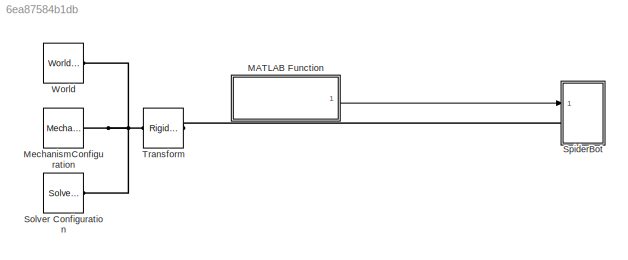
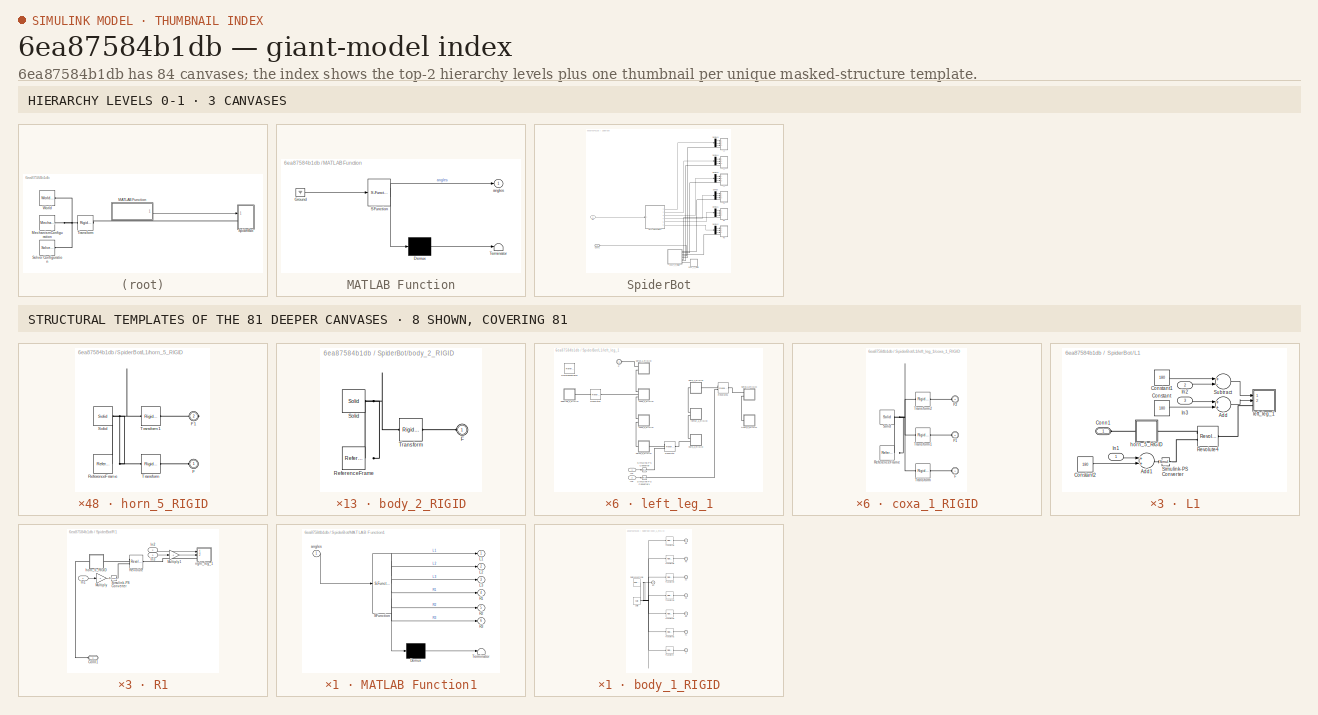
[diagram: thumbnail index - top-2 hierarchy levels (3 canvases) + 8 structural-template representatives of the remaining 81 canvases]
MODEL slx_6ea87584b1db
KIND model
CONFIG AbsTol = auto
CONFIG EnableMultiTasking = off
CONFIG FixedStep = 0.01
CONFIG MaxStep = auto
CONFIG MinStep = auto
CONFIG RelTol = 1e-3
CONFIG SampleTimeConstraint = Unconstrained
CONFIG Solver = FixedStepAuto
CONFIG SolverName = FixedStepAuto
CONFIG StartTime = 0.0
CONFIG StopTime = 1
WORKSPACE source: external: MATLAB File  (data not in archive)
BLOCK [SubSystem] MATLAB Function
  ErrorFcn = Stateflow.Translate.translate
  PermitHierarchicalResolution = ExplicitOnly
  Ports = [0, 1]
  RequestExecContextInheritance = off
  SFBlockType = MATLAB Function
  TreatAsAtomicUnit = on
BLOCK [Demux] MATLAB Function/ Demux 
  Outputs = 1
  Ports = [1, 1]
BLOCK [Ground] MATLAB Function/ Ground 
BLOCK [S-Function] MATLAB Function/ SFunction 
  EnableBusSupport = on
  FunctionName = sf_sfun
  PortCounts = [1 2]
  Ports = [1, 2]
  SFcnIsStateOwnerBlock = off
  SFunctionDeploymentMode = off
  Tag = Stateflow S-Function spider 2
BLOCK [Terminator] MATLAB Function/ Terminator 
BLOCK [Outport] MATLAB Function/angles
  IconDisplay = Port number
BLOCK [Reference] MechanismConfiguration  REF=sm_lib/Utilities/Mechanism
Configuration
  Ports = [0, 0, 0, 0, 0, 0, 1]
  SourceBlock = sm_lib/Utilities/Mechanism\nConfiguration
  SourceProductBaseCode = MS
  SourceProductName = Simscape Multibody
  SourceType = Mechanism\nConfiguration
BLOCK [Reference] Solver Configuration  REF=nesl_utility/Solver
Configuration
  Ports = [0, 0, 0, 0, 0, 0, 1]
  SourceBlock = nesl_utility/Solver\nConfiguration
  SourceProductBaseCode = SS
  SourceProductName = Simscape
  SourceType = Solver\nConfiguration
BLOCK [SubSystem] SpiderBot
  Ports = [1, 0, 0, 0, 0, 1]
  RequestExecContextInheritance = off
BLOCK [PMIOPort] SpiderBot/Conn1
  Side = Left
BLOCK [Demux] SpiderBot/Demux
  DisplayOption = bar
  Outputs = 3
  Ports = [1, 3]
BLOCK [Demux] SpiderBot/Demux1
  DisplayOption = bar
  Outputs = 3
  Ports = [1, 3]
BLOCK [Demux] SpiderBot/Demux2
  DisplayOption = bar
  Outputs = 3
  Ports = [1, 3]
BLOCK [Demux] SpiderBot/Demux3
  DisplayOption = bar
  Outputs = 3
  Ports = [1, 3]
BLOCK [Demux] SpiderBot/Demux4
  DisplayOption = bar
  Outputs = 3
  Ports = [1, 3]
BLOCK [Demux] SpiderBot/Demux5
  DisplayOption = bar
  Outputs = 3
  Ports = [1, 3]
BLOCK [Inport] SpiderBot/In1
  IconDisplay = Port number
BLOCK [SubSystem] SpiderBot/L1
  Ports = [3, 0, 0, 0, 0, 1]
  RequestExecContextInheritance = off
BLOCK [Sum] SpiderBot/L1/Add
  InputSameDT = off
  OutDataTypeStr = Inherit: Inherit via internal rule
  Ports = [2, 1]
  SaturateOnIntegerOverflow = off
BLOCK [Sum] SpiderBot/L1/Add1
  InputSameDT = off
  OutDataTypeStr = Inherit: Inherit via internal rule
  Ports = [2, 1]
  SaturateOnIntegerOverflow = off
BLOCK [PMIOPort] SpiderBot/L1/Conn1
  Side = Left
BLOCK [Constant] SpiderBot/L1/Constant
  Value = 180
BLOCK [Constant] SpiderBot/L1/Constant1
  Value = 180
BLOCK [Constant] SpiderBot/L1/Constant2
  Value = 180
BLOCK [Inport] SpiderBot/L1/In1
  IconDisplay = Port number
BLOCK [Inport] SpiderBot/L1/In2
  IconDisplay = Port number
  Port = 2
BLOCK [Inport] SpiderBot/L1/In3
  IconDisplay = Port number
  Port = 3
BLOCK [Reference] SpiderBot/L1/Revolute4  REF=sm_lib/Joints/Revolute Joint
  Ports = [0, 0, 0, 0, 0, 2, 1]
  SourceBlock = sm_lib/Joints/Revolute Joint
  SourceProductBaseCode = MS
  SourceProductName = Simscape Multibody
  SourceType = Revolute Joint
BLOCK [Reference] SpiderBot/L1/Simulink-PS Converter  REF=nesl_utility/Simulink-PS
Converter
  Ports = [1, 0, 0, 0, 0, 0, 1]
  SourceBlock = nesl_utility/Simulink-PS\nConverter
  SourceProductBaseCode = SS
  SourceProductName = Simscape
  SourceType = Simulink-PS\nConverter
BLOCK [Sum] SpiderBot/L1/Subtract
  InputSameDT = off
  Inputs = +-
  OutDataTypeStr = Inherit: Inherit via internal rule
  Ports = [2, 1]
  SaturateOnIntegerOverflow = off
BLOCK [SubSystem] SpiderBot/L1/horn_5_RIGID
  Ports = [0, 0, 0, 0, 0, 1, 1]
  RequestExecContextInheritance = off
BLOCK [PMIOPort] SpiderBot/L1/horn_5_RIGID/F
  Side = Left
BLOCK [PMIOPort] SpiderBot/L1/horn_5_RIGID/F1
  Port = 2
  Side = Right
BLOCK [Reference] SpiderBot/L1/horn_5_RIGID/ReferenceFrame  REF=sm_lib/Frames and
Transforms/Reference
Frame
  Ports = [0, 0, 0, 0, 0, 0, 1]
  SourceBlock = sm_lib/Frames and\nTransforms/Reference\nFrame
  SourceProductBaseCode = MS
  SourceProductName = Simscape Multibody
  SourceType = Reference\nFrame
BLOCK [Reference] SpiderBot/L1/horn_5_RIGID/Solid  REF=sm_lib/Body Elements/Solid
  Ports = [0, 0, 0, 0, 0, 0, 1]
  SourceBlock = sm_lib/Body Elements/Solid
  SourceProductBaseCode = MS
  SourceProductName = Simscape Multibody
  SourceType = Solid
BLOCK [Reference] SpiderBot/L1/horn_5_RIGID/Transform  REF=sm_lib/Frames and
Transforms/Rigid
Transform
  Ports = [0, 0, 0, 0, 0, 1, 1]
  SourceBlock = sm_lib/Frames and\nTransforms/Rigid\nTransform
  SourceProductBaseCode = MS
  SourceProductName = Simscape Multibody
  SourceType = Rigid\nTransform
BLOCK [Reference] SpiderBot/L1/horn_5_RIGID/Transform1  REF=sm_lib/Frames and
Transforms/Rigid
Transform
  Ports = [0, 0, 0, 0, 0, 1, 1]
  SourceBlock = sm_lib/Frames and\nTransforms/Rigid\nTransform
  SourceProductBaseCode = MS
  SourceProductName = Simscape Multibody
  SourceType = Rigid\nTransform
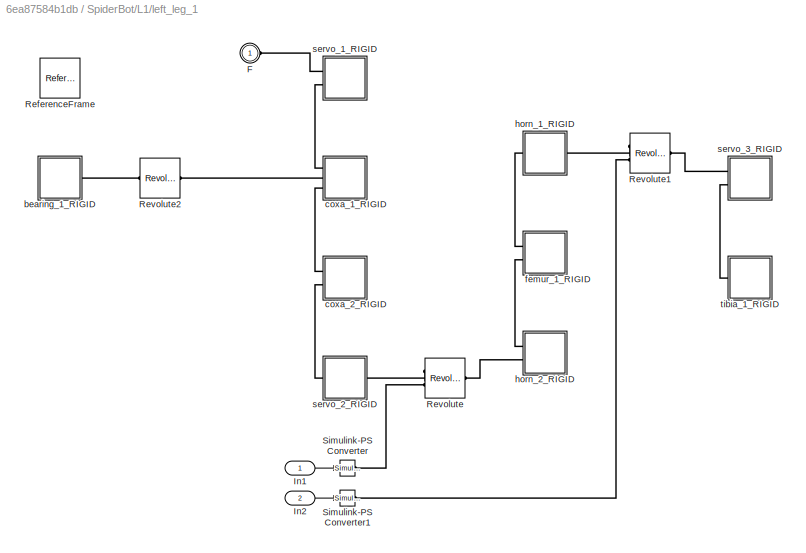
BLOCK [SubSystem] SpiderBot/L1/left_leg_1
  Ports = [2, 0, 0, 0, 0, 1]
  RequestExecContextInheritance = off
BLOCK [PMIOPort] SpiderBot/L1/left_leg_1/F
  Side = Left
BLOCK [Inport] SpiderBot/L1/left_leg_1/In1
  IconDisplay = Port number
BLOCK [Inport] SpiderBot/L1/left_leg_1/In2
  IconDisplay = Port number
  Port = 2
BLOCK [Reference] SpiderBot/L1/left_leg_1/ReferenceFrame  REF=sm_lib/Frames and
Transforms/Reference
Frame
  Ports = [0, 0, 0, 0, 0, 0, 1]
  SourceBlock = sm_lib/Frames and\nTransforms/Reference\nFrame
  SourceProductBaseCode = MS
  SourceProductName = Simscape Multibody
  SourceType = Reference\nFrame
BLOCK [Reference] SpiderBot/L1/left_leg_1/Revolute  REF=sm_lib/Joints/Revolute Joint
  Ports = [0, 0, 0, 0, 0, 2, 1]
  SourceBlock = sm_lib/Joints/Revolute Joint
  SourceProductBaseCode = MS
  SourceProductName = Simscape Multibody
  SourceType = Revolute Joint
BLOCK [Reference] SpiderBot/L1/left_leg_1/Revolute1  REF=sm_lib/Joints/Revolute Joint
  Ports = [0, 0, 0, 0, 0, 2, 1]
  SourceBlock = sm_lib/Joints/Revolute Joint
  SourceProductBaseCode = MS
  SourceProductName = Simscape Multibody
  SourceType = Revolute Joint
BLOCK [Reference] SpiderBot/L1/left_leg_1/Revolute2  REF=sm_lib/Joints/Revolute Joint
  Ports = [0, 0, 0, 0, 0, 1, 1]
  SourceBlock = sm_lib/Joints/Revolute Joint
  SourceProductBaseCode = MS
  SourceProductName = Simscape Multibody
  SourceType = Revolute Joint
BLOCK [Reference] SpiderBot/L1/left_leg_1/Simulink-PS Converter  REF=nesl_utility/Simulink-PS
Converter
  Ports = [1, 0, 0, 0, 0, 0, 1]
  SourceBlock = nesl_utility/Simulink-PS\nConverter
  SourceProductBaseCode = SS
  SourceProductName = Simscape
  SourceType = Simulink-PS\nConverter
BLOCK [Reference] SpiderBot/L1/left_leg_1/Simulink-PS Converter1  REF=nesl_utility/Simulink-PS
Converter
  Ports = [1, 0, 0, 0, 0, 0, 1]
  SourceBlock = nesl_utility/Simulink-PS\nConverter
  SourceProductBaseCode = SS
  SourceProductName = Simscape
  SourceType = Simulink-PS\nConverter
BLOCK [SubSystem] SpiderBot/L1/left_leg_1/bearing_1_RIGID
  Ports = [0, 0, 0, 0, 0, 0, 1]
  RequestExecContextInheritance = off
BLOCK [PMIOPort] SpiderBot/L1/left_leg_1/bearing_1_RIGID/F
  Side = Right
BLOCK [Reference] SpiderBot/L1/left_leg_1/bearing_1_RIGID/ReferenceFrame  REF=sm_lib/Frames and
Transforms/Reference
Frame
  Ports = [0, 0, 0, 0, 0, 0, 1]
  SourceBlock = sm_lib/Frames and\nTransforms/Reference\nFrame
  SourceProductBaseCode = MS
  SourceProductName = Simscape Multibody
  SourceType = Reference\nFrame
BLOCK [Reference] SpiderBot/L1/left_leg_1/bearing_1_RIGID/Solid  REF=sm_lib/Body Elements/Solid
  Ports = [0, 0, 0, 0, 0, 0, 1]
  SourceBlock = sm_lib/Body Elements/Solid
  SourceProductBaseCode = MS
  SourceProductName = Simscape Multibody
  SourceType = Solid
BLOCK [Reference] SpiderBot/L1/left_leg_1/bearing_1_RIGID/Transform  REF=sm_lib/Frames and
Transforms/Rigid
Transform
  Ports = [0, 0, 0, 0, 0, 1, 1]
  SourceBlock = sm_lib/Frames and\nTransforms/Rigid\nTransform
  SourceProductBaseCode = MS
  SourceProductName = Simscape Multibody
  SourceType = Rigid\nTransform
BLOCK [SubSystem] SpiderBot/L1/left_leg_1/coxa_1_RIGID
  Ports = [0, 0, 0, 0, 0, 3]
  RequestExecContextInheritance = off
BLOCK [PMIOPort] SpiderBot/L1/left_leg_1/coxa_1_RIGID/F
  Side = Left
BLOCK [PMIOPort] SpiderBot/L1/left_leg_1/coxa_1_RIGID/F1
  Port = 2
  Side = Left
BLOCK [PMIOPort] SpiderBot/L1/left_leg_1/coxa_1_RIGID/F2
  Port = 3
  Side = Left
BLOCK [Reference] SpiderBot/L1/left_leg_1/coxa_1_RIGID/ReferenceFrame  REF=sm_lib/Frames and
Transforms/Reference
Frame
  Ports = [0, 0, 0, 0, 0, 0, 1]
  SourceBlock = sm_lib/Frames and\nTransforms/Reference\nFrame
  SourceProductBaseCode = MS
  SourceProductName = Simscape Multibody
  SourceType = Reference\nFrame
BLOCK [Reference] SpiderBot/L1/left_leg_1/coxa_1_RIGID/Solid  REF=sm_lib/Body Elements/Solid
  Ports = [0, 0, 0, 0, 0, 0, 1]
  SourceBlock = sm_lib/Body Elements/Solid
  SourceProductBaseCode = MS
  SourceProductName = Simscape Multibody
  SourceType = Solid
BLOCK [Reference] SpiderBot/L1/left_leg_1/coxa_1_RIGID/Transform  REF=sm_lib/Frames and
Transforms/Rigid
Transform
  Ports = [0, 0, 0, 0, 0, 1, 1]
  SourceBlock = sm_lib/Frames and\nTransforms/Rigid\nTransform
  SourceProductBaseCode = MS
  SourceProductName = Simscape Multibody
  SourceType = Rigid\nTransform
BLOCK [Reference] SpiderBot/L1/left_leg_1/coxa_1_RIGID/Transform1  REF=sm_lib/Frames and
Transforms/Rigid
Transform
  Ports = [0, 0, 0, 0, 0, 1, 1]
  SourceBlock = sm_lib/Frames and\nTransforms/Rigid\nTransform
  SourceProductBaseCode = MS
  SourceProductName = Simscape Multibody
  SourceType = Rigid\nTransform
BLOCK [Reference] SpiderBot/L1/left_leg_1/coxa_1_RIGID/Transform2  REF=sm_lib/Frames and
Transforms/Rigid
Transform
  Ports = [0, 0, 0, 0, 0, 1, 1]
  SourceBlock = sm_lib/Frames and\nTransforms/Rigid\nTransform
  SourceProductBaseCode = MS
  SourceProductName = Simscape Multibody
  SourceType = Rigid\nTransform
BLOCK [SubSystem] SpiderBot/L1/left_leg_1/coxa_2_RIGID
  Ports = [0, 0, 0, 0, 0, 2]
  RequestExecContextInheritance = off
BLOCK [PMIOPort] SpiderBot/L1/left_leg_1/coxa_2_RIGID/F
  Port = 2
  Side = Left
BLOCK [PMIOPort] SpiderBot/L1/left_leg_1/coxa_2_RIGID/F1
  Side = Left
BLOCK [Reference] SpiderBot/L1/left_leg_1/coxa_2_RIGID/ReferenceFrame  REF=sm_lib/Frames and
Transforms/Reference
Frame
  Ports = [0, 0, 0, 0, 0, 0, 1]
  SourceBlock = sm_lib/Frames and\nTransforms/Reference\nFrame
  SourceProductBaseCode = MS
  SourceProductName = Simscape Multibody
  SourceType = Reference\nFrame
BLOCK [Reference] SpiderBot/L1/left_leg_1/coxa_2_RIGID/Solid  REF=sm_lib/Body Elements/Solid
  Ports = [0, 0, 0, 0, 0, 0, 1]
  SourceBlock = sm_lib/Body Elements/Solid
  SourceProductBaseCode = MS
  SourceProductName = Simscape Multibody
  SourceType = Solid
BLOCK [Reference] SpiderBot/L1/left_leg_1/coxa_2_RIGID/Transform  REF=sm_lib/Frames and
Transforms/Rigid
Transform
  Ports = [0, 0, 0, 0, 0, 1, 1]
  SourceBlock = sm_lib/Frames and\nTransforms/Rigid\nTransform
  SourceProductBaseCode = MS
  SourceProductName = Simscape Multibody
  SourceType = Rigid\nTransform
BLOCK [Reference] SpiderBot/L1/left_leg_1/coxa_2_RIGID/Transform1  REF=sm_lib/Frames and
Transforms/Rigid
Transform
  Ports = [0, 0, 0, 0, 0, 1, 1]
  SourceBlock = sm_lib/Frames and\nTransforms/Rigid\nTransform
  SourceProductBaseCode = MS
  SourceProductName = Simscape Multibody
  SourceType = Rigid\nTransform
BLOCK [SubSystem] SpiderBot/L1/left_leg_1/femur_1_RIGID
  Ports = [0, 0, 0, 0, 0, 2]
  RequestExecContextInheritance = off
BLOCK [PMIOPort] SpiderBot/L1/left_leg_1/femur_1_RIGID/F
  Side = Left
BLOCK [PMIOPort] SpiderBot/L1/left_leg_1/femur_1_RIGID/F1
  Port = 2
  Side = Left
BLOCK [Reference] SpiderBot/L1/left_leg_1/femur_1_RIGID/ReferenceFrame  REF=sm_lib/Frames and
Transforms/Reference
Frame
  Ports = [0, 0, 0, 0, 0, 0, 1]
  SourceBlock = sm_lib/Frames and\nTransforms/Reference\nFrame
  SourceProductBaseCode = MS
  SourceProductName = Simscape Multibody
  SourceType = Reference\nFrame
BLOCK [Reference] SpiderBot/L1/left_leg_1/femur_1_RIGID/Solid  REF=sm_lib/Body Elements/Solid
  Ports = [0, 0, 0, 0, 0, 0, 1]
  SourceBlock = sm_lib/Body Elements/Solid
  SourceProductBaseCode = MS
  SourceProductName = Simscape Multibody
  SourceType = Solid
BLOCK [Reference] SpiderBot/L1/left_leg_1/femur_1_RIGID/Transform  REF=sm_lib/Frames and
Transforms/Rigid
Transform
  Ports = [0, 0, 0, 0, 0, 1, 1]
  SourceBlock = sm_lib/Frames and\nTransforms/Rigid\nTransform
  SourceProductBaseCode = MS
  SourceProductName = Simscape Multibody
  SourceType = Rigid\nTransform
BLOCK [Reference] SpiderBot/L1/left_leg_1/femur_1_RIGID/Transform1  REF=sm_lib/Frames and
Transforms/Rigid
Transform
  Ports = [0, 0, 0, 0, 0, 1, 1]
  SourceBlock = sm_lib/Frames and\nTransforms/Rigid\nTransform
  SourceProductBaseCode = MS
  SourceProductName = Simscape Multibody
  SourceType = Rigid\nTransform
BLOCK [SubSystem] SpiderBot/L1/left_leg_1/horn_1_RIGID
  Ports = [0, 0, 0, 0, 0, 1, 1]
  RequestExecContextInheritance = off
BLOCK [PMIOPort] SpiderBot/L1/left_leg_1/horn_1_RIGID/F
  Port = 2
  Side = Right
BLOCK [PMIOPort] SpiderBot/L1/left_leg_1/horn_1_RIGID/F1
  Side = Left
BLOCK [Reference] SpiderBot/L1/left_leg_1/horn_1_RIGID/ReferenceFrame  REF=sm_lib/Frames and
Transforms/Reference
Frame
  Ports = [0, 0, 0, 0, 0, 0, 1]
  SourceBlock = sm_lib/Frames and\nTransforms/Reference\nFrame
  SourceProductBaseCode = MS
  SourceProductName = Simscape Multibody
  SourceType = Reference\nFrame
BLOCK [Reference] SpiderBot/L1/left_leg_1/horn_1_RIGID/Solid  REF=sm_lib/Body Elements/Solid
  Ports = [0, 0, 0, 0, 0, 0, 1]
  SourceBlock = sm_lib/Body Elements/Solid
  SourceProductBaseCode = MS
  SourceProductName = Simscape Multibody
  SourceType = Solid
BLOCK [Reference] SpiderBot/L1/left_leg_1/horn_1_RIGID/Transform  REF=sm_lib/Frames and
Transforms/Rigid
Transform
  Ports = [0, 0, 0, 0, 0, 1, 1]
  SourceBlock = sm_lib/Frames and\nTransforms/Rigid\nTransform
  SourceProductBaseCode = MS
  SourceProductName = Simscape Multibody
  SourceType = Rigid\nTransform
BLOCK [Reference] SpiderBot/L1/left_leg_1/horn_1_RIGID/Transform1  REF=sm_lib/Frames and
Transforms/Rigid
Transform
  Ports = [0, 0, 0, 0, 0, 1, 1]
  SourceBlock = sm_lib/Frames and\nTransforms/Rigid\nTransform
  SourceProductBaseCode = MS
  SourceProductName = Simscape Multibody
  SourceType = Rigid\nTransform
BLOCK [SubSystem] SpiderBot/L1/left_leg_1/horn_2_RIGID
  Ports = [0, 0, 0, 0, 0, 2]
  RequestExecContextInheritance = off
BLOCK [PMIOPort] SpiderBot/L1/left_leg_1/horn_2_RIGID/F
  Port = 2
  Side = Left
BLOCK [PMIOPort] SpiderBot/L1/left_leg_1/horn_2_RIGID/F1
  Side = Left
BLOCK [Reference] SpiderBot/L1/left_leg_1/horn_2_RIGID/ReferenceFrame  REF=sm_lib/Frames and
Transforms/Reference
Frame
  Ports = [0, 0, 0, 0, 0, 0, 1]
  SourceBlock = sm_lib/Frames and\nTransforms/Reference\nFrame
  SourceProductBaseCode = MS
  SourceProductName = Simscape Multibody
  SourceType = Reference\nFrame
BLOCK [Reference] SpiderBot/L1/left_leg_1/horn_2_RIGID/Solid  REF=sm_lib/Body Elements/Solid
  Ports = [0, 0, 0, 0, 0, 0, 1]
  SourceBlock = sm_lib/Body Elements/Solid
  SourceProductBaseCode = MS
  SourceProductName = Simscape Multibody
  SourceType = Solid
BLOCK [Reference] SpiderBot/L1/left_leg_1/horn_2_RIGID/Transform  REF=sm_lib/Frames and
Transforms/Rigid
Transform
  Ports = [0, 0, 0, 0, 0, 1, 1]
  SourceBlock = sm_lib/Frames and\nTransforms/Rigid\nTransform
  SourceProductBaseCode = MS
  SourceProductName = Simscape Multibody
  SourceType = Rigid\nTransform
BLOCK [Reference] SpiderBot/L1/left_leg_1/horn_2_RIGID/Transform1  REF=sm_lib/Frames and
Transforms/Rigid
Transform
  Ports = [0, 0, 0, 0, 0, 1, 1]
  SourceBlock = sm_lib/Frames and\nTransforms/Rigid\nTransform
  SourceProductBaseCode = MS
  SourceProductName = Simscape Multibody
  SourceType = Rigid\nTransform
BLOCK [SubSystem] SpiderBot/L1/left_leg_1/servo_1_RIGID
  Ports = [0, 0, 0, 0, 0, 2]
  RequestExecContextInheritance = off
BLOCK [PMIOPort] SpiderBot/L1/left_leg_1/servo_1_RIGID/F
  Port = 2
  Side = Left
BLOCK [PMIOPort] SpiderBot/L1/left_leg_1/servo_1_RIGID/F1
  Side = Left
BLOCK [Reference] SpiderBot/L1/left_leg_1/servo_1_RIGID/ReferenceFrame  REF=sm_lib/Frames and
Transforms/Reference
Frame
  Ports = [0, 0, 0, 0, 0, 0, 1]
  SourceBlock = sm_lib/Frames and\nTransforms/Reference\nFrame
  SourceProductBaseCode = MS
  SourceProductName = Simscape Multibody
  SourceType = Reference\nFrame
BLOCK [Reference] SpiderBot/L1/left_leg_1/servo_1_RIGID/Solid  REF=sm_lib/Body Elements/Solid
  Ports = [0, 0, 0, 0, 0, 0, 1]
  SourceBlock = sm_lib/Body Elements/Solid
  SourceProductBaseCode = MS
  SourceProductName = Simscape Multibody
  SourceType = Solid
BLOCK [Reference] SpiderBot/L1/left_leg_1/servo_1_RIGID/Transform  REF=sm_lib/Frames and
Transforms/Rigid
Transform
  Ports = [0, 0, 0, 0, 0, 1, 1]
  SourceBlock = sm_lib/Frames and\nTransforms/Rigid\nTransform
  SourceProductBaseCode = MS
  SourceProductName = Simscape Multibody
  SourceType = Rigid\nTransform
BLOCK [Reference] SpiderBot/L1/left_leg_1/servo_1_RIGID/Transform1  REF=sm_lib/Frames and
Transforms/Rigid
Transform
  Ports = [0, 0, 0, 0, 0, 1, 1]
  SourceBlock = sm_lib/Frames and\nTransforms/Rigid\nTransform
  SourceProductBaseCode = MS
  SourceProductName = Simscape Multibody
  SourceType = Rigid\nTransform
BLOCK [SubSystem] SpiderBot/L1/left_leg_1/servo_2_RIGID
  Ports = [0, 0, 0, 0, 0, 1, 1]
  RequestExecContextInheritance = off
BLOCK [PMIOPort] SpiderBot/L1/left_leg_1/servo_2_RIGID/F
  Side = Left
BLOCK [PMIOPort] SpiderBot/L1/left_leg_1/servo_2_RIGID/F1
  Port = 2
  Side = Right
BLOCK [Reference] SpiderBot/L1/left_leg_1/servo_2_RIGID/ReferenceFrame  REF=sm_lib/Frames and
Transforms/Reference
Frame
  Ports = [0, 0, 0, 0, 0, 0, 1]
  SourceBlock = sm_lib/Frames and\nTransforms/Reference\nFrame
  SourceProductBaseCode = MS
  SourceProductName = Simscape Multibody
  SourceType = Reference\nFrame
BLOCK [Reference] SpiderBot/L1/left_leg_1/servo_2_RIGID/Solid  REF=sm_lib/Body Elements/Solid
  Ports = [0, 0, 0, 0, 0, 0, 1]
  SourceBlock = sm_lib/Body Elements/Solid
  SourceProductBaseCode = MS
  SourceProductName = Simscape Multibody
  SourceType = Solid
BLOCK [Reference] SpiderBot/L1/left_leg_1/servo_2_RIGID/Transform  REF=sm_lib/Frames and
Transforms/Rigid
Transform
  Ports = [0, 0, 0, 0, 0, 1, 1]
  SourceBlock = sm_lib/Frames and\nTransforms/Rigid\nTransform
  SourceProductBaseCode = MS
  SourceProductName = Simscape Multibody
  SourceType = Rigid\nTransform
BLOCK [Reference] SpiderBot/L1/left_leg_1/servo_2_RIGID/Transform1  REF=sm_lib/Frames and
Transforms/Rigid
Transform
  Ports = [0, 0, 0, 0, 0, 1, 1]
  SourceBlock = sm_lib/Frames and\nTransforms/Rigid\nTransform
  SourceProductBaseCode = MS
  SourceProductName = Simscape Multibody
  SourceType = Rigid\nTransform
BLOCK [SubSystem] SpiderBot/L1/left_leg_1/servo_3_RIGID
  Ports = [0, 0, 0, 0, 0, 2]
  RequestExecContextInheritance = off
BLOCK [PMIOPort] SpiderBot/L1/left_leg_1/servo_3_RIGID/F
  Port = 2
  Side = Left
BLOCK [PMIOPort] SpiderBot/L1/left_leg_1/servo_3_RIGID/F1
  Side = Left
BLOCK [Reference] SpiderBot/L1/left_leg_1/servo_3_RIGID/ReferenceFrame  REF=sm_lib/Frames and
Transforms/Reference
Frame
  Ports = [0, 0, 0, 0, 0, 0, 1]
  SourceBlock = sm_lib/Frames and\nTransforms/Reference\nFrame
  SourceProductBaseCode = MS
  SourceProductName = Simscape Multibody
  SourceType = Reference\nFrame
BLOCK [Reference] SpiderBot/L1/left_leg_1/servo_3_RIGID/Solid  REF=sm_lib/Body Elements/Solid
  Ports = [0, 0, 0, 0, 0, 0, 1]
  SourceBlock = sm_lib/Body Elements/Solid
  SourceProductBaseCode = MS
  SourceProductName = Simscape Multibody
  SourceType = Solid
BLOCK [Reference] SpiderBot/L1/left_leg_1/servo_3_RIGID/Transform  REF=sm_lib/Frames and
Transforms/Rigid
Transform
  Ports = [0, 0, 0, 0, 0, 1, 1]
  SourceBlock = sm_lib/Frames and\nTransforms/Rigid\nTransform
  SourceProductBaseCode = MS
  SourceProductName = Simscape Multibody
  SourceType = Rigid\nTransform
BLOCK [Reference] SpiderBot/L1/left_leg_1/servo_3_RIGID/Transform1  REF=sm_lib/Frames and
Transforms/Rigid
Transform
  Ports = [0, 0, 0, 0, 0, 1, 1]
  SourceBlock = sm_lib/Frames and\nTransforms/Rigid\nTransform
  SourceProductBaseCode = MS
  SourceProductName = Simscape Multibody
  SourceType = Rigid\nTransform
BLOCK [SubSystem] SpiderBot/L1/left_leg_1/tibia_1_RIGID
  Ports = [0, 0, 0, 0, 0, 1]
  RequestExecContextInheritance = off
BLOCK [PMIOPort] SpiderBot/L1/left_leg_1/tibia_1_RIGID/F
  Side = Left
BLOCK [Reference] SpiderBot/L1/left_leg_1/tibia_1_RIGID/ReferenceFrame  REF=sm_lib/Frames and
Transforms/Reference
Frame
  Ports = [0, 0, 0, 0, 0, 0, 1]
  SourceBlock = sm_lib/Frames and\nTransforms/Reference\nFrame
  SourceProductBaseCode = MS
  SourceProductName = Simscape Multibody
  SourceType = Reference\nFrame
BLOCK [Reference] SpiderBot/L1/left_leg_1/tibia_1_RIGID/Solid  REF=sm_lib/Body Elements/Solid
  Ports = [0, 0, 0, 0, 0, 0, 1]
  SourceBlock = sm_lib/Body Elements/Solid
  SourceProductBaseCode = MS
  SourceProductName = Simscape Multibody
  SourceType = Solid
BLOCK [Reference] SpiderBot/L1/left_leg_1/tibia_1_RIGID/Transform  REF=sm_lib/Frames and
Transforms/Rigid
Transform
  Ports = [0, 0, 0, 0, 0, 1, 1]
  SourceBlock = sm_lib/Frames and\nTransforms/Rigid\nTransform
  SourceProductBaseCode = MS
  SourceProductName = Simscape Multibody
  SourceType = Rigid\nTransform
BLOCK [SubSystem] SpiderBot/L2
  Ports = [3, 0, 0, 0, 0, 1]
  RequestExecContextInheritance = off
BLOCK [Sum] SpiderBot/L2/Add
  InputSameDT = off
  OutDataTypeStr = Inherit: Inherit via internal rule
  Ports = [2, 1]
  SaturateOnIntegerOverflow = off
BLOCK [Sum] SpiderBot/L2/Add1
  InputSameDT = off
  OutDataTypeStr = Inherit: Inherit via internal rule
  Ports = [2, 1]
  SaturateOnIntegerOverflow = off
BLOCK [PMIOPort] SpiderBot/L2/Conn1
  Side = Left
BLOCK [Constant] SpiderBot/L2/Constant
  Value = 180
BLOCK [Constant] SpiderBot/L2/Constant1
  Value = 180
BLOCK [Constant] SpiderBot/L2/Constant2
  Value = 180
BLOCK [Inport] SpiderBot/L2/In1
  IconDisplay = Port number
BLOCK [Inport] SpiderBot/L2/In2
  IconDisplay = Port number
  Port = 2
BLOCK [Inport] SpiderBot/L2/In3
  IconDisplay = Port number
  Port = 3
BLOCK [Reference] SpiderBot/L2/Revolute5  REF=sm_lib/Joints/Revolute Joint
  Ports = [0, 0, 0, 0, 0, 2, 1]
  SourceBlock = sm_lib/Joints/Revolute Joint
  SourceProductBaseCode = MS
  SourceProductName = Simscape Multibody
  SourceType = Revolute Joint
BLOCK [Reference] SpiderBot/L2/Simulink-PS Converter  REF=nesl_utility/Simulink-PS
Converter
  Ports = [1, 0, 0, 0, 0, 0, 1]
  SourceBlock = nesl_utility/Simulink-PS\nConverter
  SourceProductBaseCode = SS
  SourceProductName = Simscape
  SourceType = Simulink-PS\nConverter
BLOCK [Sum] SpiderBot/L2/Subtract
  InputSameDT = off
  Inputs = +-
  OutDataTypeStr = Inherit: Inherit via internal rule
  Ports = [2, 1]
  SaturateOnIntegerOverflow = off
BLOCK [SubSystem] SpiderBot/L2/horn_3_RIGID
  Ports = [0, 0, 0, 0, 0, 1, 1]
  RequestExecContextInheritance = off
BLOCK [PMIOPort] SpiderBot/L2/horn_3_RIGID/F
  Side = Left
BLOCK [PMIOPort] SpiderBot/L2/horn_3_RIGID/F1
  Port = 2
  Side = Right
BLOCK [Reference] SpiderBot/L2/horn_3_RIGID/ReferenceFrame  REF=sm_lib/Frames and
Transforms/Reference
Frame
  Ports = [0, 0, 0, 0, 0, 0, 1]
  SourceBlock = sm_lib/Frames and\nTransforms/Reference\nFrame
  SourceProductBaseCode = MS
  SourceProductName = Simscape Multibody
  SourceType = Reference\nFrame
BLOCK [Reference] SpiderBot/L2/horn_3_RIGID/Solid  REF=sm_lib/Body Elements/Solid
  Ports = [0, 0, 0, 0, 0, 0, 1]
  SourceBlock = sm_lib/Body Elements/Solid
  SourceProductBaseCode = MS
  SourceProductName = Simscape Multibody
  SourceType = Solid
BLOCK [Reference] SpiderBot/L2/horn_3_RIGID/Transform  REF=sm_lib/Frames and
Transforms/Rigid
Transform
  Ports = [0, 0, 0, 0, 0, 1, 1]
  SourceBlock = sm_lib/Frames and\nTransforms/Rigid\nTransform
  SourceProductBaseCode = MS
  SourceProductName = Simscape Multibody
  SourceType = Rigid\nTransform
BLOCK [Reference] SpiderBot/L2/horn_3_RIGID/Transform1  REF=sm_lib/Frames and
Transforms/Rigid
Transform
  Ports = [0, 0, 0, 0, 0, 1, 1]
  SourceBlock = sm_lib/Frames and\nTransforms/Rigid\nTransform
  SourceProductBaseCode = MS
  SourceProductName = Simscape Multibody
  SourceType = Rigid\nTransform
BLOCK [SubSystem] SpiderBot/L2/left_leg_2
  Ports = [2, 0, 0, 0, 0, 1]
  RequestExecContextInheritance = off
BLOCK [PMIOPort] SpiderBot/L2/left_leg_2/F
  Side = Left
BLOCK [Inport] SpiderBot/L2/left_leg_2/In1
  IconDisplay = Port number
BLOCK [Inport] SpiderBot/L2/left_leg_2/In2
  IconDisplay = Port number
  Port = 2
BLOCK [Reference] SpiderBot/L2/left_leg_2/ReferenceFrame  REF=sm_lib/Frames and
Transforms/Reference
Frame
  Ports = [0, 0, 0, 0, 0, 0, 1]
  SourceBlock = sm_lib/Frames and\nTransforms/Reference\nFrame
  SourceProductBaseCode = MS
  SourceProductName = Simscape Multibody
  SourceType = Reference\nFrame
BLOCK [Reference] SpiderBot/L2/left_leg_2/Revolute  REF=sm_lib/Joints/Revolute Joint
  Ports = [0, 0, 0, 0, 0, 2, 1]
  SourceBlock = sm_lib/Joints/Revolute Joint
  SourceProductBaseCode = MS
  SourceProductName = Simscape Multibody
  SourceType = Revolute Joint
BLOCK [Reference] SpiderBot/L2/left_leg_2/Revolute1  REF=sm_lib/Joints/Revolute Joint
  Ports = [0, 0, 0, 0, 0, 2, 1]
  SourceBlock = sm_lib/Joints/Revolute Joint
  SourceProductBaseCode = MS
  SourceProductName = Simscape Multibody
  SourceType = Revolute Joint
BLOCK [Reference] SpiderBot/L2/left_leg_2/Revolute2  REF=sm_lib/Joints/Revolute Joint
  Ports = [0, 0, 0, 0, 0, 1, 1]
  SourceBlock = sm_lib/Joints/Revolute Joint
  SourceProductBaseCode = MS
  SourceProductName = Simscape Multibody
  SourceType = Revolute Joint
BLOCK [Reference] SpiderBot/L2/left_leg_2/Simulink-PS Converter  REF=nesl_utility/Simulink-PS
Converter
  Ports = [1, 0, 0, 0, 0, 0, 1]
  SourceBlock = nesl_utility/Simulink-PS\nConverter
  SourceProductBaseCode = SS
  SourceProductName = Simscape
  SourceType = Simulink-PS\nConverter
BLOCK [Reference] SpiderBot/L2/left_leg_2/Simulink-PS Converter1  REF=nesl_utility/Simulink-PS
Converter
  Ports = [1, 0, 0, 0, 0, 0, 1]
  SourceBlock = nesl_utility/Simulink-PS\nConverter
  SourceProductBaseCode = SS
  SourceProductName = Simscape
  SourceType = Simulink-PS\nConverter
BLOCK [SubSystem] SpiderBot/L2/left_leg_2/bearing_1_RIGID
  Ports = [0, 0, 0, 0, 0, 0, 1]
  RequestExecContextInheritance = off
BLOCK [PMIOPort] SpiderBot/L2/left_leg_2/bearing_1_RIGID/F
  Side = Right
BLOCK [Reference] SpiderBot/L2/left_leg_2/bearing_1_RIGID/ReferenceFrame  REF=sm_lib/Frames and
Transforms/Reference
Frame
  Ports = [0, 0, 0, 0, 0, 0, 1]
  SourceBlock = sm_lib/Frames and\nTransforms/Reference\nFrame
  SourceProductBaseCode = MS
  SourceProductName = Simscape Multibody
  SourceType = Reference\nFrame
BLOCK [Reference] SpiderBot/L2/left_leg_2/bearing_1_RIGID/Solid  REF=sm_lib/Body Elements/Solid
  Ports = [0, 0, 0, 0, 0, 0, 1]
  SourceBlock = sm_lib/Body Elements/Solid
  SourceProductBaseCode = MS
  SourceProductName = Simscape Multibody
  SourceType = Solid
BLOCK [Reference] SpiderBot/L2/left_leg_2/bearing_1_RIGID/Transform  REF=sm_lib/Frames and
Transforms/Rigid
Transform
  Ports = [0, 0, 0, 0, 0, 1, 1]
  SourceBlock = sm_lib/Frames and\nTransforms/Rigid\nTransform
  SourceProductBaseCode = MS
  SourceProductName = Simscape Multibody
  SourceType = Rigid\nTransform
BLOCK [SubSystem] SpiderBot/L2/left_leg_2/coxa_1_RIGID
  Ports = [0, 0, 0, 0, 0, 3]
  RequestExecContextInheritance = off
BLOCK [PMIOPort] SpiderBot/L2/left_leg_2/coxa_1_RIGID/F
  Side = Left
BLOCK [PMIOPort] SpiderBot/L2/left_leg_2/coxa_1_RIGID/F1
  Port = 2
  Side = Left
BLOCK [PMIOPort] SpiderBot/L2/left_leg_2/coxa_1_RIGID/F2
  Port = 3
  Side = Left
BLOCK [Reference] SpiderBot/L2/left_leg_2/coxa_1_RIGID/ReferenceFrame  REF=sm_lib/Frames and
Transforms/Reference
Frame
  Ports = [0, 0, 0, 0, 0, 0, 1]
  SourceBlock = sm_lib/Frames and\nTransforms/Reference\nFrame
  SourceProductBaseCode = MS
  SourceProductName = Simscape Multibody
  SourceType = Reference\nFrame
BLOCK [Reference] SpiderBot/L2/left_leg_2/coxa_1_RIGID/Solid  REF=sm_lib/Body Elements/Solid
  Ports = [0, 0, 0, 0, 0, 0, 1]
  SourceBlock = sm_lib/Body Elements/Solid
  SourceProductBaseCode = MS
  SourceProductName = Simscape Multibody
  SourceType = Solid
BLOCK [Reference] SpiderBot/L2/left_leg_2/coxa_1_RIGID/Transform  REF=sm_lib/Frames and
Transforms/Rigid
Transform
  Ports = [0, 0, 0, 0, 0, 1, 1]
  SourceBlock = sm_lib/Frames and\nTransforms/Rigid\nTransform
  SourceProductBaseCode = MS
  SourceProductName = Simscape Multibody
  SourceType = Rigid\nTransform
BLOCK [Reference] SpiderBot/L2/left_leg_2/coxa_1_RIGID/Transform1  REF=sm_lib/Frames and
Transforms/Rigid
Transform
  Ports = [0, 0, 0, 0, 0, 1, 1]
  SourceBlock = sm_lib/Frames and\nTransforms/Rigid\nTransform
  SourceProductBaseCode = MS
  SourceProductName = Simscape Multibody
  SourceType = Rigid\nTransform
BLOCK [Reference] SpiderBot/L2/left_leg_2/coxa_1_RIGID/Transform2  REF=sm_lib/Frames and
Transforms/Rigid
Transform
  Ports = [0, 0, 0, 0, 0, 1, 1]
  SourceBlock = sm_lib/Frames and\nTransforms/Rigid\nTransform
  SourceProductBaseCode = MS
  SourceProductName = Simscape Multibody
  SourceType = Rigid\nTransform
BLOCK [SubSystem] SpiderBot/L2/left_leg_2/coxa_2_RIGID
  Ports = [0, 0, 0, 0, 0, 2]
  RequestExecContextInheritance = off
BLOCK [PMIOPort] SpiderBot/L2/left_leg_2/coxa_2_RIGID/F
  Port = 2
  Side = Left
BLOCK [PMIOPort] SpiderBot/L2/left_leg_2/coxa_2_RIGID/F1
  Side = Left
BLOCK [Reference] SpiderBot/L2/left_leg_2/coxa_2_RIGID/ReferenceFrame  REF=sm_lib/Frames and
Transforms/Reference
Frame
  Ports = [0, 0, 0, 0, 0, 0, 1]
  SourceBlock = sm_lib/Frames and\nTransforms/Reference\nFrame
  SourceProductBaseCode = MS
  SourceProductName = Simscape Multibody
  SourceType = Reference\nFrame
BLOCK [Reference] SpiderBot/L2/left_leg_2/coxa_2_RIGID/Solid  REF=sm_lib/Body Elements/Solid
  Ports = [0, 0, 0, 0, 0, 0, 1]
  SourceBlock = sm_lib/Body Elements/Solid
  SourceProductBaseCode = MS
  SourceProductName = Simscape Multibody
  SourceType = Solid
BLOCK [Reference] SpiderBot/L2/left_leg_2/coxa_2_RIGID/Transform  REF=sm_lib/Frames and
Transforms/Rigid
Transform
  Ports = [0, 0, 0, 0, 0, 1, 1]
  SourceBlock = sm_lib/Frames and\nTransforms/Rigid\nTransform
  SourceProductBaseCode = MS
  SourceProductName = Simscape Multibody
  SourceType = Rigid\nTransform
BLOCK [Reference] SpiderBot/L2/left_leg_2/coxa_2_RIGID/Transform1  REF=sm_lib/Frames and
Transforms/Rigid
Transform
  Ports = [0, 0, 0, 0, 0, 1, 1]
  SourceBlock = sm_lib/Frames and\nTransforms/Rigid\nTransform
  SourceProductBaseCode = MS
  SourceProductName = Simscape Multibody
  SourceType = Rigid\nTransform
BLOCK [SubSystem] SpiderBot/L2/left_leg_2/femur_1_RIGID
  Ports = [0, 0, 0, 0, 0, 2]
  RequestExecContextInheritance = off
BLOCK [PMIOPort] SpiderBot/L2/left_leg_2/femur_1_RIGID/F
  Side = Left
BLOCK [PMIOPort] SpiderBot/L2/left_leg_2/femur_1_RIGID/F1
  Port = 2
  Side = Left
BLOCK [Reference] SpiderBot/L2/left_leg_2/femur_1_RIGID/ReferenceFrame  REF=sm_lib/Frames and
Transforms/Reference
Frame
  Ports = [0, 0, 0, 0, 0, 0, 1]
  SourceBlock = sm_lib/Frames and\nTransforms/Reference\nFrame
  SourceProductBaseCode = MS
  SourceProductName = Simscape Multibody
  SourceType = Reference\nFrame
BLOCK [Reference] SpiderBot/L2/left_leg_2/femur_1_RIGID/Solid  REF=sm_lib/Body Elements/Solid
  Ports = [0, 0, 0, 0, 0, 0, 1]
  SourceBlock = sm_lib/Body Elements/Solid
  SourceProductBaseCode = MS
  SourceProductName = Simscape Multibody
  SourceType = Solid
BLOCK [Reference] SpiderBot/L2/left_leg_2/femur_1_RIGID/Transform  REF=sm_lib/Frames and
Transforms/Rigid
Transform
  Ports = [0, 0, 0, 0, 0, 1, 1]
  SourceBlock = sm_lib/Frames and\nTransforms/Rigid\nTransform
  SourceProductBaseCode = MS
  SourceProductName = Simscape Multibody
  SourceType = Rigid\nTransform
BLOCK [Reference] SpiderBot/L2/left_leg_2/femur_1_RIGID/Transform1  REF=sm_lib/Frames and
Transforms/Rigid
Transform
  Ports = [0, 0, 0, 0, 0, 1, 1]
  SourceBlock = sm_lib/Frames and\nTransforms/Rigid\nTransform
  SourceProductBaseCode = MS
  SourceProductName = Simscape Multibody
  SourceType = Rigid\nTransform
BLOCK [SubSystem] SpiderBot/L2/left_leg_2/horn_1_RIGID
  Ports = [0, 0, 0, 0, 0, 1, 1]
  RequestExecContextInheritance = off
BLOCK [PMIOPort] SpiderBot/L2/left_leg_2/horn_1_RIGID/F
  Port = 2
  Side = Right
BLOCK [PMIOPort] SpiderBot/L2/left_leg_2/horn_1_RIGID/F1
  Side = Left
BLOCK [Reference] SpiderBot/L2/left_leg_2/horn_1_RIGID/ReferenceFrame  REF=sm_lib/Frames and
Transforms/Reference
Frame
  Ports = [0, 0, 0, 0, 0, 0, 1]
  SourceBlock = sm_lib/Frames and\nTransforms/Reference\nFrame
  SourceProductBaseCode = MS
  SourceProductName = Simscape Multibody
  SourceType = Reference\nFrame
BLOCK [Reference] SpiderBot/L2/left_leg_2/horn_1_RIGID/Solid  REF=sm_lib/Body Elements/Solid
  Ports = [0, 0, 0, 0, 0, 0, 1]
  SourceBlock = sm_lib/Body Elements/Solid
  SourceProductBaseCode = MS
  SourceProductName = Simscape Multibody
  SourceType = Solid
BLOCK [Reference] SpiderBot/L2/left_leg_2/horn_1_RIGID/Transform  REF=sm_lib/Frames and
Transforms/Rigid
Transform
  Ports = [0, 0, 0, 0, 0, 1, 1]
  SourceBlock = sm_lib/Frames and\nTransforms/Rigid\nTransform
  SourceProductBaseCode = MS
  SourceProductName = Simscape Multibody
  SourceType = Rigid\nTransform
BLOCK [Reference] SpiderBot/L2/left_leg_2/horn_1_RIGID/Transform1  REF=sm_lib/Frames and
Transforms/Rigid
Transform
  Ports = [0, 0, 0, 0, 0, 1, 1]
  SourceBlock = sm_lib/Frames and\nTransforms/Rigid\nTransform
  SourceProductBaseCode = MS
  SourceProductName = Simscape Multibody
  SourceType = Rigid\nTransform
BLOCK [SubSystem] SpiderBot/L2/left_leg_2/horn_2_RIGID
  Ports = [0, 0, 0, 0, 0, 2]
  RequestExecContextInheritance = off
BLOCK [PMIOPort] SpiderBot/L2/left_leg_2/horn_2_RIGID/F
  Port = 2
  Side = Left
BLOCK [PMIOPort] SpiderBot/L2/left_leg_2/horn_2_RIGID/F1
  Side = Left
BLOCK [Reference] SpiderBot/L2/left_leg_2/horn_2_RIGID/ReferenceFrame  REF=sm_lib/Frames and
Transforms/Reference
Frame
  Ports = [0, 0, 0, 0, 0, 0, 1]
  SourceBlock = sm_lib/Frames and\nTransforms/Reference\nFrame
  SourceProductBaseCode = MS
  SourceProductName = Simscape Multibody
  SourceType = Reference\nFrame
BLOCK [Reference] SpiderBot/L2/left_leg_2/horn_2_RIGID/Solid  REF=sm_lib/Body Elements/Solid
  Ports = [0, 0, 0, 0, 0, 0, 1]
  SourceBlock = sm_lib/Body Elements/Solid
  SourceProductBaseCode = MS
  SourceProductName = Simscape Multibody
  SourceType = Solid
BLOCK [Reference] SpiderBot/L2/left_leg_2/horn_2_RIGID/Transform  REF=sm_lib/Frames and
Transforms/Rigid
Transform
  Ports = [0, 0, 0, 0, 0, 1, 1]
  SourceBlock = sm_lib/Frames and\nTransforms/Rigid\nTransform
  SourceProductBaseCode = MS
  SourceProductName = Simscape Multibody
  SourceType = Rigid\nTransform
BLOCK [Reference] SpiderBot/L2/left_leg_2/horn_2_RIGID/Transform1  REF=sm_lib/Frames and
Transforms/Rigid
Transform
  Ports = [0, 0, 0, 0, 0, 1, 1]
  SourceBlock = sm_lib/Frames and\nTransforms/Rigid\nTransform
  SourceProductBaseCode = MS
  SourceProductName = Simscape Multibody
  SourceType = Rigid\nTransform
BLOCK [SubSystem] SpiderBot/L2/left_leg_2/servo_1_RIGID
  Ports = [0, 0, 0, 0, 0, 2]
  RequestExecContextInheritance = off
BLOCK [PMIOPort] SpiderBot/L2/left_leg_2/servo_1_RIGID/F
  Port = 2
  Side = Left
BLOCK [PMIOPort] SpiderBot/L2/left_leg_2/servo_1_RIGID/F1
  Side = Left
BLOCK [Reference] SpiderBot/L2/left_leg_2/servo_1_RIGID/ReferenceFrame  REF=sm_lib/Frames and
Transforms/Reference
Frame
  Ports = [0, 0, 0, 0, 0, 0, 1]
  SourceBlock = sm_lib/Frames and\nTransforms/Reference\nFrame
  SourceProductBaseCode = MS
  SourceProductName = Simscape Multibody
  SourceType = Reference\nFrame
BLOCK [Reference] SpiderBot/L2/left_leg_2/servo_1_RIGID/Solid  REF=sm_lib/Body Elements/Solid
  Ports = [0, 0, 0, 0, 0, 0, 1]
  SourceBlock = sm_lib/Body Elements/Solid
  SourceProductBaseCode = MS
  SourceProductName = Simscape Multibody
  SourceType = Solid
BLOCK [Reference] SpiderBot/L2/left_leg_2/servo_1_RIGID/Transform  REF=sm_lib/Frames and
Transforms/Rigid
Transform
  Ports = [0, 0, 0, 0, 0, 1, 1]
  SourceBlock = sm_lib/Frames and\nTransforms/Rigid\nTransform
  SourceProductBaseCode = MS
  SourceProductName = Simscape Multibody
  SourceType = Rigid\nTransform
BLOCK [Reference] SpiderBot/L2/left_leg_2/servo_1_RIGID/Transform1  REF=sm_lib/Frames and
Transforms/Rigid
Transform
  Ports = [0, 0, 0, 0, 0, 1, 1]
  SourceBlock = sm_lib/Frames and\nTransforms/Rigid\nTransform
  SourceProductBaseCode = MS
  SourceProductName = Simscape Multibody
  SourceType = Rigid\nTransform
BLOCK [SubSystem] SpiderBot/L2/left_leg_2/servo_2_RIGID
  Ports = [0, 0, 0, 0, 0, 1, 1]
  RequestExecContextInheritance = off
BLOCK [PMIOPort] SpiderBot/L2/left_leg_2/servo_2_RIGID/F
  Side = Left
BLOCK [PMIOPort] SpiderBot/L2/left_leg_2/servo_2_RIGID/F1
  Port = 2
  Side = Right
BLOCK [Reference] SpiderBot/L2/left_leg_2/servo_2_RIGID/ReferenceFrame  REF=sm_lib/Frames and
Transforms/Reference
Frame
  Ports = [0, 0, 0, 0, 0, 0, 1]
  SourceBlock = sm_lib/Frames and\nTransforms/Reference\nFrame
  SourceProductBaseCode = MS
  SourceProductName = Simscape Multibody
  SourceType = Reference\nFrame
BLOCK [Reference] SpiderBot/L2/left_leg_2/servo_2_RIGID/Solid  REF=sm_lib/Body Elements/Solid
  Ports = [0, 0, 0, 0, 0, 0, 1]
  SourceBlock = sm_lib/Body Elements/Solid
  SourceProductBaseCode = MS
  SourceProductName = Simscape Multibody
  SourceType = Solid
BLOCK [Reference] SpiderBot/L2/left_leg_2/servo_2_RIGID/Transform  REF=sm_lib/Frames and
Transforms/Rigid
Transform
  Ports = [0, 0, 0, 0, 0, 1, 1]
  SourceBlock = sm_lib/Frames and\nTransforms/Rigid\nTransform
  SourceProductBaseCode = MS
  SourceProductName = Simscape Multibody
  SourceType = Rigid\nTransform
BLOCK [Reference] SpiderBot/L2/left_leg_2/servo_2_RIGID/Transform1  REF=sm_lib/Frames and
Transforms/Rigid
Transform
  Ports = [0, 0, 0, 0, 0, 1, 1]
  SourceBlock = sm_lib/Frames and\nTransforms/Rigid\nTransform
  SourceProductBaseCode = MS
  SourceProductName = Simscape Multibody
  SourceType = Rigid\nTransform
BLOCK [SubSystem] SpiderBot/L2/left_leg_2/servo_3_RIGID
  Ports = [0, 0, 0, 0, 0, 2]
  RequestExecContextInheritance = off
BLOCK [PMIOPort] SpiderBot/L2/left_leg_2/servo_3_RIGID/F
  Port = 2
  Side = Left
BLOCK [PMIOPort] SpiderBot/L2/left_leg_2/servo_3_RIGID/F1
  Side = Left
BLOCK [Reference] SpiderBot/L2/left_leg_2/servo_3_RIGID/ReferenceFrame  REF=sm_lib/Frames and
Transforms/Reference
Frame
  Ports = [0, 0, 0, 0, 0, 0, 1]
  SourceBlock = sm_lib/Frames and\nTransforms/Reference\nFrame
  SourceProductBaseCode = MS
  SourceProductName = Simscape Multibody
  SourceType = Reference\nFrame
BLOCK [Reference] SpiderBot/L2/left_leg_2/servo_3_RIGID/Solid  REF=sm_lib/Body Elements/Solid
  Ports = [0, 0, 0, 0, 0, 0, 1]
  SourceBlock = sm_lib/Body Elements/Solid
  SourceProductBaseCode = MS
  SourceProductName = Simscape Multibody
  SourceType = Solid
BLOCK [Reference] SpiderBot/L2/left_leg_2/servo_3_RIGID/Transform  REF=sm_lib/Frames and
Transforms/Rigid
Transform
  Ports = [0, 0, 0, 0, 0, 1, 1]
  SourceBlock = sm_lib/Frames and\nTransforms/Rigid\nTransform
  SourceProductBaseCode = MS
  SourceProductName = Simscape Multibody
  SourceType = Rigid\nTransform
BLOCK [Reference] SpiderBot/L2/left_leg_2/servo_3_RIGID/Transform1  REF=sm_lib/Frames and
Transforms/Rigid
Transform
  Ports = [0, 0, 0, 0, 0, 1, 1]
  SourceBlock = sm_lib/Frames and\nTransforms/Rigid\nTransform
  SourceProductBaseCode = MS
  SourceProductName = Simscape Multibody
  SourceType = Rigid\nTransform
BLOCK [SubSystem] SpiderBot/L2/left_leg_2/tibia_1_RIGID
  Ports = [0, 0, 0, 0, 0, 1]
  RequestExecContextInheritance = off
BLOCK [PMIOPort] SpiderBot/L2/left_leg_2/tibia_1_RIGID/F
  Side = Left
BLOCK [Reference] SpiderBot/L2/left_leg_2/tibia_1_RIGID/ReferenceFrame  REF=sm_lib/Frames and
Transforms/Reference
Frame
  Ports = [0, 0, 0, 0, 0, 0, 1]
  SourceBlock = sm_lib/Frames and\nTransforms/Reference\nFrame
  SourceProductBaseCode = MS
  SourceProductName = Simscape Multibody
  SourceType = Reference\nFrame
BLOCK [Reference] SpiderBot/L2/left_leg_2/tibia_1_RIGID/Solid  REF=sm_lib/Body Elements/Solid
  Ports = [0, 0, 0, 0, 0, 0, 1]
  SourceBlock = sm_lib/Body Elements/Solid
  SourceProductBaseCode = MS
  SourceProductName = Simscape Multibody
  SourceType = Solid
BLOCK [Reference] SpiderBot/L2/left_leg_2/tibia_1_RIGID/Transform  REF=sm_lib/Frames and
Transforms/Rigid
Transform
  Ports = [0, 0, 0, 0, 0, 1, 1]
  SourceBlock = sm_lib/Frames and\nTransforms/Rigid\nTransform
  SourceProductBaseCode = MS
  SourceProductName = Simscape Multibody
  SourceType = Rigid\nTransform
BLOCK [SubSystem] SpiderBot/L3
  Ports = [3, 0, 0, 0, 0, 1]
  RequestExecContextInheritance = off
BLOCK [Sum] SpiderBot/L3/Add
  InputSameDT = off
  OutDataTypeStr = Inherit: Inherit via internal rule
  Ports = [2, 1]
  SaturateOnIntegerOverflow = off
BLOCK [Sum] SpiderBot/L3/Add1
  InputSameDT = off
  OutDataTypeStr = Inherit: Inherit via internal rule
  Ports = [2, 1]
  SaturateOnIntegerOverflow = off
BLOCK [PMIOPort] SpiderBot/L3/Conn1
  Side = Left
BLOCK [Constant] SpiderBot/L3/Constant
  Value = 180
BLOCK [Constant] SpiderBot/L3/Constant1
  Value = 180
BLOCK [Constant] SpiderBot/L3/Constant2
  Value = 180
BLOCK [Inport] SpiderBot/L3/In1
  IconDisplay = Port number
BLOCK [Inport] SpiderBot/L3/In2
  IconDisplay = Port number
  Port = 2
BLOCK [Inport] SpiderBot/L3/In3
  IconDisplay = Port number
  Port = 3
BLOCK [Reference] SpiderBot/L3/Revolute1  REF=sm_lib/Joints/Revolute Joint
  Ports = [0, 0, 0, 0, 0, 2, 1]
  SourceBlock = sm_lib/Joints/Revolute Joint
  SourceProductBaseCode = MS
  SourceProductName = Simscape Multibody
  SourceType = Revolute Joint
BLOCK [Reference] SpiderBot/L3/Simulink-PS Converter  REF=nesl_utility/Simulink-PS
Converter
  Ports = [1, 0, 0, 0, 0, 0, 1]
  SourceBlock = nesl_utility/Simulink-PS\nConverter
  SourceProductBaseCode = SS
  SourceProductName = Simscape
  SourceType = Simulink-PS\nConverter
BLOCK [Sum] SpiderBot/L3/Subtract
  InputSameDT = off
  Inputs = +-
  OutDataTypeStr = Inherit: Inherit via internal rule
  Ports = [2, 1]
  SaturateOnIntegerOverflow = off
BLOCK [SubSystem] SpiderBot/L3/horn_2_RIGID
  Ports = [0, 0, 0, 0, 0, 1, 1]
  RequestExecContextInheritance = off
BLOCK [PMIOPort] SpiderBot/L3/horn_2_RIGID/F
  Port = 2
  Side = Right
BLOCK [PMIOPort] SpiderBot/L3/horn_2_RIGID/F1
  Side = Left
BLOCK [Reference] SpiderBot/L3/horn_2_RIGID/ReferenceFrame  REF=sm_lib/Frames and
Transforms/Reference
Frame
  Ports = [0, 0, 0, 0, 0, 0, 1]
  SourceBlock = sm_lib/Frames and\nTransforms/Reference\nFrame
  SourceProductBaseCode = MS
  SourceProductName = Simscape Multibody
  SourceType = Reference\nFrame
BLOCK [Reference] SpiderBot/L3/horn_2_RIGID/Solid  REF=sm_lib/Body Elements/Solid
  Ports = [0, 0, 0, 0, 0, 0, 1]
  SourceBlock = sm_lib/Body Elements/Solid
  SourceProductBaseCode = MS
  SourceProductName = Simscape Multibody
  SourceType = Solid
BLOCK [Reference] SpiderBot/L3/horn_2_RIGID/Transform  REF=sm_lib/Frames and
Transforms/Rigid
Transform
  Ports = [0, 0, 0, 0, 0, 1, 1]
  SourceBlock = sm_lib/Frames and\nTransforms/Rigid\nTransform
  SourceProductBaseCode = MS
  SourceProductName = Simscape Multibody
  SourceType = Rigid\nTransform
BLOCK [Reference] SpiderBot/L3/horn_2_RIGID/Transform1  REF=sm_lib/Frames and
Transforms/Rigid
Transform
  Ports = [0, 0, 0, 0, 0, 1, 1]
  SourceBlock = sm_lib/Frames and\nTransforms/Rigid\nTransform
  SourceProductBaseCode = MS
  SourceProductName = Simscape Multibody
  SourceType = Rigid\nTransform
BLOCK [SubSystem] SpiderBot/L3/left_leg_3
  Ports = [2, 0, 0, 0, 0, 1]
  RequestExecContextInheritance = off
BLOCK [PMIOPort] SpiderBot/L3/left_leg_3/F
  Side = Left
BLOCK [Inport] SpiderBot/L3/left_leg_3/In1
  IconDisplay = Port number
BLOCK [Inport] SpiderBot/L3/left_leg_3/In2
  IconDisplay = Port number
  Port = 2
BLOCK [Reference] SpiderBot/L3/left_leg_3/ReferenceFrame  REF=sm_lib/Frames and
Transforms/Reference
Frame
  Ports = [0, 0, 0, 0, 0, 0, 1]
  SourceBlock = sm_lib/Frames and\nTransforms/Reference\nFrame
  SourceProductBaseCode = MS
  SourceProductName = Simscape Multibody
  SourceType = Reference\nFrame
BLOCK [Reference] SpiderBot/L3/left_leg_3/Revolute  REF=sm_lib/Joints/Revolute Joint
  Ports = [0, 0, 0, 0, 0, 2, 1]
  SourceBlock = sm_lib/Joints/Revolute Joint
  SourceProductBaseCode = MS
  SourceProductName = Simscape Multibody
  SourceType = Revolute Joint
BLOCK [Reference] SpiderBot/L3/left_leg_3/Revolute1  REF=sm_lib/Joints/Revolute Joint
  Ports = [0, 0, 0, 0, 0, 2, 1]
  SourceBlock = sm_lib/Joints/Revolute Joint
  SourceProductBaseCode = MS
  SourceProductName = Simscape Multibody
  SourceType = Revolute Joint
BLOCK [Reference] SpiderBot/L3/left_leg_3/Revolute2  REF=sm_lib/Joints/Revolute Joint
  Ports = [0, 0, 0, 0, 0, 1, 1]
  SourceBlock = sm_lib/Joints/Revolute Joint
  SourceProductBaseCode = MS
  SourceProductName = Simscape Multibody
  SourceType = Revolute Joint
BLOCK [Reference] SpiderBot/L3/left_leg_3/Simulink-PS Converter  REF=nesl_utility/Simulink-PS
Converter
  Ports = [1, 0, 0, 0, 0, 0, 1]
  SourceBlock = nesl_utility/Simulink-PS\nConverter
  SourceProductBaseCode = SS
  SourceProductName = Simscape
  SourceType = Simulink-PS\nConverter
BLOCK [Reference] SpiderBot/L3/left_leg_3/Simulink-PS Converter1  REF=nesl_utility/Simulink-PS
Converter
  Ports = [1, 0, 0, 0, 0, 0, 1]
  SourceBlock = nesl_utility/Simulink-PS\nConverter
  SourceProductBaseCode = SS
  SourceProductName = Simscape
  SourceType = Simulink-PS\nConverter
BLOCK [SubSystem] SpiderBot/L3/left_leg_3/bearing_1_RIGID
  Ports = [0, 0, 0, 0, 0, 0, 1]
  RequestExecContextInheritance = off
BLOCK [PMIOPort] SpiderBot/L3/left_leg_3/bearing_1_RIGID/F
  Side = Right
BLOCK [Reference] SpiderBot/L3/left_leg_3/bearing_1_RIGID/ReferenceFrame  REF=sm_lib/Frames and
Transforms/Reference
Frame
  Ports = [0, 0, 0, 0, 0, 0, 1]
  SourceBlock = sm_lib/Frames and\nTransforms/Reference\nFrame
  SourceProductBaseCode = MS
  SourceProductName = Simscape Multibody
  SourceType = Reference\nFrame
BLOCK [Reference] SpiderBot/L3/left_leg_3/bearing_1_RIGID/Solid  REF=sm_lib/Body Elements/Solid
  Ports = [0, 0, 0, 0, 0, 0, 1]
  SourceBlock = sm_lib/Body Elements/Solid
  SourceProductBaseCode = MS
  SourceProductName = Simscape Multibody
  SourceType = Solid
BLOCK [Reference] SpiderBot/L3/left_leg_3/bearing_1_RIGID/Transform  REF=sm_lib/Frames and
Transforms/Rigid
Transform
  Ports = [0, 0, 0, 0, 0, 1, 1]
  SourceBlock = sm_lib/Frames and\nTransforms/Rigid\nTransform
  SourceProductBaseCode = MS
  SourceProductName = Simscape Multibody
  SourceType = Rigid\nTransform
BLOCK [SubSystem] SpiderBot/L3/left_leg_3/coxa_1_RIGID
  Ports = [0, 0, 0, 0, 0, 3]
  RequestExecContextInheritance = off
BLOCK [PMIOPort] SpiderBot/L3/left_leg_3/coxa_1_RIGID/F
  Side = Left
BLOCK [PMIOPort] SpiderBot/L3/left_leg_3/coxa_1_RIGID/F1
  Port = 2
  Side = Left
BLOCK [PMIOPort] SpiderBot/L3/left_leg_3/coxa_1_RIGID/F2
  Port = 3
  Side = Left
BLOCK [Reference] SpiderBot/L3/left_leg_3/coxa_1_RIGID/ReferenceFrame  REF=sm_lib/Frames and
Transforms/Reference
Frame
  Ports = [0, 0, 0, 0, 0, 0, 1]
  SourceBlock = sm_lib/Frames and\nTransforms/Reference\nFrame
  SourceProductBaseCode = MS
  SourceProductName = Simscape Multibody
  SourceType = Reference\nFrame
BLOCK [Reference] SpiderBot/L3/left_leg_3/coxa_1_RIGID/Solid  REF=sm_lib/Body Elements/Solid
  Ports = [0, 0, 0, 0, 0, 0, 1]
  SourceBlock = sm_lib/Body Elements/Solid
  SourceProductBaseCode = MS
  SourceProductName = Simscape Multibody
  SourceType = Solid
BLOCK [Reference] SpiderBot/L3/left_leg_3/coxa_1_RIGID/Transform  REF=sm_lib/Frames and
Transforms/Rigid
Transform
  Ports = [0, 0, 0, 0, 0, 1, 1]
  SourceBlock = sm_lib/Frames and\nTransforms/Rigid\nTransform
  SourceProductBaseCode = MS
  SourceProductName = Simscape Multibody
  SourceType = Rigid\nTransform
BLOCK [Reference] SpiderBot/L3/left_leg_3/coxa_1_RIGID/Transform1  REF=sm_lib/Frames and
Transforms/Rigid
Transform
  Ports = [0, 0, 0, 0, 0, 1, 1]
  SourceBlock = sm_lib/Frames and\nTransforms/Rigid\nTransform
  SourceProductBaseCode = MS
  SourceProductName = Simscape Multibody
  SourceType = Rigid\nTransform
BLOCK [Reference] SpiderBot/L3/left_leg_3/coxa_1_RIGID/Transform2  REF=sm_lib/Frames and
Transforms/Rigid
Transform
  Ports = [0, 0, 0, 0, 0, 1, 1]
  SourceBlock = sm_lib/Frames and\nTransforms/Rigid\nTransform
  SourceProductBaseCode = MS
  SourceProductName = Simscape Multibody
  SourceType = Rigid\nTransform
BLOCK [SubSystem] SpiderBot/L3/left_leg_3/coxa_2_RIGID
  Ports = [0, 0, 0, 0, 0, 2]
  RequestExecContextInheritance = off
BLOCK [PMIOPort] SpiderBot/L3/left_leg_3/coxa_2_RIGID/F
  Port = 2
  Side = Left
BLOCK [PMIOPort] SpiderBot/L3/left_leg_3/coxa_2_RIGID/F1
  Side = Left
BLOCK [Reference] SpiderBot/L3/left_leg_3/coxa_2_RIGID/ReferenceFrame  REF=sm_lib/Frames and
Transforms/Reference
Frame
  Ports = [0, 0, 0, 0, 0, 0, 1]
  SourceBlock = sm_lib/Frames and\nTransforms/Reference\nFrame
  SourceProductBaseCode = MS
  SourceProductName = Simscape Multibody
  SourceType = Reference\nFrame
BLOCK [Reference] SpiderBot/L3/left_leg_3/coxa_2_RIGID/Solid  REF=sm_lib/Body Elements/Solid
  Ports = [0, 0, 0, 0, 0, 0, 1]
  SourceBlock = sm_lib/Body Elements/Solid
  SourceProductBaseCode = MS
  SourceProductName = Simscape Multibody
  SourceType = Solid
BLOCK [Reference] SpiderBot/L3/left_leg_3/coxa_2_RIGID/Transform  REF=sm_lib/Frames and
Transforms/Rigid
Transform
  Ports = [0, 0, 0, 0, 0, 1, 1]
  SourceBlock = sm_lib/Frames and\nTransforms/Rigid\nTransform
  SourceProductBaseCode = MS
  SourceProductName = Simscape Multibody
  SourceType = Rigid\nTransform
BLOCK [Reference] SpiderBot/L3/left_leg_3/coxa_2_RIGID/Transform1  REF=sm_lib/Frames and
Transforms/Rigid
Transform
  Ports = [0, 0, 0, 0, 0, 1, 1]
  SourceBlock = sm_lib/Frames and\nTransforms/Rigid\nTransform
  SourceProductBaseCode = MS
  SourceProductName = Simscape Multibody
  SourceType = Rigid\nTransform
BLOCK [SubSystem] SpiderBot/L3/left_leg_3/femur_1_RIGID
  Ports = [0, 0, 0, 0, 0, 2]
  RequestExecContextInheritance = off
BLOCK [PMIOPort] SpiderBot/L3/left_leg_3/femur_1_RIGID/F
  Side = Left
BLOCK [PMIOPort] SpiderBot/L3/left_leg_3/femur_1_RIGID/F1
  Port = 2
  Side = Left
BLOCK [Reference] SpiderBot/L3/left_leg_3/femur_1_RIGID/ReferenceFrame  REF=sm_lib/Frames and
Transforms/Reference
Frame
  Ports = [0, 0, 0, 0, 0, 0, 1]
  SourceBlock = sm_lib/Frames and\nTransforms/Reference\nFrame
  SourceProductBaseCode = MS
  SourceProductName = Simscape Multibody
  SourceType = Reference\nFrame
BLOCK [Reference] SpiderBot/L3/left_leg_3/femur_1_RIGID/Solid  REF=sm_lib/Body Elements/Solid
  Ports = [0, 0, 0, 0, 0, 0, 1]
  SourceBlock = sm_lib/Body Elements/Solid
  SourceProductBaseCode = MS
  SourceProductName = Simscape Multibody
  SourceType = Solid
BLOCK [Reference] SpiderBot/L3/left_leg_3/femur_1_RIGID/Transform  REF=sm_lib/Frames and
Transforms/Rigid
Transform
  Ports = [0, 0, 0, 0, 0, 1, 1]
  SourceBlock = sm_lib/Frames and\nTransforms/Rigid\nTransform
  SourceProductBaseCode = MS
  SourceProductName = Simscape Multibody
  SourceType = Rigid\nTransform
BLOCK [Reference] SpiderBot/L3/left_leg_3/femur_1_RIGID/Transform1  REF=sm_lib/Frames and
Transforms/Rigid
Transform
  Ports = [0, 0, 0, 0, 0, 1, 1]
  SourceBlock = sm_lib/Frames and\nTransforms/Rigid\nTransform
  SourceProductBaseCode = MS
  SourceProductName = Simscape Multibody
  SourceType = Rigid\nTransform
BLOCK [SubSystem] SpiderBot/L3/left_leg_3/horn_1_RIGID
  Ports = [0, 0, 0, 0, 0, 1, 1]
  RequestExecContextInheritance = off
BLOCK [PMIOPort] SpiderBot/L3/left_leg_3/horn_1_RIGID/F
  Port = 2
  Side = Right
BLOCK [PMIOPort] SpiderBot/L3/left_leg_3/horn_1_RIGID/F1
  Side = Left
BLOCK [Reference] SpiderBot/L3/left_leg_3/horn_1_RIGID/ReferenceFrame  REF=sm_lib/Frames and
Transforms/Reference
Frame
  Ports = [0, 0, 0, 0, 0, 0, 1]
  SourceBlock = sm_lib/Frames and\nTransforms/Reference\nFrame
  SourceProductBaseCode = MS
  SourceProductName = Simscape Multibody
  SourceType = Reference\nFrame
BLOCK [Reference] SpiderBot/L3/left_leg_3/horn_1_RIGID/Solid  REF=sm_lib/Body Elements/Solid
  Ports = [0, 0, 0, 0, 0, 0, 1]
  SourceBlock = sm_lib/Body Elements/Solid
  SourceProductBaseCode = MS
  SourceProductName = Simscape Multibody
  SourceType = Solid
BLOCK [Reference] SpiderBot/L3/left_leg_3/horn_1_RIGID/Transform  REF=sm_lib/Frames and
Transforms/Rigid
Transform
  Ports = [0, 0, 0, 0, 0, 1, 1]
  SourceBlock = sm_lib/Frames and\nTransforms/Rigid\nTransform
  SourceProductBaseCode = MS
  SourceProductName = Simscape Multibody
  SourceType = Rigid\nTransform
BLOCK [Reference] SpiderBot/L3/left_leg_3/horn_1_RIGID/Transform1  REF=sm_lib/Frames and
Transforms/Rigid
Transform
  Ports = [0, 0, 0, 0, 0, 1, 1]
  SourceBlock = sm_lib/Frames and\nTransforms/Rigid\nTransform
  SourceProductBaseCode = MS
  SourceProductName = Simscape Multibody
  SourceType = Rigid\nTransform
BLOCK [SubSystem] SpiderBot/L3/left_leg_3/horn_2_RIGID
  Ports = [0, 0, 0, 0, 0, 2]
  RequestExecContextInheritance = off
BLOCK [PMIOPort] SpiderBot/L3/left_leg_3/horn_2_RIGID/F
  Port = 2
  Side = Left
BLOCK [PMIOPort] SpiderBot/L3/left_leg_3/horn_2_RIGID/F1
  Side = Left
BLOCK [Reference] SpiderBot/L3/left_leg_3/horn_2_RIGID/ReferenceFrame  REF=sm_lib/Frames and
Transforms/Reference
Frame
  Ports = [0, 0, 0, 0, 0, 0, 1]
  SourceBlock = sm_lib/Frames and\nTransforms/Reference\nFrame
  SourceProductBaseCode = MS
  SourceProductName = Simscape Multibody
  SourceType = Reference\nFrame
BLOCK [Reference] SpiderBot/L3/left_leg_3/horn_2_RIGID/Solid  REF=sm_lib/Body Elements/Solid
  Ports = [0, 0, 0, 0, 0, 0, 1]
  SourceBlock = sm_lib/Body Elements/Solid
  SourceProductBaseCode = MS
  SourceProductName = Simscape Multibody
  SourceType = Solid
BLOCK [Reference] SpiderBot/L3/left_leg_3/horn_2_RIGID/Transform  REF=sm_lib/Frames and
Transforms/Rigid
Transform
  Ports = [0, 0, 0, 0, 0, 1, 1]
  SourceBlock = sm_lib/Frames and\nTransforms/Rigid\nTransform
  SourceProductBaseCode = MS
  SourceProductName = Simscape Multibody
  SourceType = Rigid\nTransform
BLOCK [Reference] SpiderBot/L3/left_leg_3/horn_2_RIGID/Transform1  REF=sm_lib/Frames and
Transforms/Rigid
Transform
  Ports = [0, 0, 0, 0, 0, 1, 1]
  SourceBlock = sm_lib/Frames and\nTransforms/Rigid\nTransform
  SourceProductBaseCode = MS
  SourceProductName = Simscape Multibody
  SourceType = Rigid\nTransform
BLOCK [SubSystem] SpiderBot/L3/left_leg_3/servo_1_RIGID
  Ports = [0, 0, 0, 0, 0, 2]
  RequestExecContextInheritance = off
BLOCK [PMIOPort] SpiderBot/L3/left_leg_3/servo_1_RIGID/F
  Port = 2
  Side = Left
BLOCK [PMIOPort] SpiderBot/L3/left_leg_3/servo_1_RIGID/F1
  Side = Left
BLOCK [Reference] SpiderBot/L3/left_leg_3/servo_1_RIGID/ReferenceFrame  REF=sm_lib/Frames and
Transforms/Reference
Frame
  Ports = [0, 0, 0, 0, 0, 0, 1]
  SourceBlock = sm_lib/Frames and\nTransforms/Reference\nFrame
  SourceProductBaseCode = MS
  SourceProductName = Simscape Multibody
  SourceType = Reference\nFrame
BLOCK [Reference] SpiderBot/L3/left_leg_3/servo_1_RIGID/Solid  REF=sm_lib/Body Elements/Solid
  Ports = [0, 0, 0, 0, 0, 0, 1]
  SourceBlock = sm_lib/Body Elements/Solid
  SourceProductBaseCode = MS
  SourceProductName = Simscape Multibody
  SourceType = Solid
BLOCK [Reference] SpiderBot/L3/left_leg_3/servo_1_RIGID/Transform  REF=sm_lib/Frames and
Transforms/Rigid
Transform
  Ports = [0, 0, 0, 0, 0, 1, 1]
  SourceBlock = sm_lib/Frames and\nTransforms/Rigid\nTransform
  SourceProductBaseCode = MS
  SourceProductName = Simscape Multibody
  SourceType = Rigid\nTransform
BLOCK [Reference] SpiderBot/L3/left_leg_3/servo_1_RIGID/Transform1  REF=sm_lib/Frames and
Transforms/Rigid
Transform
  Ports = [0, 0, 0, 0, 0, 1, 1]
  SourceBlock = sm_lib/Frames and\nTransforms/Rigid\nTransform
  SourceProductBaseCode = MS
  SourceProductName = Simscape Multibody
  SourceType = Rigid\nTransform
BLOCK [SubSystem] SpiderBot/L3/left_leg_3/servo_2_RIGID
  Ports = [0, 0, 0, 0, 0, 1, 1]
  RequestExecContextInheritance = off
BLOCK [PMIOPort] SpiderBot/L3/left_leg_3/servo_2_RIGID/F
  Side = Left
BLOCK [PMIOPort] SpiderBot/L3/left_leg_3/servo_2_RIGID/F1
  Port = 2
  Side = Right
BLOCK [Reference] SpiderBot/L3/left_leg_3/servo_2_RIGID/ReferenceFrame  REF=sm_lib/Frames and
Transforms/Reference
Frame
  Ports = [0, 0, 0, 0, 0, 0, 1]
  SourceBlock = sm_lib/Frames and\nTransforms/Reference\nFrame
  SourceProductBaseCode = MS
  SourceProductName = Simscape Multibody
  SourceType = Reference\nFrame
BLOCK [Reference] SpiderBot/L3/left_leg_3/servo_2_RIGID/Solid  REF=sm_lib/Body Elements/Solid
  Ports = [0, 0, 0, 0, 0, 0, 1]
  SourceBlock = sm_lib/Body Elements/Solid
  SourceProductBaseCode = MS
  SourceProductName = Simscape Multibody
  SourceType = Solid
BLOCK [Reference] SpiderBot/L3/left_leg_3/servo_2_RIGID/Transform  REF=sm_lib/Frames and
Transforms/Rigid
Transform
  Ports = [0, 0, 0, 0, 0, 1, 1]
  SourceBlock = sm_lib/Frames and\nTransforms/Rigid\nTransform
  SourceProductBaseCode = MS
  SourceProductName = Simscape Multibody
  SourceType = Rigid\nTransform
BLOCK [Reference] SpiderBot/L3/left_leg_3/servo_2_RIGID/Transform1  REF=sm_lib/Frames and
Transforms/Rigid
Transform
  Ports = [0, 0, 0, 0, 0, 1, 1]
  SourceBlock = sm_lib/Frames and\nTransforms/Rigid\nTransform
  SourceProductBaseCode = MS
  SourceProductName = Simscape Multibody
  SourceType = Rigid\nTransform
BLOCK [SubSystem] SpiderBot/L3/left_leg_3/servo_3_RIGID
  Ports = [0, 0, 0, 0, 0, 2]
  RequestExecContextInheritance = off
BLOCK [PMIOPort] SpiderBot/L3/left_leg_3/servo_3_RIGID/F
  Port = 2
  Side = Left
BLOCK [PMIOPort] SpiderBot/L3/left_leg_3/servo_3_RIGID/F1
  Side = Left
BLOCK [Reference] SpiderBot/L3/left_leg_3/servo_3_RIGID/ReferenceFrame  REF=sm_lib/Frames and
Transforms/Reference
Frame
  Ports = [0, 0, 0, 0, 0, 0, 1]
  SourceBlock = sm_lib/Frames and\nTransforms/Reference\nFrame
  SourceProductBaseCode = MS
  SourceProductName = Simscape Multibody
  SourceType = Reference\nFrame
BLOCK [Reference] SpiderBot/L3/left_leg_3/servo_3_RIGID/Solid  REF=sm_lib/Body Elements/Solid
  Ports = [0, 0, 0, 0, 0, 0, 1]
  SourceBlock = sm_lib/Body Elements/Solid
  SourceProductBaseCode = MS
  SourceProductName = Simscape Multibody
  SourceType = Solid
BLOCK [Reference] SpiderBot/L3/left_leg_3/servo_3_RIGID/Transform  REF=sm_lib/Frames and
Transforms/Rigid
Transform
  Ports = [0, 0, 0, 0, 0, 1, 1]
  SourceBlock = sm_lib/Frames and\nTransforms/Rigid\nTransform
  SourceProductBaseCode = MS
  SourceProductName = Simscape Multibody
  SourceType = Rigid\nTransform
BLOCK [Reference] SpiderBot/L3/left_leg_3/servo_3_RIGID/Transform1  REF=sm_lib/Frames and
Transforms/Rigid
Transform
  Ports = [0, 0, 0, 0, 0, 1, 1]
  SourceBlock = sm_lib/Frames and\nTransforms/Rigid\nTransform
  SourceProductBaseCode = MS
  SourceProductName = Simscape Multibody
  SourceType = Rigid\nTransform
BLOCK [SubSystem] SpiderBot/L3/left_leg_3/tibia_1_RIGID
  Ports = [0, 0, 0, 0, 0, 1]
  RequestExecContextInheritance = off
BLOCK [PMIOPort] SpiderBot/L3/left_leg_3/tibia_1_RIGID/F
  Side = Left
BLOCK [Reference] SpiderBot/L3/left_leg_3/tibia_1_RIGID/ReferenceFrame  REF=sm_lib/Frames and
Transforms/Reference
Frame
  Ports = [0, 0, 0, 0, 0, 0, 1]
  SourceBlock = sm_lib/Frames and\nTransforms/Reference\nFrame
  SourceProductBaseCode = MS
  SourceProductName = Simscape Multibody
  SourceType = Reference\nFrame
BLOCK [Reference] SpiderBot/L3/left_leg_3/tibia_1_RIGID/Solid  REF=sm_lib/Body Elements/Solid
  Ports = [0, 0, 0, 0, 0, 0, 1]
  SourceBlock = sm_lib/Body Elements/Solid
  SourceProductBaseCode = MS
  SourceProductName = Simscape Multibody
  SourceType = Solid
BLOCK [Reference] SpiderBot/L3/left_leg_3/tibia_1_RIGID/Transform  REF=sm_lib/Frames and
Transforms/Rigid
Transform
  Ports = [0, 0, 0, 0, 0, 1, 1]
  SourceBlock = sm_lib/Frames and\nTransforms/Rigid\nTransform
  SourceProductBaseCode = MS
  SourceProductName = Simscape Multibody
  SourceType = Rigid\nTransform
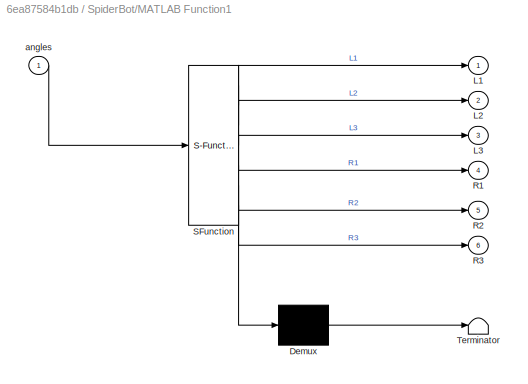
BLOCK [SubSystem] SpiderBot/MATLAB Function1
  ErrorFcn = Stateflow.Translate.translate
  PermitHierarchicalResolution = ExplicitOnly
  Ports = [1, 6]
  RequestExecContextInheritance = off
  SFBlockType = MATLAB Function
  TreatAsAtomicUnit = on
BLOCK [Demux] SpiderBot/MATLAB Function1/ Demux 
  Outputs = 1
  Ports = [1, 1]
BLOCK [S-Function] SpiderBot/MATLAB Function1/ SFunction 
  EnableBusSupport = on
  FunctionName = sf_sfun
  PortCounts = [1 7]
  Ports = [1, 7]
  SFcnIsStateOwnerBlock = off
  SFunctionDeploymentMode = off
  Tag = Stateflow S-Function spider 1
BLOCK [Terminator] SpiderBot/MATLAB Function1/ Terminator 
BLOCK [Outport] SpiderBot/MATLAB Function1/L1
  IconDisplay = Port number
BLOCK [Outport] SpiderBot/MATLAB Function1/L2
  IconDisplay = Port number
  Port = 2
BLOCK [Outport] SpiderBot/MATLAB Function1/L3
  IconDisplay = Port number
  Port = 3
BLOCK [Outport] SpiderBot/MATLAB Function1/R1
  IconDisplay = Port number
  Port = 4
BLOCK [Outport] SpiderBot/MATLAB Function1/R2
  IconDisplay = Port number
  Port = 5
BLOCK [Outport] SpiderBot/MATLAB Function1/R3
  IconDisplay = Port number
  Port = 6
BLOCK [Inport] SpiderBot/MATLAB Function1/angles
  IconDisplay = Port number
BLOCK [SubSystem] SpiderBot/R1
  Ports = [3, 0, 0, 0, 0, 1]
  RequestExecContextInheritance = off
BLOCK [PMIOPort] SpiderBot/R1/Conn1
  Side = Left
BLOCK [Inport] SpiderBot/R1/In1
  IconDisplay = Port number
BLOCK [Inport] SpiderBot/R1/In2
  IconDisplay = Port number
  Port = 2
BLOCK [Inport] SpiderBot/R1/In3
  IconDisplay = Port number
  Port = 3
BLOCK [Gain] SpiderBot/R1/Multiply
  Gain = -1
  OutDataTypeStr = Inherit: Inherit via internal rule
  ParamDataTypeStr = Inherit: Inherit via internal rule
  SaturateOnIntegerOverflow = off
BLOCK [Gain] SpiderBot/R1/Multiply1
  Gain = -1
  OutDataTypeStr = Inherit: Inherit via internal rule
  ParamDataTypeStr = Inherit: Inherit via internal rule
  SaturateOnIntegerOverflow = off
BLOCK [Reference] SpiderBot/R1/Revolute  REF=sm_lib/Joints/Revolute Joint
  Ports = [0, 0, 0, 0, 0, 2, 1]
  SourceBlock = sm_lib/Joints/Revolute Joint
  SourceProductBaseCode = MS
  SourceProductName = Simscape Multibody
  SourceType = Revolute Joint
BLOCK [Reference] SpiderBot/R1/Simulink-PS Converter  REF=nesl_utility/Simulink-PS
Converter
  Ports = [1, 0, 0, 0, 0, 0, 1]
  SourceBlock = nesl_utility/Simulink-PS\nConverter
  SourceProductBaseCode = SS
  SourceProductName = Simscape
  SourceType = Simulink-PS\nConverter
BLOCK [SubSystem] SpiderBot/R1/horn_6_RIGID
  Ports = [0, 0, 0, 0, 0, 1, 1]
  RequestExecContextInheritance = off
BLOCK [PMIOPort] SpiderBot/R1/horn_6_RIGID/F
  Port = 2
  Side = Right
BLOCK [PMIOPort] SpiderBot/R1/horn_6_RIGID/F1
  Side = Left
BLOCK [Reference] SpiderBot/R1/horn_6_RIGID/ReferenceFrame  REF=sm_lib/Frames and
Transforms/Reference
Frame
  Ports = [0, 0, 0, 0, 0, 0, 1]
  SourceBlock = sm_lib/Frames and\nTransforms/Reference\nFrame
  SourceProductBaseCode = MS
  SourceProductName = Simscape Multibody
  SourceType = Reference\nFrame
BLOCK [Reference] SpiderBot/R1/horn_6_RIGID/Solid  REF=sm_lib/Body Elements/Solid
  Ports = [0, 0, 0, 0, 0, 0, 1]
  SourceBlock = sm_lib/Body Elements/Solid
  SourceProductBaseCode = MS
  SourceProductName = Simscape Multibody
  SourceType = Solid
BLOCK [Reference] SpiderBot/R1/horn_6_RIGID/Transform  REF=sm_lib/Frames and
Transforms/Rigid
Transform
  Ports = [0, 0, 0, 0, 0, 1, 1]
  SourceBlock = sm_lib/Frames and\nTransforms/Rigid\nTransform
  SourceProductBaseCode = MS
  SourceProductName = Simscape Multibody
  SourceType = Rigid\nTransform
BLOCK [Reference] SpiderBot/R1/horn_6_RIGID/Transform1  REF=sm_lib/Frames and
Transforms/Rigid
Transform
  Ports = [0, 0, 0, 0, 0, 1, 1]
  SourceBlock = sm_lib/Frames and\nTransforms/Rigid\nTransform
  SourceProductBaseCode = MS
  SourceProductName = Simscape Multibody
  SourceType = Rigid\nTransform
BLOCK [SubSystem] SpiderBot/R1/right_leg_1
  Ports = [2, 0, 0, 0, 0, 1]
  RequestExecContextInheritance = off
BLOCK [PMIOPort] SpiderBot/R1/right_leg_1/F
  Side = Left
BLOCK [Inport] SpiderBot/R1/right_leg_1/In1
  IconDisplay = Port number
BLOCK [Inport] SpiderBot/R1/right_leg_1/In2
  IconDisplay = Port number
  Port = 2
BLOCK [Reference] SpiderBot/R1/right_leg_1/ReferenceFrame  REF=sm_lib/Frames and
Transforms/Reference
Frame
  Ports = [0, 0, 0, 0, 0, 0, 1]
  SourceBlock = sm_lib/Frames and\nTransforms/Reference\nFrame
  SourceProductBaseCode = MS
  SourceProductName = Simscape Multibody
  SourceType = Reference\nFrame
BLOCK [Reference] SpiderBot/R1/right_leg_1/Revolute  REF=sm_lib/Joints/Revolute Joint
  Ports = [0, 0, 0, 0, 0, 2, 1]
  SourceBlock = sm_lib/Joints/Revolute Joint
  SourceProductBaseCode = MS
  SourceProductName = Simscape Multibody
  SourceType = Revolute Joint
BLOCK [Reference] SpiderBot/R1/right_leg_1/Revolute1  REF=sm_lib/Joints/Revolute Joint
  Ports = [0, 0, 0, 0, 0, 2, 1]
  SourceBlock = sm_lib/Joints/Revolute Joint
  SourceProductBaseCode = MS
  SourceProductName = Simscape Multibody
  SourceType = Revolute Joint
BLOCK [Reference] SpiderBot/R1/right_leg_1/Revolute2  REF=sm_lib/Joints/Revolute Joint
  Ports = [0, 0, 0, 0, 0, 1, 1]
  SourceBlock = sm_lib/Joints/Revolute Joint
  SourceProductBaseCode = MS
  SourceProductName = Simscape Multibody
  SourceType = Revolute Joint
BLOCK [Reference] SpiderBot/R1/right_leg_1/Simulink-PS Converter  REF=nesl_utility/Simulink-PS
Converter
  Ports = [1, 0, 0, 0, 0, 0, 1]
  SourceBlock = nesl_utility/Simulink-PS\nConverter
  SourceProductBaseCode = SS
  SourceProductName = Simscape
  SourceType = Simulink-PS\nConverter
BLOCK [Reference] SpiderBot/R1/right_leg_1/Simulink-PS Converter1  REF=nesl_utility/Simulink-PS
Converter
  Ports = [1, 0, 0, 0, 0, 0, 1]
  SourceBlock = nesl_utility/Simulink-PS\nConverter
  SourceProductBaseCode = SS
  SourceProductName = Simscape
  SourceType = Simulink-PS\nConverter
BLOCK [SubSystem] SpiderBot/R1/right_leg_1/bearing_1_RIGID
  Ports = [0, 0, 0, 0, 0, 0, 1]
  RequestExecContextInheritance = off
BLOCK [PMIOPort] SpiderBot/R1/right_leg_1/bearing_1_RIGID/F
  Side = Right
BLOCK [Reference] SpiderBot/R1/right_leg_1/bearing_1_RIGID/ReferenceFrame  REF=sm_lib/Frames and
Transforms/Reference
Frame
  Ports = [0, 0, 0, 0, 0, 0, 1]
  SourceBlock = sm_lib/Frames and\nTransforms/Reference\nFrame
  SourceProductBaseCode = MS
  SourceProductName = Simscape Multibody
  SourceType = Reference\nFrame
BLOCK [Reference] SpiderBot/R1/right_leg_1/bearing_1_RIGID/Solid  REF=sm_lib/Body Elements/Solid
  Ports = [0, 0, 0, 0, 0, 0, 1]
  SourceBlock = sm_lib/Body Elements/Solid
  SourceProductBaseCode = MS
  SourceProductName = Simscape Multibody
  SourceType = Solid
BLOCK [Reference] SpiderBot/R1/right_leg_1/bearing_1_RIGID/Transform  REF=sm_lib/Frames and
Transforms/Rigid
Transform
  Ports = [0, 0, 0, 0, 0, 1, 1]
  SourceBlock = sm_lib/Frames and\nTransforms/Rigid\nTransform
  SourceProductBaseCode = MS
  SourceProductName = Simscape Multibody
  SourceType = Rigid\nTransform
BLOCK [SubSystem] SpiderBot/R1/right_leg_1/coxa_1_RIGID
  Ports = [0, 0, 0, 0, 0, 3]
  RequestExecContextInheritance = off
BLOCK [PMIOPort] SpiderBot/R1/right_leg_1/coxa_1_RIGID/F
  Side = Left
BLOCK [PMIOPort] SpiderBot/R1/right_leg_1/coxa_1_RIGID/F1
  Port = 2
  Side = Left
BLOCK [PMIOPort] SpiderBot/R1/right_leg_1/coxa_1_RIGID/F2
  Port = 3
  Side = Left
BLOCK [Reference] SpiderBot/R1/right_leg_1/coxa_1_RIGID/ReferenceFrame  REF=sm_lib/Frames and
Transforms/Reference
Frame
  Ports = [0, 0, 0, 0, 0, 0, 1]
  SourceBlock = sm_lib/Frames and\nTransforms/Reference\nFrame
  SourceProductBaseCode = MS
  SourceProductName = Simscape Multibody
  SourceType = Reference\nFrame
BLOCK [Reference] SpiderBot/R1/right_leg_1/coxa_1_RIGID/Solid  REF=sm_lib/Body Elements/Solid
  Ports = [0, 0, 0, 0, 0, 0, 1]
  SourceBlock = sm_lib/Body Elements/Solid
  SourceProductBaseCode = MS
  SourceProductName = Simscape Multibody
  SourceType = Solid
BLOCK [Reference] SpiderBot/R1/right_leg_1/coxa_1_RIGID/Transform  REF=sm_lib/Frames and
Transforms/Rigid
Transform
  Ports = [0, 0, 0, 0, 0, 1, 1]
  SourceBlock = sm_lib/Frames and\nTransforms/Rigid\nTransform
  SourceProductBaseCode = MS
  SourceProductName = Simscape Multibody
  SourceType = Rigid\nTransform
BLOCK [Reference] SpiderBot/R1/right_leg_1/coxa_1_RIGID/Transform1  REF=sm_lib/Frames and
Transforms/Rigid
Transform
  Ports = [0, 0, 0, 0, 0, 1, 1]
  SourceBlock = sm_lib/Frames and\nTransforms/Rigid\nTransform
  SourceProductBaseCode = MS
  SourceProductName = Simscape Multibody
  SourceType = Rigid\nTransform
BLOCK [Reference] SpiderBot/R1/right_leg_1/coxa_1_RIGID/Transform2  REF=sm_lib/Frames and
Transforms/Rigid
Transform
  Ports = [0, 0, 0, 0, 0, 1, 1]
  SourceBlock = sm_lib/Frames and\nTransforms/Rigid\nTransform
  SourceProductBaseCode = MS
  SourceProductName = Simscape Multibody
  SourceType = Rigid\nTransform
BLOCK [SubSystem] SpiderBot/R1/right_leg_1/coxa_2_RIGID
  Ports = [0, 0, 0, 0, 0, 2]
  RequestExecContextInheritance = off
BLOCK [PMIOPort] SpiderBot/R1/right_leg_1/coxa_2_RIGID/F
  Port = 2
  Side = Left
BLOCK [PMIOPort] SpiderBot/R1/right_leg_1/coxa_2_RIGID/F1
  Side = Left
BLOCK [Reference] SpiderBot/R1/right_leg_1/coxa_2_RIGID/ReferenceFrame  REF=sm_lib/Frames and
Transforms/Reference
Frame
  Ports = [0, 0, 0, 0, 0, 0, 1]
  SourceBlock = sm_lib/Frames and\nTransforms/Reference\nFrame
  SourceProductBaseCode = MS
  SourceProductName = Simscape Multibody
  SourceType = Reference\nFrame
BLOCK [Reference] SpiderBot/R1/right_leg_1/coxa_2_RIGID/Solid  REF=sm_lib/Body Elements/Solid
  Ports = [0, 0, 0, 0, 0, 0, 1]
  SourceBlock = sm_lib/Body Elements/Solid
  SourceProductBaseCode = MS
  SourceProductName = Simscape Multibody
  SourceType = Solid
BLOCK [Reference] SpiderBot/R1/right_leg_1/coxa_2_RIGID/Transform  REF=sm_lib/Frames and
Transforms/Rigid
Transform
  Ports = [0, 0, 0, 0, 0, 1, 1]
  SourceBlock = sm_lib/Frames and\nTransforms/Rigid\nTransform
  SourceProductBaseCode = MS
  SourceProductName = Simscape Multibody
  SourceType = Rigid\nTransform
BLOCK [Reference] SpiderBot/R1/right_leg_1/coxa_2_RIGID/Transform1  REF=sm_lib/Frames and
Transforms/Rigid
Transform
  Ports = [0, 0, 0, 0, 0, 1, 1]
  SourceBlock = sm_lib/Frames and\nTransforms/Rigid\nTransform
  SourceProductBaseCode = MS
  SourceProductName = Simscape Multibody
  SourceType = Rigid\nTransform
BLOCK [SubSystem] SpiderBot/R1/right_leg_1/femur_1_RIGID
  Ports = [0, 0, 0, 0, 0, 2]
  RequestExecContextInheritance = off
BLOCK [PMIOPort] SpiderBot/R1/right_leg_1/femur_1_RIGID/F
  Port = 2
  Side = Left
BLOCK [PMIOPort] SpiderBot/R1/right_leg_1/femur_1_RIGID/F1
  Side = Left
BLOCK [Reference] SpiderBot/R1/right_leg_1/femur_1_RIGID/ReferenceFrame  REF=sm_lib/Frames and
Transforms/Reference
Frame
  Ports = [0, 0, 0, 0, 0, 0, 1]
  SourceBlock = sm_lib/Frames and\nTransforms/Reference\nFrame
  SourceProductBaseCode = MS
  SourceProductName = Simscape Multibody
  SourceType = Reference\nFrame
BLOCK [Reference] SpiderBot/R1/right_leg_1/femur_1_RIGID/Solid  REF=sm_lib/Body Elements/Solid
  Ports = [0, 0, 0, 0, 0, 0, 1]
  SourceBlock = sm_lib/Body Elements/Solid
  SourceProductBaseCode = MS
  SourceProductName = Simscape Multibody
  SourceType = Solid
BLOCK [Reference] SpiderBot/R1/right_leg_1/femur_1_RIGID/Transform  REF=sm_lib/Frames and
Transforms/Rigid
Transform
  Ports = [0, 0, 0, 0, 0, 1, 1]
  SourceBlock = sm_lib/Frames and\nTransforms/Rigid\nTransform
  SourceProductBaseCode = MS
  SourceProductName = Simscape Multibody
  SourceType = Rigid\nTransform
BLOCK [Reference] SpiderBot/R1/right_leg_1/femur_1_RIGID/Transform1  REF=sm_lib/Frames and
Transforms/Rigid
Transform
  Ports = [0, 0, 0, 0, 0, 1, 1]
  SourceBlock = sm_lib/Frames and\nTransforms/Rigid\nTransform
  SourceProductBaseCode = MS
  SourceProductName = Simscape Multibody
  SourceType = Rigid\nTransform
BLOCK [SubSystem] SpiderBot/R1/right_leg_1/horn_1_RIGID
  Ports = [0, 0, 0, 0, 0, 2]
  RequestExecContextInheritance = off
BLOCK [PMIOPort] SpiderBot/R1/right_leg_1/horn_1_RIGID/F
  Port = 2
  Side = Left
BLOCK [PMIOPort] SpiderBot/R1/right_leg_1/horn_1_RIGID/F1
  Side = Left
BLOCK [Reference] SpiderBot/R1/right_leg_1/horn_1_RIGID/ReferenceFrame  REF=sm_lib/Frames and
Transforms/Reference
Frame
  Ports = [0, 0, 0, 0, 0, 0, 1]
  SourceBlock = sm_lib/Frames and\nTransforms/Reference\nFrame
  SourceProductBaseCode = MS
  SourceProductName = Simscape Multibody
  SourceType = Reference\nFrame
BLOCK [Reference] SpiderBot/R1/right_leg_1/horn_1_RIGID/Solid  REF=sm_lib/Body Elements/Solid
  Ports = [0, 0, 0, 0, 0, 0, 1]
  SourceBlock = sm_lib/Body Elements/Solid
  SourceProductBaseCode = MS
  SourceProductName = Simscape Multibody
  SourceType = Solid
BLOCK [Reference] SpiderBot/R1/right_leg_1/horn_1_RIGID/Transform  REF=sm_lib/Frames and
Transforms/Rigid
Transform
  Ports = [0, 0, 0, 0, 0, 1, 1]
  SourceBlock = sm_lib/Frames and\nTransforms/Rigid\nTransform
  SourceProductBaseCode = MS
  SourceProductName = Simscape Multibody
  SourceType = Rigid\nTransform
BLOCK [Reference] SpiderBot/R1/right_leg_1/horn_1_RIGID/Transform1  REF=sm_lib/Frames and
Transforms/Rigid
Transform
  Ports = [0, 0, 0, 0, 0, 1, 1]
  SourceBlock = sm_lib/Frames and\nTransforms/Rigid\nTransform
  SourceProductBaseCode = MS
  SourceProductName = Simscape Multibody
  SourceType = Rigid\nTransform
BLOCK [SubSystem] SpiderBot/R1/right_leg_1/horn_2_RIGID
  Ports = [0, 0, 0, 0, 0, 1, 1]
  RequestExecContextInheritance = off
BLOCK [PMIOPort] SpiderBot/R1/right_leg_1/horn_2_RIGID/F
  Port = 2
  Side = Right
BLOCK [PMIOPort] SpiderBot/R1/right_leg_1/horn_2_RIGID/F1
  Side = Left
BLOCK [Reference] SpiderBot/R1/right_leg_1/horn_2_RIGID/ReferenceFrame  REF=sm_lib/Frames and
Transforms/Reference
Frame
  Ports = [0, 0, 0, 0, 0, 0, 1]
  SourceBlock = sm_lib/Frames and\nTransforms/Reference\nFrame
  SourceProductBaseCode = MS
  SourceProductName = Simscape Multibody
  SourceType = Reference\nFrame
BLOCK [Reference] SpiderBot/R1/right_leg_1/horn_2_RIGID/Solid  REF=sm_lib/Body Elements/Solid
  Ports = [0, 0, 0, 0, 0, 0, 1]
  SourceBlock = sm_lib/Body Elements/Solid
  SourceProductBaseCode = MS
  SourceProductName = Simscape Multibody
  SourceType = Solid
BLOCK [Reference] SpiderBot/R1/right_leg_1/horn_2_RIGID/Transform  REF=sm_lib/Frames and
Transforms/Rigid
Transform
  Ports = [0, 0, 0, 0, 0, 1, 1]
  SourceBlock = sm_lib/Frames and\nTransforms/Rigid\nTransform
  SourceProductBaseCode = MS
  SourceProductName = Simscape Multibody
  SourceType = Rigid\nTransform
BLOCK [Reference] SpiderBot/R1/right_leg_1/horn_2_RIGID/Transform1  REF=sm_lib/Frames and
Transforms/Rigid
Transform
  Ports = [0, 0, 0, 0, 0, 1, 1]
  SourceBlock = sm_lib/Frames and\nTransforms/Rigid\nTransform
  SourceProductBaseCode = MS
  SourceProductName = Simscape Multibody
  SourceType = Rigid\nTransform
BLOCK [SubSystem] SpiderBot/R1/right_leg_1/servo_1_RIGID
  Ports = [0, 0, 0, 0, 0, 2]
  RequestExecContextInheritance = off
BLOCK [PMIOPort] SpiderBot/R1/right_leg_1/servo_1_RIGID/F
  Port = 2
  Side = Left
BLOCK [PMIOPort] SpiderBot/R1/right_leg_1/servo_1_RIGID/F1
  Side = Left
BLOCK [Reference] SpiderBot/R1/right_leg_1/servo_1_RIGID/ReferenceFrame  REF=sm_lib/Frames and
Transforms/Reference
Frame
  Ports = [0, 0, 0, 0, 0, 0, 1]
  SourceBlock = sm_lib/Frames and\nTransforms/Reference\nFrame
  SourceProductBaseCode = MS
  SourceProductName = Simscape Multibody
  SourceType = Reference\nFrame
BLOCK [Reference] SpiderBot/R1/right_leg_1/servo_1_RIGID/Solid  REF=sm_lib/Body Elements/Solid
  Ports = [0, 0, 0, 0, 0, 0, 1]
  SourceBlock = sm_lib/Body Elements/Solid
  SourceProductBaseCode = MS
  SourceProductName = Simscape Multibody
  SourceType = Solid
BLOCK [Reference] SpiderBot/R1/right_leg_1/servo_1_RIGID/Transform  REF=sm_lib/Frames and
Transforms/Rigid
Transform
  Ports = [0, 0, 0, 0, 0, 1, 1]
  SourceBlock = sm_lib/Frames and\nTransforms/Rigid\nTransform
  SourceProductBaseCode = MS
  SourceProductName = Simscape Multibody
  SourceType = Rigid\nTransform
BLOCK [Reference] SpiderBot/R1/right_leg_1/servo_1_RIGID/Transform1  REF=sm_lib/Frames and
Transforms/Rigid
Transform
  Ports = [0, 0, 0, 0, 0, 1, 1]
  SourceBlock = sm_lib/Frames and\nTransforms/Rigid\nTransform
  SourceProductBaseCode = MS
  SourceProductName = Simscape Multibody
  SourceType = Rigid\nTransform
BLOCK [SubSystem] SpiderBot/R1/right_leg_1/servo_2_RIGID
  Ports = [0, 0, 0, 0, 0, 1, 1]
  RequestExecContextInheritance = off
BLOCK [PMIOPort] SpiderBot/R1/right_leg_1/servo_2_RIGID/F
  Side = Left
BLOCK [PMIOPort] SpiderBot/R1/right_leg_1/servo_2_RIGID/F1
  Port = 2
  Side = Right
BLOCK [Reference] SpiderBot/R1/right_leg_1/servo_2_RIGID/ReferenceFrame  REF=sm_lib/Frames and
Transforms/Reference
Frame
  Ports = [0, 0, 0, 0, 0, 0, 1]
  SourceBlock = sm_lib/Frames and\nTransforms/Reference\nFrame
  SourceProductBaseCode = MS
  SourceProductName = Simscape Multibody
  SourceType = Reference\nFrame
BLOCK [Reference] SpiderBot/R1/right_leg_1/servo_2_RIGID/Solid  REF=sm_lib/Body Elements/Solid
  Ports = [0, 0, 0, 0, 0, 0, 1]
  SourceBlock = sm_lib/Body Elements/Solid
  SourceProductBaseCode = MS
  SourceProductName = Simscape Multibody
  SourceType = Solid
BLOCK [Reference] SpiderBot/R1/right_leg_1/servo_2_RIGID/Transform  REF=sm_lib/Frames and
Transforms/Rigid
Transform
  Ports = [0, 0, 0, 0, 0, 1, 1]
  SourceBlock = sm_lib/Frames and\nTransforms/Rigid\nTransform
  SourceProductBaseCode = MS
  SourceProductName = Simscape Multibody
  SourceType = Rigid\nTransform
BLOCK [Reference] SpiderBot/R1/right_leg_1/servo_2_RIGID/Transform1  REF=sm_lib/Frames and
Transforms/Rigid
Transform
  Ports = [0, 0, 0, 0, 0, 1, 1]
  SourceBlock = sm_lib/Frames and\nTransforms/Rigid\nTransform
  SourceProductBaseCode = MS
  SourceProductName = Simscape Multibody
  SourceType = Rigid\nTransform
BLOCK [SubSystem] SpiderBot/R1/right_leg_1/servo_3_RIGID
  Ports = [0, 0, 0, 0, 0, 2]
  RequestExecContextInheritance = off
BLOCK [PMIOPort] SpiderBot/R1/right_leg_1/servo_3_RIGID/F
  Port = 2
  Side = Left
BLOCK [PMIOPort] SpiderBot/R1/right_leg_1/servo_3_RIGID/F1
  Side = Left
BLOCK [Reference] SpiderBot/R1/right_leg_1/servo_3_RIGID/ReferenceFrame  REF=sm_lib/Frames and
Transforms/Reference
Frame
  Ports = [0, 0, 0, 0, 0, 0, 1]
  SourceBlock = sm_lib/Frames and\nTransforms/Reference\nFrame
  SourceProductBaseCode = MS
  SourceProductName = Simscape Multibody
  SourceType = Reference\nFrame
BLOCK [Reference] SpiderBot/R1/right_leg_1/servo_3_RIGID/Solid  REF=sm_lib/Body Elements/Solid
  Ports = [0, 0, 0, 0, 0, 0, 1]
  SourceBlock = sm_lib/Body Elements/Solid
  SourceProductBaseCode = MS
  SourceProductName = Simscape Multibody
  SourceType = Solid
BLOCK [Reference] SpiderBot/R1/right_leg_1/servo_3_RIGID/Transform  REF=sm_lib/Frames and
Transforms/Rigid
Transform
  Ports = [0, 0, 0, 0, 0, 1, 1]
  SourceBlock = sm_lib/Frames and\nTransforms/Rigid\nTransform
  SourceProductBaseCode = MS
  SourceProductName = Simscape Multibody
  SourceType = Rigid\nTransform
BLOCK [Reference] SpiderBot/R1/right_leg_1/servo_3_RIGID/Transform1  REF=sm_lib/Frames and
Transforms/Rigid
Transform
  Ports = [0, 0, 0, 0, 0, 1, 1]
  SourceBlock = sm_lib/Frames and\nTransforms/Rigid\nTransform
  SourceProductBaseCode = MS
  SourceProductName = Simscape Multibody
  SourceType = Rigid\nTransform
BLOCK [SubSystem] SpiderBot/R1/right_leg_1/tibia_1_RIGID
  Ports = [0, 0, 0, 0, 0, 1]
  RequestExecContextInheritance = off
BLOCK [PMIOPort] SpiderBot/R1/right_leg_1/tibia_1_RIGID/F
  Side = Left
BLOCK [Reference] SpiderBot/R1/right_leg_1/tibia_1_RIGID/ReferenceFrame  REF=sm_lib/Frames and
Transforms/Reference
Frame
  Ports = [0, 0, 0, 0, 0, 0, 1]
  SourceBlock = sm_lib/Frames and\nTransforms/Reference\nFrame
  SourceProductBaseCode = MS
  SourceProductName = Simscape Multibody
  SourceType = Reference\nFrame
BLOCK [Reference] SpiderBot/R1/right_leg_1/tibia_1_RIGID/Solid  REF=sm_lib/Body Elements/Solid
  Ports = [0, 0, 0, 0, 0, 0, 1]
  SourceBlock = sm_lib/Body Elements/Solid
  SourceProductBaseCode = MS
  SourceProductName = Simscape Multibody
  SourceType = Solid
BLOCK [Reference] SpiderBot/R1/right_leg_1/tibia_1_RIGID/Transform  REF=sm_lib/Frames and
Transforms/Rigid
Transform
  Ports = [0, 0, 0, 0, 0, 1, 1]
  SourceBlock = sm_lib/Frames and\nTransforms/Rigid\nTransform
  SourceProductBaseCode = MS
  SourceProductName = Simscape Multibody
  SourceType = Rigid\nTransform
BLOCK [SubSystem] SpiderBot/R2
  Ports = [3, 0, 0, 0, 0, 1]
  RequestExecContextInheritance = off
BLOCK [PMIOPort] SpiderBot/R2/Conn1
  Side = Left
BLOCK [Inport] SpiderBot/R2/In1
  IconDisplay = Port number
BLOCK [Inport] SpiderBot/R2/In2
  IconDisplay = Port number
  Port = 2
BLOCK [Inport] SpiderBot/R2/In3
  IconDisplay = Port number
  Port = 3
BLOCK [Gain] SpiderBot/R2/Multiply
  Gain = -1
  OutDataTypeStr = Inherit: Inherit via internal rule
  ParamDataTypeStr = Inherit: Inherit via internal rule
  SaturateOnIntegerOverflow = off
BLOCK [Gain] SpiderBot/R2/Multiply1
  Gain = -1
  OutDataTypeStr = Inherit: Inherit via internal rule
  ParamDataTypeStr = Inherit: Inherit via internal rule
  SaturateOnIntegerOverflow = off
BLOCK [Reference] SpiderBot/R2/Revolute3  REF=sm_lib/Joints/Revolute Joint
  Ports = [0, 0, 0, 0, 0, 2, 1]
  SourceBlock = sm_lib/Joints/Revolute Joint
  SourceProductBaseCode = MS
  SourceProductName = Simscape Multibody
  SourceType = Revolute Joint
BLOCK [Reference] SpiderBot/R2/Simulink-PS Converter  REF=nesl_utility/Simulink-PS
Converter
  Ports = [1, 0, 0, 0, 0, 0, 1]
  SourceBlock = nesl_utility/Simulink-PS\nConverter
  SourceProductBaseCode = SS
  SourceProductName = Simscape
  SourceType = Simulink-PS\nConverter
BLOCK [SubSystem] SpiderBot/R2/horn_4_RIGID
  Ports = [0, 0, 0, 0, 0, 1, 1]
  RequestExecContextInheritance = off
BLOCK [PMIOPort] SpiderBot/R2/horn_4_RIGID/F
  Side = Left
BLOCK [PMIOPort] SpiderBot/R2/horn_4_RIGID/F1
  Port = 2
  Side = Right
BLOCK [Reference] SpiderBot/R2/horn_4_RIGID/ReferenceFrame  REF=sm_lib/Frames and
Transforms/Reference
Frame
  Ports = [0, 0, 0, 0, 0, 0, 1]
  SourceBlock = sm_lib/Frames and\nTransforms/Reference\nFrame
  SourceProductBaseCode = MS
  SourceProductName = Simscape Multibody
  SourceType = Reference\nFrame
BLOCK [Reference] SpiderBot/R2/horn_4_RIGID/Solid  REF=sm_lib/Body Elements/Solid
  Ports = [0, 0, 0, 0, 0, 0, 1]
  SourceBlock = sm_lib/Body Elements/Solid
  SourceProductBaseCode = MS
  SourceProductName = Simscape Multibody
  SourceType = Solid
BLOCK [Reference] SpiderBot/R2/horn_4_RIGID/Transform  REF=sm_lib/Frames and
Transforms/Rigid
Transform
  Ports = [0, 0, 0, 0, 0, 1, 1]
  SourceBlock = sm_lib/Frames and\nTransforms/Rigid\nTransform
  SourceProductBaseCode = MS
  SourceProductName = Simscape Multibody
  SourceType = Rigid\nTransform
BLOCK [Reference] SpiderBot/R2/horn_4_RIGID/Transform1  REF=sm_lib/Frames and
Transforms/Rigid
Transform
  Ports = [0, 0, 0, 0, 0, 1, 1]
  SourceBlock = sm_lib/Frames and\nTransforms/Rigid\nTransform
  SourceProductBaseCode = MS
  SourceProductName = Simscape Multibody
  SourceType = Rigid\nTransform
BLOCK [SubSystem] SpiderBot/R2/right_leg_2
  Ports = [2, 0, 0, 0, 0, 1]
  RequestExecContextInheritance = off
BLOCK [PMIOPort] SpiderBot/R2/right_leg_2/F
  Side = Left
BLOCK [Inport] SpiderBot/R2/right_leg_2/In1
  IconDisplay = Port number
BLOCK [Inport] SpiderBot/R2/right_leg_2/In2
  IconDisplay = Port number
  Port = 2
BLOCK [Reference] SpiderBot/R2/right_leg_2/ReferenceFrame  REF=sm_lib/Frames and
Transforms/Reference
Frame
  Ports = [0, 0, 0, 0, 0, 0, 1]
  SourceBlock = sm_lib/Frames and\nTransforms/Reference\nFrame
  SourceProductBaseCode = MS
  SourceProductName = Simscape Multibody
  SourceType = Reference\nFrame
BLOCK [Reference] SpiderBot/R2/right_leg_2/Revolute  REF=sm_lib/Joints/Revolute Joint
  Ports = [0, 0, 0, 0, 0, 2, 1]
  SourceBlock = sm_lib/Joints/Revolute Joint
  SourceProductBaseCode = MS
  SourceProductName = Simscape Multibody
  SourceType = Revolute Joint
BLOCK [Reference] SpiderBot/R2/right_leg_2/Revolute1  REF=sm_lib/Joints/Revolute Joint
  Ports = [0, 0, 0, 0, 0, 2, 1]
  SourceBlock = sm_lib/Joints/Revolute Joint
  SourceProductBaseCode = MS
  SourceProductName = Simscape Multibody
  SourceType = Revolute Joint
BLOCK [Reference] SpiderBot/R2/right_leg_2/Revolute2  REF=sm_lib/Joints/Revolute Joint
  Ports = [0, 0, 0, 0, 0, 1, 1]
  SourceBlock = sm_lib/Joints/Revolute Joint
  SourceProductBaseCode = MS
  SourceProductName = Simscape Multibody
  SourceType = Revolute Joint
BLOCK [Reference] SpiderBot/R2/right_leg_2/Simulink-PS Converter  REF=nesl_utility/Simulink-PS
Converter
  Ports = [1, 0, 0, 0, 0, 0, 1]
  SourceBlock = nesl_utility/Simulink-PS\nConverter
  SourceProductBaseCode = SS
  SourceProductName = Simscape
  SourceType = Simulink-PS\nConverter
BLOCK [Reference] SpiderBot/R2/right_leg_2/Simulink-PS Converter1  REF=nesl_utility/Simulink-PS
Converter
  Ports = [1, 0, 0, 0, 0, 0, 1]
  SourceBlock = nesl_utility/Simulink-PS\nConverter
  SourceProductBaseCode = SS
  SourceProductName = Simscape
  SourceType = Simulink-PS\nConverter
BLOCK [SubSystem] SpiderBot/R2/right_leg_2/bearing_1_RIGID
  Ports = [0, 0, 0, 0, 0, 0, 1]
  RequestExecContextInheritance = off
BLOCK [PMIOPort] SpiderBot/R2/right_leg_2/bearing_1_RIGID/F
  Side = Right
BLOCK [Reference] SpiderBot/R2/right_leg_2/bearing_1_RIGID/ReferenceFrame  REF=sm_lib/Frames and
Transforms/Reference
Frame
  Ports = [0, 0, 0, 0, 0, 0, 1]
  SourceBlock = sm_lib/Frames and\nTransforms/Reference\nFrame
  SourceProductBaseCode = MS
  SourceProductName = Simscape Multibody
  SourceType = Reference\nFrame
BLOCK [Reference] SpiderBot/R2/right_leg_2/bearing_1_RIGID/Solid  REF=sm_lib/Body Elements/Solid
  Ports = [0, 0, 0, 0, 0, 0, 1]
  SourceBlock = sm_lib/Body Elements/Solid
  SourceProductBaseCode = MS
  SourceProductName = Simscape Multibody
  SourceType = Solid
BLOCK [Reference] SpiderBot/R2/right_leg_2/bearing_1_RIGID/Transform  REF=sm_lib/Frames and
Transforms/Rigid
Transform
  Ports = [0, 0, 0, 0, 0, 1, 1]
  SourceBlock = sm_lib/Frames and\nTransforms/Rigid\nTransform
  SourceProductBaseCode = MS
  SourceProductName = Simscape Multibody
  SourceType = Rigid\nTransform
BLOCK [SubSystem] SpiderBot/R2/right_leg_2/coxa_1_RIGID
  Ports = [0, 0, 0, 0, 0, 3]
  RequestExecContextInheritance = off
BLOCK [PMIOPort] SpiderBot/R2/right_leg_2/coxa_1_RIGID/F
  Side = Left
BLOCK [PMIOPort] SpiderBot/R2/right_leg_2/coxa_1_RIGID/F1
  Port = 2
  Side = Left
BLOCK [PMIOPort] SpiderBot/R2/right_leg_2/coxa_1_RIGID/F2
  Port = 3
  Side = Left
BLOCK [Reference] SpiderBot/R2/right_leg_2/coxa_1_RIGID/ReferenceFrame  REF=sm_lib/Frames and
Transforms/Reference
Frame
  Ports = [0, 0, 0, 0, 0, 0, 1]
  SourceBlock = sm_lib/Frames and\nTransforms/Reference\nFrame
  SourceProductBaseCode = MS
  SourceProductName = Simscape Multibody
  SourceType = Reference\nFrame
BLOCK [Reference] SpiderBot/R2/right_leg_2/coxa_1_RIGID/Solid  REF=sm_lib/Body Elements/Solid
  Ports = [0, 0, 0, 0, 0, 0, 1]
  SourceBlock = sm_lib/Body Elements/Solid
  SourceProductBaseCode = MS
  SourceProductName = Simscape Multibody
  SourceType = Solid
BLOCK [Reference] SpiderBot/R2/right_leg_2/coxa_1_RIGID/Transform  REF=sm_lib/Frames and
Transforms/Rigid
Transform
  Ports = [0, 0, 0, 0, 0, 1, 1]
  SourceBlock = sm_lib/Frames and\nTransforms/Rigid\nTransform
  SourceProductBaseCode = MS
  SourceProductName = Simscape Multibody
  SourceType = Rigid\nTransform
BLOCK [Reference] SpiderBot/R2/right_leg_2/coxa_1_RIGID/Transform1  REF=sm_lib/Frames and
Transforms/Rigid
Transform
  Ports = [0, 0, 0, 0, 0, 1, 1]
  SourceBlock = sm_lib/Frames and\nTransforms/Rigid\nTransform
  SourceProductBaseCode = MS
  SourceProductName = Simscape Multibody
  SourceType = Rigid\nTransform
BLOCK [Reference] SpiderBot/R2/right_leg_2/coxa_1_RIGID/Transform2  REF=sm_lib/Frames and
Transforms/Rigid
Transform
  Ports = [0, 0, 0, 0, 0, 1, 1]
  SourceBlock = sm_lib/Frames and\nTransforms/Rigid\nTransform
  SourceProductBaseCode = MS
  SourceProductName = Simscape Multibody
  SourceType = Rigid\nTransform
BLOCK [SubSystem] SpiderBot/R2/right_leg_2/coxa_2_RIGID
  Ports = [0, 0, 0, 0, 0, 2]
  RequestExecContextInheritance = off
BLOCK [PMIOPort] SpiderBot/R2/right_leg_2/coxa_2_RIGID/F
  Port = 2
  Side = Left
BLOCK [PMIOPort] SpiderBot/R2/right_leg_2/coxa_2_RIGID/F1
  Side = Left
BLOCK [Reference] SpiderBot/R2/right_leg_2/coxa_2_RIGID/ReferenceFrame  REF=sm_lib/Frames and
Transforms/Reference
Frame
  Ports = [0, 0, 0, 0, 0, 0, 1]
  SourceBlock = sm_lib/Frames and\nTransforms/Reference\nFrame
  SourceProductBaseCode = MS
  SourceProductName = Simscape Multibody
  SourceType = Reference\nFrame
BLOCK [Reference] SpiderBot/R2/right_leg_2/coxa_2_RIGID/Solid  REF=sm_lib/Body Elements/Solid
  Ports = [0, 0, 0, 0, 0, 0, 1]
  SourceBlock = sm_lib/Body Elements/Solid
  SourceProductBaseCode = MS
  SourceProductName = Simscape Multibody
  SourceType = Solid
BLOCK [Reference] SpiderBot/R2/right_leg_2/coxa_2_RIGID/Transform  REF=sm_lib/Frames and
Transforms/Rigid
Transform
  Ports = [0, 0, 0, 0, 0, 1, 1]
  SourceBlock = sm_lib/Frames and\nTransforms/Rigid\nTransform
  SourceProductBaseCode = MS
  SourceProductName = Simscape Multibody
  SourceType = Rigid\nTransform
BLOCK [Reference] SpiderBot/R2/right_leg_2/coxa_2_RIGID/Transform1  REF=sm_lib/Frames and
Transforms/Rigid
Transform
  Ports = [0, 0, 0, 0, 0, 1, 1]
  SourceBlock = sm_lib/Frames and\nTransforms/Rigid\nTransform
  SourceProductBaseCode = MS
  SourceProductName = Simscape Multibody
  SourceType = Rigid\nTransform
BLOCK [SubSystem] SpiderBot/R2/right_leg_2/femur_1_RIGID
  Ports = [0, 0, 0, 0, 0, 2]
  RequestExecContextInheritance = off
BLOCK [PMIOPort] SpiderBot/R2/right_leg_2/femur_1_RIGID/F
  Port = 2
  Side = Left
BLOCK [PMIOPort] SpiderBot/R2/right_leg_2/femur_1_RIGID/F1
  Side = Left
BLOCK [Reference] SpiderBot/R2/right_leg_2/femur_1_RIGID/ReferenceFrame  REF=sm_lib/Frames and
Transforms/Reference
Frame
  Ports = [0, 0, 0, 0, 0, 0, 1]
  SourceBlock = sm_lib/Frames and\nTransforms/Reference\nFrame
  SourceProductBaseCode = MS
  SourceProductName = Simscape Multibody
  SourceType = Reference\nFrame
BLOCK [Reference] SpiderBot/R2/right_leg_2/femur_1_RIGID/Solid  REF=sm_lib/Body Elements/Solid
  Ports = [0, 0, 0, 0, 0, 0, 1]
  SourceBlock = sm_lib/Body Elements/Solid
  SourceProductBaseCode = MS
  SourceProductName = Simscape Multibody
  SourceType = Solid
BLOCK [Reference] SpiderBot/R2/right_leg_2/femur_1_RIGID/Transform  REF=sm_lib/Frames and
Transforms/Rigid
Transform
  Ports = [0, 0, 0, 0, 0, 1, 1]
  SourceBlock = sm_lib/Frames and\nTransforms/Rigid\nTransform
  SourceProductBaseCode = MS
  SourceProductName = Simscape Multibody
  SourceType = Rigid\nTransform
BLOCK [Reference] SpiderBot/R2/right_leg_2/femur_1_RIGID/Transform1  REF=sm_lib/Frames and
Transforms/Rigid
Transform
  Ports = [0, 0, 0, 0, 0, 1, 1]
  SourceBlock = sm_lib/Frames and\nTransforms/Rigid\nTransform
  SourceProductBaseCode = MS
  SourceProductName = Simscape Multibody
  SourceType = Rigid\nTransform
BLOCK [SubSystem] SpiderBot/R2/right_leg_2/horn_1_RIGID
  Ports = [0, 0, 0, 0, 0, 2]
  RequestExecContextInheritance = off
BLOCK [PMIOPort] SpiderBot/R2/right_leg_2/horn_1_RIGID/F
  Port = 2
  Side = Left
BLOCK [PMIOPort] SpiderBot/R2/right_leg_2/horn_1_RIGID/F1
  Side = Left
BLOCK [Reference] SpiderBot/R2/right_leg_2/horn_1_RIGID/ReferenceFrame  REF=sm_lib/Frames and
Transforms/Reference
Frame
  Ports = [0, 0, 0, 0, 0, 0, 1]
  SourceBlock = sm_lib/Frames and\nTransforms/Reference\nFrame
  SourceProductBaseCode = MS
  SourceProductName = Simscape Multibody
  SourceType = Reference\nFrame
BLOCK [Reference] SpiderBot/R2/right_leg_2/horn_1_RIGID/Solid  REF=sm_lib/Body Elements/Solid
  Ports = [0, 0, 0, 0, 0, 0, 1]
  SourceBlock = sm_lib/Body Elements/Solid
  SourceProductBaseCode = MS
  SourceProductName = Simscape Multibody
  SourceType = Solid
BLOCK [Reference] SpiderBot/R2/right_leg_2/horn_1_RIGID/Transform  REF=sm_lib/Frames and
Transforms/Rigid
Transform
  Ports = [0, 0, 0, 0, 0, 1, 1]
  SourceBlock = sm_lib/Frames and\nTransforms/Rigid\nTransform
  SourceProductBaseCode = MS
  SourceProductName = Simscape Multibody
  SourceType = Rigid\nTransform
BLOCK [Reference] SpiderBot/R2/right_leg_2/horn_1_RIGID/Transform1  REF=sm_lib/Frames and
Transforms/Rigid
Transform
  Ports = [0, 0, 0, 0, 0, 1, 1]
  SourceBlock = sm_lib/Frames and\nTransforms/Rigid\nTransform
  SourceProductBaseCode = MS
  SourceProductName = Simscape Multibody
  SourceType = Rigid\nTransform
BLOCK [SubSystem] SpiderBot/R2/right_leg_2/horn_2_RIGID
  Ports = [0, 0, 0, 0, 0, 1, 1]
  RequestExecContextInheritance = off
BLOCK [PMIOPort] SpiderBot/R2/right_leg_2/horn_2_RIGID/F
  Port = 2
  Side = Right
BLOCK [PMIOPort] SpiderBot/R2/right_leg_2/horn_2_RIGID/F1
  Side = Left
BLOCK [Reference] SpiderBot/R2/right_leg_2/horn_2_RIGID/ReferenceFrame  REF=sm_lib/Frames and
Transforms/Reference
Frame
  Ports = [0, 0, 0, 0, 0, 0, 1]
  SourceBlock = sm_lib/Frames and\nTransforms/Reference\nFrame
  SourceProductBaseCode = MS
  SourceProductName = Simscape Multibody
  SourceType = Reference\nFrame
BLOCK [Reference] SpiderBot/R2/right_leg_2/horn_2_RIGID/Solid  REF=sm_lib/Body Elements/Solid
  Ports = [0, 0, 0, 0, 0, 0, 1]
  SourceBlock = sm_lib/Body Elements/Solid
  SourceProductBaseCode = MS
  SourceProductName = Simscape Multibody
  SourceType = Solid
BLOCK [Reference] SpiderBot/R2/right_leg_2/horn_2_RIGID/Transform  REF=sm_lib/Frames and
Transforms/Rigid
Transform
  Ports = [0, 0, 0, 0, 0, 1, 1]
  SourceBlock = sm_lib/Frames and\nTransforms/Rigid\nTransform
  SourceProductBaseCode = MS
  SourceProductName = Simscape Multibody
  SourceType = Rigid\nTransform
BLOCK [Reference] SpiderBot/R2/right_leg_2/horn_2_RIGID/Transform1  REF=sm_lib/Frames and
Transforms/Rigid
Transform
  Ports = [0, 0, 0, 0, 0, 1, 1]
  SourceBlock = sm_lib/Frames and\nTransforms/Rigid\nTransform
  SourceProductBaseCode = MS
  SourceProductName = Simscape Multibody
  SourceType = Rigid\nTransform
BLOCK [SubSystem] SpiderBot/R2/right_leg_2/servo_1_RIGID
  Ports = [0, 0, 0, 0, 0, 2]
  RequestExecContextInheritance = off
BLOCK [PMIOPort] SpiderBot/R2/right_leg_2/servo_1_RIGID/F
  Port = 2
  Side = Left
BLOCK [PMIOPort] SpiderBot/R2/right_leg_2/servo_1_RIGID/F1
  Side = Left
BLOCK [Reference] SpiderBot/R2/right_leg_2/servo_1_RIGID/ReferenceFrame  REF=sm_lib/Frames and
Transforms/Reference
Frame
  Ports = [0, 0, 0, 0, 0, 0, 1]
  SourceBlock = sm_lib/Frames and\nTransforms/Reference\nFrame
  SourceProductBaseCode = MS
  SourceProductName = Simscape Multibody
  SourceType = Reference\nFrame
BLOCK [Reference] SpiderBot/R2/right_leg_2/servo_1_RIGID/Solid  REF=sm_lib/Body Elements/Solid
  Ports = [0, 0, 0, 0, 0, 0, 1]
  SourceBlock = sm_lib/Body Elements/Solid
  SourceProductBaseCode = MS
  SourceProductName = Simscape Multibody
  SourceType = Solid
BLOCK [Reference] SpiderBot/R2/right_leg_2/servo_1_RIGID/Transform  REF=sm_lib/Frames and
Transforms/Rigid
Transform
  Ports = [0, 0, 0, 0, 0, 1, 1]
  SourceBlock = sm_lib/Frames and\nTransforms/Rigid\nTransform
  SourceProductBaseCode = MS
  SourceProductName = Simscape Multibody
  SourceType = Rigid\nTransform
BLOCK [Reference] SpiderBot/R2/right_leg_2/servo_1_RIGID/Transform1  REF=sm_lib/Frames and
Transforms/Rigid
Transform
  Ports = [0, 0, 0, 0, 0, 1, 1]
  SourceBlock = sm_lib/Frames and\nTransforms/Rigid\nTransform
  SourceProductBaseCode = MS
  SourceProductName = Simscape Multibody
  SourceType = Rigid\nTransform
BLOCK [SubSystem] SpiderBot/R2/right_leg_2/servo_2_RIGID
  Ports = [0, 0, 0, 0, 0, 1, 1]
  RequestExecContextInheritance = off
BLOCK [PMIOPort] SpiderBot/R2/right_leg_2/servo_2_RIGID/F
  Side = Left
BLOCK [PMIOPort] SpiderBot/R2/right_leg_2/servo_2_RIGID/F1
  Port = 2
  Side = Right
BLOCK [Reference] SpiderBot/R2/right_leg_2/servo_2_RIGID/ReferenceFrame  REF=sm_lib/Frames and
Transforms/Reference
Frame
  Ports = [0, 0, 0, 0, 0, 0, 1]
  SourceBlock = sm_lib/Frames and\nTransforms/Reference\nFrame
  SourceProductBaseCode = MS
  SourceProductName = Simscape Multibody
  SourceType = Reference\nFrame
BLOCK [Reference] SpiderBot/R2/right_leg_2/servo_2_RIGID/Solid  REF=sm_lib/Body Elements/Solid
  Ports = [0, 0, 0, 0, 0, 0, 1]
  SourceBlock = sm_lib/Body Elements/Solid
  SourceProductBaseCode = MS
  SourceProductName = Simscape Multibody
  SourceType = Solid
BLOCK [Reference] SpiderBot/R2/right_leg_2/servo_2_RIGID/Transform  REF=sm_lib/Frames and
Transforms/Rigid
Transform
  Ports = [0, 0, 0, 0, 0, 1, 1]
  SourceBlock = sm_lib/Frames and\nTransforms/Rigid\nTransform
  SourceProductBaseCode = MS
  SourceProductName = Simscape Multibody
  SourceType = Rigid\nTransform
BLOCK [Reference] SpiderBot/R2/right_leg_2/servo_2_RIGID/Transform1  REF=sm_lib/Frames and
Transforms/Rigid
Transform
  Ports = [0, 0, 0, 0, 0, 1, 1]
  SourceBlock = sm_lib/Frames and\nTransforms/Rigid\nTransform
  SourceProductBaseCode = MS
  SourceProductName = Simscape Multibody
  SourceType = Rigid\nTransform
BLOCK [SubSystem] SpiderBot/R2/right_leg_2/servo_3_RIGID
  Ports = [0, 0, 0, 0, 0, 2]
  RequestExecContextInheritance = off
BLOCK [PMIOPort] SpiderBot/R2/right_leg_2/servo_3_RIGID/F
  Port = 2
  Side = Left
BLOCK [PMIOPort] SpiderBot/R2/right_leg_2/servo_3_RIGID/F1
  Side = Left
BLOCK [Reference] SpiderBot/R2/right_leg_2/servo_3_RIGID/ReferenceFrame  REF=sm_lib/Frames and
Transforms/Reference
Frame
  Ports = [0, 0, 0, 0, 0, 0, 1]
  SourceBlock = sm_lib/Frames and\nTransforms/Reference\nFrame
  SourceProductBaseCode = MS
  SourceProductName = Simscape Multibody
  SourceType = Reference\nFrame
BLOCK [Reference] SpiderBot/R2/right_leg_2/servo_3_RIGID/Solid  REF=sm_lib/Body Elements/Solid
  Ports = [0, 0, 0, 0, 0, 0, 1]
  SourceBlock = sm_lib/Body Elements/Solid
  SourceProductBaseCode = MS
  SourceProductName = Simscape Multibody
  SourceType = Solid
BLOCK [Reference] SpiderBot/R2/right_leg_2/servo_3_RIGID/Transform  REF=sm_lib/Frames and
Transforms/Rigid
Transform
  Ports = [0, 0, 0, 0, 0, 1, 1]
  SourceBlock = sm_lib/Frames and\nTransforms/Rigid\nTransform
  SourceProductBaseCode = MS
  SourceProductName = Simscape Multibody
  SourceType = Rigid\nTransform
BLOCK [Reference] SpiderBot/R2/right_leg_2/servo_3_RIGID/Transform1  REF=sm_lib/Frames and
Transforms/Rigid
Transform
  Ports = [0, 0, 0, 0, 0, 1, 1]
  SourceBlock = sm_lib/Frames and\nTransforms/Rigid\nTransform
  SourceProductBaseCode = MS
  SourceProductName = Simscape Multibody
  SourceType = Rigid\nTransform
BLOCK [SubSystem] SpiderBot/R2/right_leg_2/tibia_1_RIGID
  Ports = [0, 0, 0, 0, 0, 1]
  RequestExecContextInheritance = off
BLOCK [PMIOPort] SpiderBot/R2/right_leg_2/tibia_1_RIGID/F
  Side = Left
BLOCK [Reference] SpiderBot/R2/right_leg_2/tibia_1_RIGID/ReferenceFrame  REF=sm_lib/Frames and
Transforms/Reference
Frame
  Ports = [0, 0, 0, 0, 0, 0, 1]
  SourceBlock = sm_lib/Frames and\nTransforms/Reference\nFrame
  SourceProductBaseCode = MS
  SourceProductName = Simscape Multibody
  SourceType = Reference\nFrame
BLOCK [Reference] SpiderBot/R2/right_leg_2/tibia_1_RIGID/Solid  REF=sm_lib/Body Elements/Solid
  Ports = [0, 0, 0, 0, 0, 0, 1]
  SourceBlock = sm_lib/Body Elements/Solid
  SourceProductBaseCode = MS
  SourceProductName = Simscape Multibody
  SourceType = Solid
BLOCK [Reference] SpiderBot/R2/right_leg_2/tibia_1_RIGID/Transform  REF=sm_lib/Frames and
Transforms/Rigid
Transform
  Ports = [0, 0, 0, 0, 0, 1, 1]
  SourceBlock = sm_lib/Frames and\nTransforms/Rigid\nTransform
  SourceProductBaseCode = MS
  SourceProductName = Simscape Multibody
  SourceType = Rigid\nTransform
BLOCK [SubSystem] SpiderBot/R3
  Ports = [3, 0, 0, 0, 0, 1]
  RequestExecContextInheritance = off
BLOCK [PMIOPort] SpiderBot/R3/Conn1
  Side = Left
BLOCK [Inport] SpiderBot/R3/In1
  IconDisplay = Port number
BLOCK [Inport] SpiderBot/R3/In2
  IconDisplay = Port number
  Port = 2
BLOCK [Inport] SpiderBot/R3/In3
  IconDisplay = Port number
  Port = 3
BLOCK [Gain] SpiderBot/R3/Multiply
  Gain = -1
  OutDataTypeStr = Inherit: Inherit via internal rule
  ParamDataTypeStr = Inherit: Inherit via internal rule
  SaturateOnIntegerOverflow = off
BLOCK [Gain] SpiderBot/R3/Multiply1
  Gain = -1
  OutDataTypeStr = Inherit: Inherit via internal rule
  ParamDataTypeStr = Inherit: Inherit via internal rule
  SaturateOnIntegerOverflow = off
BLOCK [Reference] SpiderBot/R3/Revolute2  REF=sm_lib/Joints/Revolute Joint
  Ports = [0, 0, 0, 0, 0, 2, 1]
  SourceBlock = sm_lib/Joints/Revolute Joint
  SourceProductBaseCode = MS
  SourceProductName = Simscape Multibody
  SourceType = Revolute Joint
BLOCK [Reference] SpiderBot/R3/Simulink-PS Converter  REF=nesl_utility/Simulink-PS
Converter
  Ports = [1, 0, 0, 0, 0, 0, 1]
  SourceBlock = nesl_utility/Simulink-PS\nConverter
  SourceProductBaseCode = SS
  SourceProductName = Simscape
  SourceType = Simulink-PS\nConverter
BLOCK [SubSystem] SpiderBot/R3/horn_1_RIGID
  Ports = [0, 0, 0, 0, 0, 1, 1]
  RequestExecContextInheritance = off
BLOCK [PMIOPort] SpiderBot/R3/horn_1_RIGID/F
  Port = 2
  Side = Right
BLOCK [PMIOPort] SpiderBot/R3/horn_1_RIGID/F1
  Side = Left
BLOCK [Reference] SpiderBot/R3/horn_1_RIGID/ReferenceFrame  REF=sm_lib/Frames and
Transforms/Reference
Frame
  Ports = [0, 0, 0, 0, 0, 0, 1]
  SourceBlock = sm_lib/Frames and\nTransforms/Reference\nFrame
  SourceProductBaseCode = MS
  SourceProductName = Simscape Multibody
  SourceType = Reference\nFrame
BLOCK [Reference] SpiderBot/R3/horn_1_RIGID/Solid  REF=sm_lib/Body Elements/Solid
  Ports = [0, 0, 0, 0, 0, 0, 1]
  SourceBlock = sm_lib/Body Elements/Solid
  SourceProductBaseCode = MS
  SourceProductName = Simscape Multibody
  SourceType = Solid
BLOCK [Reference] SpiderBot/R3/horn_1_RIGID/Transform  REF=sm_lib/Frames and
Transforms/Rigid
Transform
  Ports = [0, 0, 0, 0, 0, 1, 1]
  SourceBlock = sm_lib/Frames and\nTransforms/Rigid\nTransform
  SourceProductBaseCode = MS
  SourceProductName = Simscape Multibody
  SourceType = Rigid\nTransform
BLOCK [Reference] SpiderBot/R3/horn_1_RIGID/Transform1  REF=sm_lib/Frames and
Transforms/Rigid
Transform
  Ports = [0, 0, 0, 0, 0, 1, 1]
  SourceBlock = sm_lib/Frames and\nTransforms/Rigid\nTransform
  SourceProductBaseCode = MS
  SourceProductName = Simscape Multibody
  SourceType = Rigid\nTransform
BLOCK [SubSystem] SpiderBot/R3/right_leg_3
  Ports = [2, 0, 0, 0, 0, 1]
  RequestExecContextInheritance = off
BLOCK [PMIOPort] SpiderBot/R3/right_leg_3/F
  Side = Left
BLOCK [Inport] SpiderBot/R3/right_leg_3/In1
  IconDisplay = Port number
BLOCK [Inport] SpiderBot/R3/right_leg_3/In2
  IconDisplay = Port number
  Port = 2
BLOCK [Reference] SpiderBot/R3/right_leg_3/ReferenceFrame  REF=sm_lib/Frames and
Transforms/Reference
Frame
  Ports = [0, 0, 0, 0, 0, 0, 1]
  SourceBlock = sm_lib/Frames and\nTransforms/Reference\nFrame
  SourceProductBaseCode = MS
  SourceProductName = Simscape Multibody
  SourceType = Reference\nFrame
BLOCK [Reference] SpiderBot/R3/right_leg_3/Revolute  REF=sm_lib/Joints/Revolute Joint
  Ports = [0, 0, 0, 0, 0, 2, 1]
  SourceBlock = sm_lib/Joints/Revolute Joint
  SourceProductBaseCode = MS
  SourceProductName = Simscape Multibody
  SourceType = Revolute Joint
BLOCK [Reference] SpiderBot/R3/right_leg_3/Revolute1  REF=sm_lib/Joints/Revolute Joint
  Ports = [0, 0, 0, 0, 0, 2, 1]
  SourceBlock = sm_lib/Joints/Revolute Joint
  SourceProductBaseCode = MS
  SourceProductName = Simscape Multibody
  SourceType = Revolute Joint
BLOCK [Reference] SpiderBot/R3/right_leg_3/Revolute2  REF=sm_lib/Joints/Revolute Joint
  Ports = [0, 0, 0, 0, 0, 1, 1]
  SourceBlock = sm_lib/Joints/Revolute Joint
  SourceProductBaseCode = MS
  SourceProductName = Simscape Multibody
  SourceType = Revolute Joint
BLOCK [Reference] SpiderBot/R3/right_leg_3/Simulink-PS Converter  REF=nesl_utility/Simulink-PS
Converter
  Ports = [1, 0, 0, 0, 0, 0, 1]
  SourceBlock = nesl_utility/Simulink-PS\nConverter
  SourceProductBaseCode = SS
  SourceProductName = Simscape
  SourceType = Simulink-PS\nConverter
BLOCK [Reference] SpiderBot/R3/right_leg_3/Simulink-PS Converter1  REF=nesl_utility/Simulink-PS
Converter
  Ports = [1, 0, 0, 0, 0, 0, 1]
  SourceBlock = nesl_utility/Simulink-PS\nConverter
  SourceProductBaseCode = SS
  SourceProductName = Simscape
  SourceType = Simulink-PS\nConverter
BLOCK [SubSystem] SpiderBot/R3/right_leg_3/bearing_1_RIGID
  Ports = [0, 0, 0, 0, 0, 0, 1]
  RequestExecContextInheritance = off
BLOCK [PMIOPort] SpiderBot/R3/right_leg_3/bearing_1_RIGID/F
  Side = Right
BLOCK [Reference] SpiderBot/R3/right_leg_3/bearing_1_RIGID/ReferenceFrame  REF=sm_lib/Frames and
Transforms/Reference
Frame
  Ports = [0, 0, 0, 0, 0, 0, 1]
  SourceBlock = sm_lib/Frames and\nTransforms/Reference\nFrame
  SourceProductBaseCode = MS
  SourceProductName = Simscape Multibody
  SourceType = Reference\nFrame
BLOCK [Reference] SpiderBot/R3/right_leg_3/bearing_1_RIGID/Solid  REF=sm_lib/Body Elements/Solid
  Ports = [0, 0, 0, 0, 0, 0, 1]
  SourceBlock = sm_lib/Body Elements/Solid
  SourceProductBaseCode = MS
  SourceProductName = Simscape Multibody
  SourceType = Solid
BLOCK [Reference] SpiderBot/R3/right_leg_3/bearing_1_RIGID/Transform  REF=sm_lib/Frames and
Transforms/Rigid
Transform
  Ports = [0, 0, 0, 0, 0, 1, 1]
  SourceBlock = sm_lib/Frames and\nTransforms/Rigid\nTransform
  SourceProductBaseCode = MS
  SourceProductName = Simscape Multibody
  SourceType = Rigid\nTransform
BLOCK [SubSystem] SpiderBot/R3/right_leg_3/coxa_1_RIGID
  Ports = [0, 0, 0, 0, 0, 3]
  RequestExecContextInheritance = off
BLOCK [PMIOPort] SpiderBot/R3/right_leg_3/coxa_1_RIGID/F
  Side = Left
BLOCK [PMIOPort] SpiderBot/R3/right_leg_3/coxa_1_RIGID/F1
  Port = 2
  Side = Left
BLOCK [PMIOPort] SpiderBot/R3/right_leg_3/coxa_1_RIGID/F2
  Port = 3
  Side = Left
BLOCK [Reference] SpiderBot/R3/right_leg_3/coxa_1_RIGID/ReferenceFrame  REF=sm_lib/Frames and
Transforms/Reference
Frame
  Ports = [0, 0, 0, 0, 0, 0, 1]
  SourceBlock = sm_lib/Frames and\nTransforms/Reference\nFrame
  SourceProductBaseCode = MS
  SourceProductName = Simscape Multibody
  SourceType = Reference\nFrame
BLOCK [Reference] SpiderBot/R3/right_leg_3/coxa_1_RIGID/Solid  REF=sm_lib/Body Elements/Solid
  Ports = [0, 0, 0, 0, 0, 0, 1]
  SourceBlock = sm_lib/Body Elements/Solid
  SourceProductBaseCode = MS
  SourceProductName = Simscape Multibody
  SourceType = Solid
BLOCK [Reference] SpiderBot/R3/right_leg_3/coxa_1_RIGID/Transform  REF=sm_lib/Frames and
Transforms/Rigid
Transform
  Ports = [0, 0, 0, 0, 0, 1, 1]
  SourceBlock = sm_lib/Frames and\nTransforms/Rigid\nTransform
  SourceProductBaseCode = MS
  SourceProductName = Simscape Multibody
  SourceType = Rigid\nTransform
BLOCK [Reference] SpiderBot/R3/right_leg_3/coxa_1_RIGID/Transform1  REF=sm_lib/Frames and
Transforms/Rigid
Transform
  Ports = [0, 0, 0, 0, 0, 1, 1]
  SourceBlock = sm_lib/Frames and\nTransforms/Rigid\nTransform
  SourceProductBaseCode = MS
  SourceProductName = Simscape Multibody
  SourceType = Rigid\nTransform
BLOCK [Reference] SpiderBot/R3/right_leg_3/coxa_1_RIGID/Transform2  REF=sm_lib/Frames and
Transforms/Rigid
Transform
  Ports = [0, 0, 0, 0, 0, 1, 1]
  SourceBlock = sm_lib/Frames and\nTransforms/Rigid\nTransform
  SourceProductBaseCode = MS
  SourceProductName = Simscape Multibody
  SourceType = Rigid\nTransform
BLOCK [SubSystem] SpiderBot/R3/right_leg_3/coxa_2_RIGID
  Ports = [0, 0, 0, 0, 0, 2]
  RequestExecContextInheritance = off
BLOCK [PMIOPort] SpiderBot/R3/right_leg_3/coxa_2_RIGID/F
  Port = 2
  Side = Left
BLOCK [PMIOPort] SpiderBot/R3/right_leg_3/coxa_2_RIGID/F1
  Side = Left
BLOCK [Reference] SpiderBot/R3/right_leg_3/coxa_2_RIGID/ReferenceFrame  REF=sm_lib/Frames and
Transforms/Reference
Frame
  Ports = [0, 0, 0, 0, 0, 0, 1]
  SourceBlock = sm_lib/Frames and\nTransforms/Reference\nFrame
  SourceProductBaseCode = MS
  SourceProductName = Simscape Multibody
  SourceType = Reference\nFrame
BLOCK [Reference] SpiderBot/R3/right_leg_3/coxa_2_RIGID/Solid  REF=sm_lib/Body Elements/Solid
  Ports = [0, 0, 0, 0, 0, 0, 1]
  SourceBlock = sm_lib/Body Elements/Solid
  SourceProductBaseCode = MS
  SourceProductName = Simscape Multibody
  SourceType = Solid
BLOCK [Reference] SpiderBot/R3/right_leg_3/coxa_2_RIGID/Transform  REF=sm_lib/Frames and
Transforms/Rigid
Transform
  Ports = [0, 0, 0, 0, 0, 1, 1]
  SourceBlock = sm_lib/Frames and\nTransforms/Rigid\nTransform
  SourceProductBaseCode = MS
  SourceProductName = Simscape Multibody
  SourceType = Rigid\nTransform
BLOCK [Reference] SpiderBot/R3/right_leg_3/coxa_2_RIGID/Transform1  REF=sm_lib/Frames and
Transforms/Rigid
Transform
  Ports = [0, 0, 0, 0, 0, 1, 1]
  SourceBlock = sm_lib/Frames and\nTransforms/Rigid\nTransform
  SourceProductBaseCode = MS
  SourceProductName = Simscape Multibody
  SourceType = Rigid\nTransform
BLOCK [SubSystem] SpiderBot/R3/right_leg_3/femur_1_RIGID
  Ports = [0, 0, 0, 0, 0, 2]
  RequestExecContextInheritance = off
BLOCK [PMIOPort] SpiderBot/R3/right_leg_3/femur_1_RIGID/F
  Port = 2
  Side = Left
BLOCK [PMIOPort] SpiderBot/R3/right_leg_3/femur_1_RIGID/F1
  Side = Left
BLOCK [Reference] SpiderBot/R3/right_leg_3/femur_1_RIGID/ReferenceFrame  REF=sm_lib/Frames and
Transforms/Reference
Frame
  Ports = [0, 0, 0, 0, 0, 0, 1]
  SourceBlock = sm_lib/Frames and\nTransforms/Reference\nFrame
  SourceProductBaseCode = MS
  SourceProductName = Simscape Multibody
  SourceType = Reference\nFrame
BLOCK [Reference] SpiderBot/R3/right_leg_3/femur_1_RIGID/Solid  REF=sm_lib/Body Elements/Solid
  Ports = [0, 0, 0, 0, 0, 0, 1]
  SourceBlock = sm_lib/Body Elements/Solid
  SourceProductBaseCode = MS
  SourceProductName = Simscape Multibody
  SourceType = Solid
BLOCK [Reference] SpiderBot/R3/right_leg_3/femur_1_RIGID/Transform  REF=sm_lib/Frames and
Transforms/Rigid
Transform
  Ports = [0, 0, 0, 0, 0, 1, 1]
  SourceBlock = sm_lib/Frames and\nTransforms/Rigid\nTransform
  SourceProductBaseCode = MS
  SourceProductName = Simscape Multibody
  SourceType = Rigid\nTransform
BLOCK [Reference] SpiderBot/R3/right_leg_3/femur_1_RIGID/Transform1  REF=sm_lib/Frames and
Transforms/Rigid
Transform
  Ports = [0, 0, 0, 0, 0, 1, 1]
  SourceBlock = sm_lib/Frames and\nTransforms/Rigid\nTransform
  SourceProductBaseCode = MS
  SourceProductName = Simscape Multibody
  SourceType = Rigid\nTransform
BLOCK [SubSystem] SpiderBot/R3/right_leg_3/horn_1_RIGID
  Ports = [0, 0, 0, 0, 0, 2]
  RequestExecContextInheritance = off
BLOCK [PMIOPort] SpiderBot/R3/right_leg_3/horn_1_RIGID/F
  Port = 2
  Side = Left
BLOCK [PMIOPort] SpiderBot/R3/right_leg_3/horn_1_RIGID/F1
  Side = Left
BLOCK [Reference] SpiderBot/R3/right_leg_3/horn_1_RIGID/ReferenceFrame  REF=sm_lib/Frames and
Transforms/Reference
Frame
  Ports = [0, 0, 0, 0, 0, 0, 1]
  SourceBlock = sm_lib/Frames and\nTransforms/Reference\nFrame
  SourceProductBaseCode = MS
  SourceProductName = Simscape Multibody
  SourceType = Reference\nFrame
BLOCK [Reference] SpiderBot/R3/right_leg_3/horn_1_RIGID/Solid  REF=sm_lib/Body Elements/Solid
  Ports = [0, 0, 0, 0, 0, 0, 1]
  SourceBlock = sm_lib/Body Elements/Solid
  SourceProductBaseCode = MS
  SourceProductName = Simscape Multibody
  SourceType = Solid
BLOCK [Reference] SpiderBot/R3/right_leg_3/horn_1_RIGID/Transform  REF=sm_lib/Frames and
Transforms/Rigid
Transform
  Ports = [0, 0, 0, 0, 0, 1, 1]
  SourceBlock = sm_lib/Frames and\nTransforms/Rigid\nTransform
  SourceProductBaseCode = MS
  SourceProductName = Simscape Multibody
  SourceType = Rigid\nTransform
BLOCK [Reference] SpiderBot/R3/right_leg_3/horn_1_RIGID/Transform1  REF=sm_lib/Frames and
Transforms/Rigid
Transform
  Ports = [0, 0, 0, 0, 0, 1, 1]
  SourceBlock = sm_lib/Frames and\nTransforms/Rigid\nTransform
  SourceProductBaseCode = MS
  SourceProductName = Simscape Multibody
  SourceType = Rigid\nTransform
BLOCK [SubSystem] SpiderBot/R3/right_leg_3/horn_2_RIGID
  Ports = [0, 0, 0, 0, 0, 1, 1]
  RequestExecContextInheritance = off
BLOCK [PMIOPort] SpiderBot/R3/right_leg_3/horn_2_RIGID/F
  Port = 2
  Side = Right
BLOCK [PMIOPort] SpiderBot/R3/right_leg_3/horn_2_RIGID/F1
  Side = Left
BLOCK [Reference] SpiderBot/R3/right_leg_3/horn_2_RIGID/ReferenceFrame  REF=sm_lib/Frames and
Transforms/Reference
Frame
  Ports = [0, 0, 0, 0, 0, 0, 1]
  SourceBlock = sm_lib/Frames and\nTransforms/Reference\nFrame
  SourceProductBaseCode = MS
  SourceProductName = Simscape Multibody
  SourceType = Reference\nFrame
BLOCK [Reference] SpiderBot/R3/right_leg_3/horn_2_RIGID/Solid  REF=sm_lib/Body Elements/Solid
  Ports = [0, 0, 0, 0, 0, 0, 1]
  SourceBlock = sm_lib/Body Elements/Solid
  SourceProductBaseCode = MS
  SourceProductName = Simscape Multibody
  SourceType = Solid
BLOCK [Reference] SpiderBot/R3/right_leg_3/horn_2_RIGID/Transform  REF=sm_lib/Frames and
Transforms/Rigid
Transform
  Ports = [0, 0, 0, 0, 0, 1, 1]
  SourceBlock = sm_lib/Frames and\nTransforms/Rigid\nTransform
  SourceProductBaseCode = MS
  SourceProductName = Simscape Multibody
  SourceType = Rigid\nTransform
BLOCK [Reference] SpiderBot/R3/right_leg_3/horn_2_RIGID/Transform1  REF=sm_lib/Frames and
Transforms/Rigid
Transform
  Ports = [0, 0, 0, 0, 0, 1, 1]
  SourceBlock = sm_lib/Frames and\nTransforms/Rigid\nTransform
  SourceProductBaseCode = MS
  SourceProductName = Simscape Multibody
  SourceType = Rigid\nTransform
BLOCK [SubSystem] SpiderBot/R3/right_leg_3/servo_1_RIGID
  Ports = [0, 0, 0, 0, 0, 2]
  RequestExecContextInheritance = off
BLOCK [PMIOPort] SpiderBot/R3/right_leg_3/servo_1_RIGID/F
  Port = 2
  Side = Left
BLOCK [PMIOPort] SpiderBot/R3/right_leg_3/servo_1_RIGID/F1
  Side = Left
BLOCK [Reference] SpiderBot/R3/right_leg_3/servo_1_RIGID/ReferenceFrame  REF=sm_lib/Frames and
Transforms/Reference
Frame
  Ports = [0, 0, 0, 0, 0, 0, 1]
  SourceBlock = sm_lib/Frames and\nTransforms/Reference\nFrame
  SourceProductBaseCode = MS
  SourceProductName = Simscape Multibody
  SourceType = Reference\nFrame
BLOCK [Reference] SpiderBot/R3/right_leg_3/servo_1_RIGID/Solid  REF=sm_lib/Body Elements/Solid
  Ports = [0, 0, 0, 0, 0, 0, 1]
  SourceBlock = sm_lib/Body Elements/Solid
  SourceProductBaseCode = MS
  SourceProductName = Simscape Multibody
  SourceType = Solid
BLOCK [Reference] SpiderBot/R3/right_leg_3/servo_1_RIGID/Transform  REF=sm_lib/Frames and
Transforms/Rigid
Transform
  Ports = [0, 0, 0, 0, 0, 1, 1]
  SourceBlock = sm_lib/Frames and\nTransforms/Rigid\nTransform
  SourceProductBaseCode = MS
  SourceProductName = Simscape Multibody
  SourceType = Rigid\nTransform
BLOCK [Reference] SpiderBot/R3/right_leg_3/servo_1_RIGID/Transform1  REF=sm_lib/Frames and
Transforms/Rigid
Transform
  Ports = [0, 0, 0, 0, 0, 1, 1]
  SourceBlock = sm_lib/Frames and\nTransforms/Rigid\nTransform
  SourceProductBaseCode = MS
  SourceProductName = Simscape Multibody
  SourceType = Rigid\nTransform
BLOCK [SubSystem] SpiderBot/R3/right_leg_3/servo_2_RIGID
  Ports = [0, 0, 0, 0, 0, 1, 1]
  RequestExecContextInheritance = off
BLOCK [PMIOPort] SpiderBot/R3/right_leg_3/servo_2_RIGID/F
  Side = Left
BLOCK [PMIOPort] SpiderBot/R3/right_leg_3/servo_2_RIGID/F1
  Port = 2
  Side = Right
BLOCK [Reference] SpiderBot/R3/right_leg_3/servo_2_RIGID/ReferenceFrame  REF=sm_lib/Frames and
Transforms/Reference
Frame
  Ports = [0, 0, 0, 0, 0, 0, 1]
  SourceBlock = sm_lib/Frames and\nTransforms/Reference\nFrame
  SourceProductBaseCode = MS
  SourceProductName = Simscape Multibody
  SourceType = Reference\nFrame
BLOCK [Reference] SpiderBot/R3/right_leg_3/servo_2_RIGID/Solid  REF=sm_lib/Body Elements/Solid
  Ports = [0, 0, 0, 0, 0, 0, 1]
  SourceBlock = sm_lib/Body Elements/Solid
  SourceProductBaseCode = MS
  SourceProductName = Simscape Multibody
  SourceType = Solid
BLOCK [Reference] SpiderBot/R3/right_leg_3/servo_2_RIGID/Transform  REF=sm_lib/Frames and
Transforms/Rigid
Transform
  Ports = [0, 0, 0, 0, 0, 1, 1]
  SourceBlock = sm_lib/Frames and\nTransforms/Rigid\nTransform
  SourceProductBaseCode = MS
  SourceProductName = Simscape Multibody
  SourceType = Rigid\nTransform
BLOCK [Reference] SpiderBot/R3/right_leg_3/servo_2_RIGID/Transform1  REF=sm_lib/Frames and
Transforms/Rigid
Transform
  Ports = [0, 0, 0, 0, 0, 1, 1]
  SourceBlock = sm_lib/Frames and\nTransforms/Rigid\nTransform
  SourceProductBaseCode = MS
  SourceProductName = Simscape Multibody
  SourceType = Rigid\nTransform
BLOCK [SubSystem] SpiderBot/R3/right_leg_3/servo_3_RIGID
  Ports = [0, 0, 0, 0, 0, 2]
  RequestExecContextInheritance = off
BLOCK [PMIOPort] SpiderBot/R3/right_leg_3/servo_3_RIGID/F
  Port = 2
  Side = Left
BLOCK [PMIOPort] SpiderBot/R3/right_leg_3/servo_3_RIGID/F1
  Side = Left
BLOCK [Reference] SpiderBot/R3/right_leg_3/servo_3_RIGID/ReferenceFrame  REF=sm_lib/Frames and
Transforms/Reference
Frame
  Ports = [0, 0, 0, 0, 0, 0, 1]
  SourceBlock = sm_lib/Frames and\nTransforms/Reference\nFrame
  SourceProductBaseCode = MS
  SourceProductName = Simscape Multibody
  SourceType = Reference\nFrame
BLOCK [Reference] SpiderBot/R3/right_leg_3/servo_3_RIGID/Solid  REF=sm_lib/Body Elements/Solid
  Ports = [0, 0, 0, 0, 0, 0, 1]
  SourceBlock = sm_lib/Body Elements/Solid
  SourceProductBaseCode = MS
  SourceProductName = Simscape Multibody
  SourceType = Solid
BLOCK [Reference] SpiderBot/R3/right_leg_3/servo_3_RIGID/Transform  REF=sm_lib/Frames and
Transforms/Rigid
Transform
  Ports = [0, 0, 0, 0, 0, 1, 1]
  SourceBlock = sm_lib/Frames and\nTransforms/Rigid\nTransform
  SourceProductBaseCode = MS
  SourceProductName = Simscape Multibody
  SourceType = Rigid\nTransform
BLOCK [Reference] SpiderBot/R3/right_leg_3/servo_3_RIGID/Transform1  REF=sm_lib/Frames and
Transforms/Rigid
Transform
  Ports = [0, 0, 0, 0, 0, 1, 1]
  SourceBlock = sm_lib/Frames and\nTransforms/Rigid\nTransform
  SourceProductBaseCode = MS
  SourceProductName = Simscape Multibody
  SourceType = Rigid\nTransform
BLOCK [SubSystem] SpiderBot/R3/right_leg_3/tibia_1_RIGID
  Ports = [0, 0, 0, 0, 0, 1]
  RequestExecContextInheritance = off
BLOCK [PMIOPort] SpiderBot/R3/right_leg_3/tibia_1_RIGID/F
  Side = Left
BLOCK [Reference] SpiderBot/R3/right_leg_3/tibia_1_RIGID/ReferenceFrame  REF=sm_lib/Frames and
Transforms/Reference
Frame
  Ports = [0, 0, 0, 0, 0, 0, 1]
  SourceBlock = sm_lib/Frames and\nTransforms/Reference\nFrame
  SourceProductBaseCode = MS
  SourceProductName = Simscape Multibody
  SourceType = Reference\nFrame
BLOCK [Reference] SpiderBot/R3/right_leg_3/tibia_1_RIGID/Solid  REF=sm_lib/Body Elements/Solid
  Ports = [0, 0, 0, 0, 0, 0, 1]
  SourceBlock = sm_lib/Body Elements/Solid
  SourceProductBaseCode = MS
  SourceProductName = Simscape Multibody
  SourceType = Solid
BLOCK [Reference] SpiderBot/R3/right_leg_3/tibia_1_RIGID/Transform  REF=sm_lib/Frames and
Transforms/Rigid
Transform
  Ports = [0, 0, 0, 0, 0, 1, 1]
  SourceBlock = sm_lib/Frames and\nTransforms/Rigid\nTransform
  SourceProductBaseCode = MS
  SourceProductName = Simscape Multibody
  SourceType = Rigid\nTransform
BLOCK [SubSystem] SpiderBot/body_1_RIGID
  Ports = [0, 0, 0, 0, 0, 8]
  RequestExecContextInheritance = off
BLOCK [PMIOPort] SpiderBot/body_1_RIGID/F
  Port = 8
  Side = Left
BLOCK [PMIOPort] SpiderBot/body_1_RIGID/F1
  Port = 3
  Side = Left
BLOCK [PMIOPort] SpiderBot/body_1_RIGID/F2
  Port = 2
  Side = Left
BLOCK [PMIOPort] SpiderBot/body_1_RIGID/F3
  Port = 7
  Side = Left
BLOCK [PMIOPort] SpiderBot/body_1_RIGID/F4
  Port = 6
  Side = Left
BLOCK [PMIOPort] SpiderBot/body_1_RIGID/F5
  Port = 5
  Side = Left
BLOCK [PMIOPort] SpiderBot/body_1_RIGID/F6
  Side = Left
BLOCK [PMIOPort] SpiderBot/body_1_RIGID/F7
  Port = 4
  Side = Left
BLOCK [Reference] SpiderBot/body_1_RIGID/ReferenceFrame  REF=sm_lib/Frames and
Transforms/Reference
Frame
  Ports = [0, 0, 0, 0, 0, 0, 1]
  SourceBlock = sm_lib/Frames and\nTransforms/Reference\nFrame
  SourceProductBaseCode = MS
  SourceProductName = Simscape Multibody
  SourceType = Reference\nFrame
BLOCK [Reference] SpiderBot/body_1_RIGID/Solid  REF=sm_lib/Body Elements/Solid
  Ports = [0, 0, 0, 0, 0, 0, 1]
  SourceBlock = sm_lib/Body Elements/Solid
  SourceProductBaseCode = MS
  SourceProductName = Simscape Multibody
  SourceType = Solid
BLOCK [Reference] SpiderBot/body_1_RIGID/Transform  REF=sm_lib/Frames and
Transforms/Rigid
Transform
  Ports = [0, 0, 0, 0, 0, 1, 1]
  SourceBlock = sm_lib/Frames and\nTransforms/Rigid\nTransform
  SourceProductBaseCode = MS
  SourceProductName = Simscape Multibody
  SourceType = Rigid\nTransform
BLOCK [Reference] SpiderBot/body_1_RIGID/Transform1  REF=sm_lib/Frames and
Transforms/Rigid
Transform
  Ports = [0, 0, 0, 0, 0, 1, 1]
  SourceBlock = sm_lib/Frames and\nTransforms/Rigid\nTransform
  SourceProductBaseCode = MS
  SourceProductName = Simscape Multibody
  SourceType = Rigid\nTransform
BLOCK [Reference] SpiderBot/body_1_RIGID/Transform2  REF=sm_lib/Frames and
Transforms/Rigid
Transform
  Ports = [0, 0, 0, 0, 0, 1, 1]
  SourceBlock = sm_lib/Frames and\nTransforms/Rigid\nTransform
  SourceProductBaseCode = MS
  SourceProductName = Simscape Multibody
  SourceType = Rigid\nTransform
BLOCK [Reference] SpiderBot/body_1_RIGID/Transform3  REF=sm_lib/Frames and
Transforms/Rigid
Transform
  Ports = [0, 0, 0, 0, 0, 1, 1]
  SourceBlock = sm_lib/Frames and\nTransforms/Rigid\nTransform
  SourceProductBaseCode = MS
  SourceProductName = Simscape Multibody
  SourceType = Rigid\nTransform
BLOCK [Reference] SpiderBot/body_1_RIGID/Transform4  REF=sm_lib/Frames and
Transforms/Rigid
Transform
  Ports = [0, 0, 0, 0, 0, 1, 1]
  SourceBlock = sm_lib/Frames and\nTransforms/Rigid\nTransform
  SourceProductBaseCode = MS
  SourceProductName = Simscape Multibody
  SourceType = Rigid\nTransform
BLOCK [Reference] SpiderBot/body_1_RIGID/Transform5  REF=sm_lib/Frames and
Transforms/Rigid
Transform
  Ports = [0, 0, 0, 0, 0, 1, 1]
  SourceBlock = sm_lib/Frames and\nTransforms/Rigid\nTransform
  SourceProductBaseCode = MS
  SourceProductName = Simscape Multibody
  SourceType = Rigid\nTransform
BLOCK [Reference] SpiderBot/body_1_RIGID/Transform6  REF=sm_lib/Frames and
Transforms/Rigid
Transform
  Ports = [0, 0, 0, 0, 0, 1, 1]
  SourceBlock = sm_lib/Frames and\nTransforms/Rigid\nTransform
  SourceProductBaseCode = MS
  SourceProductName = Simscape Multibody
  SourceType = Rigid\nTransform
BLOCK [SubSystem] SpiderBot/body_2_RIGID
  Ports = [0, 0, 0, 0, 0, 1]
  RequestExecContextInheritance = off
BLOCK [PMIOPort] SpiderBot/body_2_RIGID/F
  Side = Left
BLOCK [Reference] SpiderBot/body_2_RIGID/ReferenceFrame  REF=sm_lib/Frames and
Transforms/Reference
Frame
  Ports = [0, 0, 0, 0, 0, 0, 1]
  SourceBlock = sm_lib/Frames and\nTransforms/Reference\nFrame
  SourceProductBaseCode = MS
  SourceProductName = Simscape Multibody
  SourceType = Reference\nFrame
BLOCK [Reference] SpiderBot/body_2_RIGID/Solid  REF=sm_lib/Body Elements/Solid
  Ports = [0, 0, 0, 0, 0, 0, 1]
  SourceBlock = sm_lib/Body Elements/Solid
  SourceProductBaseCode = MS
  SourceProductName = Simscape Multibody
  SourceType = Solid
BLOCK [Reference] SpiderBot/body_2_RIGID/Transform  REF=sm_lib/Frames and
Transforms/Rigid
Transform
  Ports = [0, 0, 0, 0, 0, 1, 1]
  SourceBlock = sm_lib/Frames and\nTransforms/Rigid\nTransform
  SourceProductBaseCode = MS
  SourceProductName = Simscape Multibody
  SourceType = Rigid\nTransform
BLOCK [Reference] Transform  REF=sm_lib/Frames and
Transforms/Rigid
Transform
  Ports = [0, 0, 0, 0, 0, 1, 1]
  SourceBlock = sm_lib/Frames and\nTransforms/Rigid\nTransform
  SourceProductBaseCode = MS
  SourceProductName = Simscape Multibody
  SourceType = Rigid\nTransform
BLOCK [Reference] World  REF=sm_lib/Frames and
Transforms/World Frame
  Ports = [0, 0, 0, 0, 0, 0, 1]
  SourceBlock = sm_lib/Frames and\nTransforms/World Frame
  SourceProductBaseCode = MS
  SourceProductName = Simscape Multibody
  SourceType = World Frame
LINE MATLAB Function:1 -> SpiderBot:1
LINE SpiderBot/Demux1:1 -> SpiderBot/R2:1
LINE SpiderBot/Demux1:2 -> SpiderBot/R2:2
LINE SpiderBot/Demux1:3 -> SpiderBot/R2:3
LINE SpiderBot/Demux2:1 -> SpiderBot/R3:1
LINE SpiderBot/Demux2:2 -> SpiderBot/R3:2
LINE SpiderBot/Demux2:3 -> SpiderBot/R3:3
LINE SpiderBot/Demux3:1 -> SpiderBot/L1:1
LINE SpiderBot/Demux3:2 -> SpiderBot/L1:2
LINE SpiderBot/Demux3:3 -> SpiderBot/L1:3
LINE SpiderBot/Demux4:1 -> SpiderBot/L2:1
LINE SpiderBot/Demux4:2 -> SpiderBot/L2:2
LINE SpiderBot/Demux4:3 -> SpiderBot/L2:3
LINE SpiderBot/Demux5:1 -> SpiderBot/L3:1
LINE SpiderBot/Demux5:2 -> SpiderBot/L3:2
LINE SpiderBot/Demux5:3 -> SpiderBot/L3:3
LINE SpiderBot/Demux:1 -> SpiderBot/R1:1
LINE SpiderBot/Demux:2 -> SpiderBot/R1:2
LINE SpiderBot/Demux:3 -> SpiderBot/R1:3
LINE SpiderBot/In1:1 -> SpiderBot/MATLAB Function1:1
LINE SpiderBot/L1/Add1:1 -> SpiderBot/L1/Simulink-PS Converter:1
LINE SpiderBot/L1/Add:1 -> SpiderBot/L1/left_leg_1:2
LINE SpiderBot/L1/Constant1:1 -> SpiderBot/L1/Subtract:1
LINE SpiderBot/L1/Constant2:1 -> SpiderBot/L1/Add1:2
LINE SpiderBot/L1/Constant:1 -> SpiderBot/L1/Add:2
LINE SpiderBot/L1/In1:1 -> SpiderBot/L1/Add1:1
LINE SpiderBot/L1/In2:1 -> SpiderBot/L1/Subtract:2
LINE SpiderBot/L1/In3:1 -> SpiderBot/L1/Add:1
LINE SpiderBot/L1/Subtract:1 -> SpiderBot/L1/left_leg_1:1
LINE SpiderBot/L1/left_leg_1/In1:1 -> SpiderBot/L1/left_leg_1/Simulink-PS Converter:1
LINE SpiderBot/L1/left_leg_1/In2:1 -> SpiderBot/L1/left_leg_1/Simulink-PS Converter1:1
LINE SpiderBot/L2/Add1:1 -> SpiderBot/L2/Simulink-PS Converter:1
LINE SpiderBot/L2/Add:1 -> SpiderBot/L2/left_leg_2:2
LINE SpiderBot/L2/Constant1:1 -> SpiderBot/L2/Subtract:1
LINE SpiderBot/L2/Constant2:1 -> SpiderBot/L2/Add1:2
LINE SpiderBot/L2/Constant:1 -> SpiderBot/L2/Add:2
LINE SpiderBot/L2/In1:1 -> SpiderBot/L2/Add1:1
LINE SpiderBot/L2/In2:1 -> SpiderBot/L2/Subtract:2
LINE SpiderBot/L2/In3:1 -> SpiderBot/L2/Add:1
LINE SpiderBot/L2/Subtract:1 -> SpiderBot/L2/left_leg_2:1
LINE SpiderBot/L2/left_leg_2/In1:1 -> SpiderBot/L2/left_leg_2/Simulink-PS Converter:1
LINE SpiderBot/L2/left_leg_2/In2:1 -> SpiderBot/L2/left_leg_2/Simulink-PS Converter1:1
LINE SpiderBot/L3/Add1:1 -> SpiderBot/L3/Simulink-PS Converter:1
LINE SpiderBot/L3/Add:1 -> SpiderBot/L3/left_leg_3:2
LINE SpiderBot/L3/Constant1:1 -> SpiderBot/L3/Subtract:1
LINE SpiderBot/L3/Constant2:1 -> SpiderBot/L3/Add1:2
LINE SpiderBot/L3/Constant:1 -> SpiderBot/L3/Add:2
LINE SpiderBot/L3/In1:1 -> SpiderBot/L3/Add1:1
LINE SpiderBot/L3/In2:1 -> SpiderBot/L3/Subtract:2
LINE SpiderBot/L3/In3:1 -> SpiderBot/L3/Add:1
LINE SpiderBot/L3/Subtract:1 -> SpiderBot/L3/left_leg_3:1
LINE SpiderBot/L3/left_leg_3/In1:1 -> SpiderBot/L3/left_leg_3/Simulink-PS Converter:1
LINE SpiderBot/L3/left_leg_3/In2:1 -> SpiderBot/L3/left_leg_3/Simulink-PS Converter1:1
LINE SpiderBot/MATLAB Function1:1 -> SpiderBot/Demux3:1
LINE SpiderBot/MATLAB Function1:2 -> SpiderBot/Demux4:1
LINE SpiderBot/MATLAB Function1:3 -> SpiderBot/Demux5:1
LINE SpiderBot/MATLAB Function1:4 -> SpiderBot/Demux:1
LINE SpiderBot/MATLAB Function1:5 -> SpiderBot/Demux1:1
LINE SpiderBot/MATLAB Function1:6 -> SpiderBot/Demux2:1
LINE SpiderBot/R1/In1:1 -> SpiderBot/R1/Multiply:1
LINE SpiderBot/R1/In2:1 -> SpiderBot/R1/right_leg_1:1
LINE SpiderBot/R1/In3:1 -> SpiderBot/R1/Multiply1:1
LINE SpiderBot/R1/Multiply1:1 -> SpiderBot/R1/right_leg_1:2
LINE SpiderBot/R1/Multiply:1 -> SpiderBot/R1/Simulink-PS Converter:1
LINE SpiderBot/R1/right_leg_1/In1:1 -> SpiderBot/R1/right_leg_1/Simulink-PS Converter:1
LINE SpiderBot/R1/right_leg_1/In2:1 -> SpiderBot/R1/right_leg_1/Simulink-PS Converter1:1
LINE SpiderBot/R2/In1:1 -> SpiderBot/R2/Multiply1:1
LINE SpiderBot/R2/In2:1 -> SpiderBot/R2/right_leg_2:1
LINE SpiderBot/R2/In3:1 -> SpiderBot/R2/Multiply:1
LINE SpiderBot/R2/Multiply1:1 -> SpiderBot/R2/Simulink-PS Converter:1
LINE SpiderBot/R2/Multiply:1 -> SpiderBot/R2/right_leg_2:2
LINE SpiderBot/R2/right_leg_2/In1:1 -> SpiderBot/R2/right_leg_2/Simulink-PS Converter1:1
LINE SpiderBot/R2/right_leg_2/In2:1 -> SpiderBot/R2/right_leg_2/Simulink-PS Converter:1
LINE SpiderBot/R3/In1:1 -> SpiderBot/R3/Multiply1:1
LINE SpiderBot/R3/In2:1 -> SpiderBot/R3/right_leg_3:1
LINE SpiderBot/R3/In3:1 -> SpiderBot/R3/Multiply:1
LINE SpiderBot/R3/Multiply1:1 -> SpiderBot/R3/Simulink-PS Converter:1
LINE SpiderBot/R3/Multiply:1 -> SpiderBot/R3/right_leg_3:2
LINE SpiderBot/R3/right_leg_3/In1:1 -> SpiderBot/R3/right_leg_3/Simulink-PS Converter1:1
LINE SpiderBot/R3/right_leg_3/In2:1 -> SpiderBot/R3/right_leg_3/Simulink-PS Converter:1
PNET net1: MechanismConfiguration:RConn1 -- Solver Configuration:RConn1 -- Transform:LConn1 -- World:RConn1
PLINE SpiderBot/Conn1:RConn1 -- SpiderBot/body_1_RIGID:LConn4
PLINE SpiderBot/L1/Conn1:RConn1 -- SpiderBot/L1/horn_5_RIGID:LConn1
PLINE SpiderBot/L1/Revolute4:LConn1 -- SpiderBot/L1/horn_5_RIGID:RConn1
PLINE SpiderBot/L1/Revolute4:LConn2 -- SpiderBot/L1/Simulink-PS Converter:RConn1
PLINE SpiderBot/L1/Revolute4:RConn1 -- SpiderBot/L1/left_leg_1:LConn1
PLINE SpiderBot/L1/horn_5_RIGID/F1:RConn1 -- SpiderBot/L1/horn_5_RIGID/Transform1:RConn1
PLINE SpiderBot/L1/horn_5_RIGID/F:RConn1 -- SpiderBot/L1/horn_5_RIGID/Transform:RConn1
PNET net2: SpiderBot/L1/horn_5_RIGID/ReferenceFrame:RConn1 -- SpiderBot/L1/horn_5_RIGID/Solid:RConn1 -- SpiderBot/L1/horn_5_RIGID/Transform1:LConn1 -- SpiderBot/L1/horn_5_RIGID/Transform:LConn1
PLINE SpiderBot/L1/left_leg_1/F:RConn1 -- SpiderBot/L1/left_leg_1/servo_1_RIGID:LConn1
PLINE SpiderBot/L1/left_leg_1/Revolute1:LConn1 -- SpiderBot/L1/left_leg_1/horn_1_RIGID:RConn1
PLINE SpiderBot/L1/left_leg_1/Revolute1:LConn2 -- SpiderBot/L1/left_leg_1/Simulink-PS Converter1:RConn1
PLINE SpiderBot/L1/left_leg_1/Revolute1:RConn1 -- SpiderBot/L1/left_leg_1/servo_3_RIGID:LConn1
PLINE SpiderBot/L1/left_leg_1/Revolute2:LConn1 -- SpiderBot/L1/left_leg_1/bearing_1_RIGID:RConn1
PLINE SpiderBot/L1/left_leg_1/Revolute2:RConn1 -- SpiderBot/L1/left_leg_1/coxa_1_RIGID:LConn2
PLINE SpiderBot/L1/left_leg_1/Revolute:LConn1 -- SpiderBot/L1/left_leg_1/servo_2_RIGID:RConn1
PLINE SpiderBot/L1/left_leg_1/Revolute:LConn2 -- SpiderBot/L1/left_leg_1/Simulink-PS Converter:RConn1
PLINE SpiderBot/L1/left_leg_1/Revolute:RConn1 -- SpiderBot/L1/left_leg_1/horn_2_RIGID:LConn2
PLINE SpiderBot/L1/left_leg_1/bearing_1_RIGID/F:RConn1 -- SpiderBot/L1/left_leg_1/bearing_1_RIGID/Transform:RConn1
PNET net3: SpiderBot/L1/left_leg_1/bearing_1_RIGID/ReferenceFrame:RConn1 -- SpiderBot/L1/left_leg_1/bearing_1_RIGID/Solid:RConn1 -- SpiderBot/L1/left_leg_1/bearing_1_RIGID/Transform:LConn1
PLINE SpiderBot/L1/left_leg_1/coxa_1_RIGID/F1:RConn1 -- SpiderBot/L1/left_leg_1/coxa_1_RIGID/Transform1:RConn1
PLINE SpiderBot/L1/left_leg_1/coxa_1_RIGID/F2:RConn1 -- SpiderBot/L1/left_leg_1/coxa_1_RIGID/Transform2:RConn1
PLINE SpiderBot/L1/left_leg_1/coxa_1_RIGID/F:RConn1 -- SpiderBot/L1/left_leg_1/coxa_1_RIGID/Transform:RConn1
PNET net4: SpiderBot/L1/left_leg_1/coxa_1_RIGID/ReferenceFrame:RConn1 -- SpiderBot/L1/left_leg_1/coxa_1_RIGID/Solid:RConn1 -- SpiderBot/L1/left_leg_1/coxa_1_RIGID/Transform1:LConn1 -- SpiderBot/L1/left_leg_1/coxa_1_RIGID/Transform2:LConn1 -- SpiderBot/L1/left_leg_1/coxa_1_RIGID/Transform:LConn1
PLINE SpiderBot/L1/left_leg_1/coxa_1_RIGID:LConn1 -- SpiderBot/L1/left_leg_1/servo_1_RIGID:LConn2
PLINE SpiderBot/L1/left_leg_1/coxa_1_RIGID:LConn3 -- SpiderBot/L1/left_leg_1/coxa_2_RIGID:LConn1
PLINE SpiderBot/L1/left_leg_1/coxa_2_RIGID/F1:RConn1 -- SpiderBot/L1/left_leg_1/coxa_2_RIGID/Transform1:RConn1
PLINE SpiderBot/L1/left_leg_1/coxa_2_RIGID/F:RConn1 -- SpiderBot/L1/left_leg_1/coxa_2_RIGID/Transform:RConn1
PNET net5: SpiderBot/L1/left_leg_1/coxa_2_RIGID/ReferenceFrame:RConn1 -- SpiderBot/L1/left_leg_1/coxa_2_RIGID/Solid:RConn1 -- SpiderBot/L1/left_leg_1/coxa_2_RIGID/Transform1:LConn1 -- SpiderBot/L1/left_leg_1/coxa_2_RIGID/Transform:LConn1
PLINE SpiderBot/L1/left_leg_1/coxa_2_RIGID:LConn2 -- SpiderBot/L1/left_leg_1/servo_2_RIGID:LConn1
PLINE SpiderBot/L1/left_leg_1/femur_1_RIGID/F1:RConn1 -- SpiderBot/L1/left_leg_1/femur_1_RIGID/Transform1:RConn1
PLINE SpiderBot/L1/left_leg_1/femur_1_RIGID/F:RConn1 -- SpiderBot/L1/left_leg_1/femur_1_RIGID/Transform:RConn1
PNET net6: SpiderBot/L1/left_leg_1/femur_1_RIGID/ReferenceFrame:RConn1 -- SpiderBot/L1/left_leg_1/femur_1_RIGID/Solid:RConn1 -- SpiderBot/L1/left_leg_1/femur_1_RIGID/Transform1:LConn1 -- SpiderBot/L1/left_leg_1/femur_1_RIGID/Transform:LConn1
PLINE SpiderBot/L1/left_leg_1/femur_1_RIGID:LConn1 -- SpiderBot/L1/left_leg_1/horn_1_RIGID:LConn1
PLINE SpiderBot/L1/left_leg_1/femur_1_RIGID:LConn2 -- SpiderBot/L1/left_leg_1/horn_2_RIGID:LConn1
PLINE SpiderBot/L1/left_leg_1/horn_1_RIGID/F1:RConn1 -- SpiderBot/L1/left_leg_1/horn_1_RIGID/Transform1:RConn1
PLINE SpiderBot/L1/left_leg_1/horn_1_RIGID/F:RConn1 -- SpiderBot/L1/left_leg_1/horn_1_RIGID/Transform:RConn1
PNET net7: SpiderBot/L1/left_leg_1/horn_1_RIGID/ReferenceFrame:RConn1 -- SpiderBot/L1/left_leg_1/horn_1_RIGID/Solid:RConn1 -- SpiderBot/L1/left_leg_1/horn_1_RIGID/Transform1:LConn1 -- SpiderBot/L1/left_leg_1/horn_1_RIGID/Transform:LConn1
PLINE SpiderBot/L1/left_leg_1/horn_2_RIGID/F1:RConn1 -- SpiderBot/L1/left_leg_1/horn_2_RIGID/Transform1:RConn1
PLINE SpiderBot/L1/left_leg_1/horn_2_RIGID/F:RConn1 -- SpiderBot/L1/left_leg_1/horn_2_RIGID/Transform:RConn1
PNET net8: SpiderBot/L1/left_leg_1/horn_2_RIGID/ReferenceFrame:RConn1 -- SpiderBot/L1/left_leg_1/horn_2_RIGID/Solid:RConn1 -- SpiderBot/L1/left_leg_1/horn_2_RIGID/Transform1:LConn1 -- SpiderBot/L1/left_leg_1/horn_2_RIGID/Transform:LConn1
PLINE SpiderBot/L1/left_leg_1/servo_1_RIGID/F1:RConn1 -- SpiderBot/L1/left_leg_1/servo_1_RIGID/Transform1:RConn1
PLINE SpiderBot/L1/left_leg_1/servo_1_RIGID/F:RConn1 -- SpiderBot/L1/left_leg_1/servo_1_RIGID/Transform:RConn1
PNET net9: SpiderBot/L1/left_leg_1/servo_1_RIGID/ReferenceFrame:RConn1 -- SpiderBot/L1/left_leg_1/servo_1_RIGID/Solid:RConn1 -- SpiderBot/L1/left_leg_1/servo_1_RIGID/Transform1:LConn1 -- SpiderBot/L1/left_leg_1/servo_1_RIGID/Transform:LConn1
PLINE SpiderBot/L1/left_leg_1/servo_2_RIGID/F1:RConn1 -- SpiderBot/L1/left_leg_1/servo_2_RIGID/Transform1:RConn1
PLINE SpiderBot/L1/left_leg_1/servo_2_RIGID/F:RConn1 -- SpiderBot/L1/left_leg_1/servo_2_RIGID/Transform:RConn1
PNET net10: SpiderBot/L1/left_leg_1/servo_2_RIGID/ReferenceFrame:RConn1 -- SpiderBot/L1/left_leg_1/servo_2_RIGID/Solid:RConn1 -- SpiderBot/L1/left_leg_1/servo_2_RIGID/Transform1:LConn1 -- SpiderBot/L1/left_leg_1/servo_2_RIGID/Transform:LConn1
PLINE SpiderBot/L1/left_leg_1/servo_3_RIGID/F1:RConn1 -- SpiderBot/L1/left_leg_1/servo_3_RIGID/Transform1:RConn1
PLINE SpiderBot/L1/left_leg_1/servo_3_RIGID/F:RConn1 -- SpiderBot/L1/left_leg_1/servo_3_RIGID/Transform:RConn1
PNET net11: SpiderBot/L1/left_leg_1/servo_3_RIGID/ReferenceFrame:RConn1 -- SpiderBot/L1/left_leg_1/servo_3_RIGID/Solid:RConn1 -- SpiderBot/L1/left_leg_1/servo_3_RIGID/Transform1:LConn1 -- SpiderBot/L1/left_leg_1/servo_3_RIGID/Transform:LConn1
PLINE SpiderBot/L1/left_leg_1/servo_3_RIGID:LConn2 -- SpiderBot/L1/left_leg_1/tibia_1_RIGID:LConn1
PLINE SpiderBot/L1/left_leg_1/tibia_1_RIGID/F:RConn1 -- SpiderBot/L1/left_leg_1/tibia_1_RIGID/Transform:RConn1
PNET net12: SpiderBot/L1/left_leg_1/tibia_1_RIGID/ReferenceFrame:RConn1 -- SpiderBot/L1/left_leg_1/tibia_1_RIGID/Solid:RConn1 -- SpiderBot/L1/left_leg_1/tibia_1_RIGID/Transform:LConn1
PLINE SpiderBot/L1:LConn1 -- SpiderBot/body_1_RIGID:LConn5
PLINE SpiderBot/L2/Conn1:RConn1 -- SpiderBot/L2/horn_3_RIGID:LConn1
PLINE SpiderBot/L2/Revolute5:LConn1 -- SpiderBot/L2/horn_3_RIGID:RConn1
PLINE SpiderBot/L2/Revolute5:LConn2 -- SpiderBot/L2/Simulink-PS Converter:RConn1
PLINE SpiderBot/L2/Revolute5:RConn1 -- SpiderBot/L2/left_leg_2:LConn1
PLINE SpiderBot/L2/horn_3_RIGID/F1:RConn1 -- SpiderBot/L2/horn_3_RIGID/Transform1:RConn1
PLINE SpiderBot/L2/horn_3_RIGID/F:RConn1 -- SpiderBot/L2/horn_3_RIGID/Transform:RConn1
PNET net13: SpiderBot/L2/horn_3_RIGID/ReferenceFrame:RConn1 -- SpiderBot/L2/horn_3_RIGID/Solid:RConn1 -- SpiderBot/L2/horn_3_RIGID/Transform1:LConn1 -- SpiderBot/L2/horn_3_RIGID/Transform:LConn1
PLINE SpiderBot/L2/left_leg_2/F:RConn1 -- SpiderBot/L2/left_leg_2/servo_1_RIGID:LConn1
PLINE SpiderBot/L2/left_leg_2/Revolute1:LConn1 -- SpiderBot/L2/left_leg_2/horn_1_RIGID:RConn1
PLINE SpiderBot/L2/left_leg_2/Revolute1:LConn2 -- SpiderBot/L2/left_leg_2/Simulink-PS Converter1:RConn1
PLINE SpiderBot/L2/left_leg_2/Revolute1:RConn1 -- SpiderBot/L2/left_leg_2/servo_3_RIGID:LConn1
PLINE SpiderBot/L2/left_leg_2/Revolute2:LConn1 -- SpiderBot/L2/left_leg_2/bearing_1_RIGID:RConn1
PLINE SpiderBot/L2/left_leg_2/Revolute2:RConn1 -- SpiderBot/L2/left_leg_2/coxa_1_RIGID:LConn2
PLINE SpiderBot/L2/left_leg_2/Revolute:LConn1 -- SpiderBot/L2/left_leg_2/servo_2_RIGID:RConn1
PLINE SpiderBot/L2/left_leg_2/Revolute:LConn2 -- SpiderBot/L2/left_leg_2/Simulink-PS Converter:RConn1
PLINE SpiderBot/L2/left_leg_2/Revolute:RConn1 -- SpiderBot/L2/left_leg_2/horn_2_RIGID:LConn2
PLINE SpiderBot/L2/left_leg_2/bearing_1_RIGID/F:RConn1 -- SpiderBot/L2/left_leg_2/bearing_1_RIGID/Transform:RConn1
PNET net14: SpiderBot/L2/left_leg_2/bearing_1_RIGID/ReferenceFrame:RConn1 -- SpiderBot/L2/left_leg_2/bearing_1_RIGID/Solid:RConn1 -- SpiderBot/L2/left_leg_2/bearing_1_RIGID/Transform:LConn1
PLINE SpiderBot/L2/left_leg_2/coxa_1_RIGID/F1:RConn1 -- SpiderBot/L2/left_leg_2/coxa_1_RIGID/Transform1:RConn1
PLINE SpiderBot/L2/left_leg_2/coxa_1_RIGID/F2:RConn1 -- SpiderBot/L2/left_leg_2/coxa_1_RIGID/Transform2:RConn1
PLINE SpiderBot/L2/left_leg_2/coxa_1_RIGID/F:RConn1 -- SpiderBot/L2/left_leg_2/coxa_1_RIGID/Transform:RConn1
PNET net15: SpiderBot/L2/left_leg_2/coxa_1_RIGID/ReferenceFrame:RConn1 -- SpiderBot/L2/left_leg_2/coxa_1_RIGID/Solid:RConn1 -- SpiderBot/L2/left_leg_2/coxa_1_RIGID/Transform1:LConn1 -- SpiderBot/L2/left_leg_2/coxa_1_RIGID/Transform2:LConn1 -- SpiderBot/L2/left_leg_2/coxa_1_RIGID/Transform:LConn1
PLINE SpiderBot/L2/left_leg_2/coxa_1_RIGID:LConn1 -- SpiderBot/L2/left_leg_2/servo_1_RIGID:LConn2
PLINE SpiderBot/L2/left_leg_2/coxa_1_RIGID:LConn3 -- SpiderBot/L2/left_leg_2/coxa_2_RIGID:LConn1
PLINE SpiderBot/L2/left_leg_2/coxa_2_RIGID/F1:RConn1 -- SpiderBot/L2/left_leg_2/coxa_2_RIGID/Transform1:RConn1
PLINE SpiderBot/L2/left_leg_2/coxa_2_RIGID/F:RConn1 -- SpiderBot/L2/left_leg_2/coxa_2_RIGID/Transform:RConn1
PNET net16: SpiderBot/L2/left_leg_2/coxa_2_RIGID/ReferenceFrame:RConn1 -- SpiderBot/L2/left_leg_2/coxa_2_RIGID/Solid:RConn1 -- SpiderBot/L2/left_leg_2/coxa_2_RIGID/Transform1:LConn1 -- SpiderBot/L2/left_leg_2/coxa_2_RIGID/Transform:LConn1
PLINE SpiderBot/L2/left_leg_2/coxa_2_RIGID:LConn2 -- SpiderBot/L2/left_leg_2/servo_2_RIGID:LConn1
PLINE SpiderBot/L2/left_leg_2/femur_1_RIGID/F1:RConn1 -- SpiderBot/L2/left_leg_2/femur_1_RIGID/Transform1:RConn1
PLINE SpiderBot/L2/left_leg_2/femur_1_RIGID/F:RConn1 -- SpiderBot/L2/left_leg_2/femur_1_RIGID/Transform:RConn1
PNET net17: SpiderBot/L2/left_leg_2/femur_1_RIGID/ReferenceFrame:RConn1 -- SpiderBot/L2/left_leg_2/femur_1_RIGID/Solid:RConn1 -- SpiderBot/L2/left_leg_2/femur_1_RIGID/Transform1:LConn1 -- SpiderBot/L2/left_leg_2/femur_1_RIGID/Transform:LConn1
PLINE SpiderBot/L2/left_leg_2/femur_1_RIGID:LConn1 -- SpiderBot/L2/left_leg_2/horn_1_RIGID:LConn1
PLINE SpiderBot/L2/left_leg_2/femur_1_RIGID:LConn2 -- SpiderBot/L2/left_leg_2/horn_2_RIGID:LConn1
PLINE SpiderBot/L2/left_leg_2/horn_1_RIGID/F1:RConn1 -- SpiderBot/L2/left_leg_2/horn_1_RIGID/Transform1:RConn1
PLINE SpiderBot/L2/left_leg_2/horn_1_RIGID/F:RConn1 -- SpiderBot/L2/left_leg_2/horn_1_RIGID/Transform:RConn1
PNET net18: SpiderBot/L2/left_leg_2/horn_1_RIGID/ReferenceFrame:RConn1 -- SpiderBot/L2/left_leg_2/horn_1_RIGID/Solid:RConn1 -- SpiderBot/L2/left_leg_2/horn_1_RIGID/Transform1:LConn1 -- SpiderBot/L2/left_leg_2/horn_1_RIGID/Transform:LConn1
PLINE SpiderBot/L2/left_leg_2/horn_2_RIGID/F1:RConn1 -- SpiderBot/L2/left_leg_2/horn_2_RIGID/Transform1:RConn1
PLINE SpiderBot/L2/left_leg_2/horn_2_RIGID/F:RConn1 -- SpiderBot/L2/left_leg_2/horn_2_RIGID/Transform:RConn1
PNET net19: SpiderBot/L2/left_leg_2/horn_2_RIGID/ReferenceFrame:RConn1 -- SpiderBot/L2/left_leg_2/horn_2_RIGID/Solid:RConn1 -- SpiderBot/L2/left_leg_2/horn_2_RIGID/Transform1:LConn1 -- SpiderBot/L2/left_leg_2/horn_2_RIGID/Transform:LConn1
PLINE SpiderBot/L2/left_leg_2/servo_1_RIGID/F1:RConn1 -- SpiderBot/L2/left_leg_2/servo_1_RIGID/Transform1:RConn1
PLINE SpiderBot/L2/left_leg_2/servo_1_RIGID/F:RConn1 -- SpiderBot/L2/left_leg_2/servo_1_RIGID/Transform:RConn1
PNET net20: SpiderBot/L2/left_leg_2/servo_1_RIGID/ReferenceFrame:RConn1 -- SpiderBot/L2/left_leg_2/servo_1_RIGID/Solid:RConn1 -- SpiderBot/L2/left_leg_2/servo_1_RIGID/Transform1:LConn1 -- SpiderBot/L2/left_leg_2/servo_1_RIGID/Transform:LConn1
PLINE SpiderBot/L2/left_leg_2/servo_2_RIGID/F1:RConn1 -- SpiderBot/L2/left_leg_2/servo_2_RIGID/Transform1:RConn1
PLINE SpiderBot/L2/left_leg_2/servo_2_RIGID/F:RConn1 -- SpiderBot/L2/left_leg_2/servo_2_RIGID/Transform:RConn1
PNET net21: SpiderBot/L2/left_leg_2/servo_2_RIGID/ReferenceFrame:RConn1 -- SpiderBot/L2/left_leg_2/servo_2_RIGID/Solid:RConn1 -- SpiderBot/L2/left_leg_2/servo_2_RIGID/Transform1:LConn1 -- SpiderBot/L2/left_leg_2/servo_2_RIGID/Transform:LConn1
PLINE SpiderBot/L2/left_leg_2/servo_3_RIGID/F1:RConn1 -- SpiderBot/L2/left_leg_2/servo_3_RIGID/Transform1:RConn1
PLINE SpiderBot/L2/left_leg_2/servo_3_RIGID/F:RConn1 -- SpiderBot/L2/left_leg_2/servo_3_RIGID/Transform:RConn1
PNET net22: SpiderBot/L2/left_leg_2/servo_3_RIGID/ReferenceFrame:RConn1 -- SpiderBot/L2/left_leg_2/servo_3_RIGID/Solid:RConn1 -- SpiderBot/L2/left_leg_2/servo_3_RIGID/Transform1:LConn1 -- SpiderBot/L2/left_leg_2/servo_3_RIGID/Transform:LConn1
PLINE SpiderBot/L2/left_leg_2/servo_3_RIGID:LConn2 -- SpiderBot/L2/left_leg_2/tibia_1_RIGID:LConn1
PLINE SpiderBot/L2/left_leg_2/tibia_1_RIGID/F:RConn1 -- SpiderBot/L2/left_leg_2/tibia_1_RIGID/Transform:RConn1
PNET net23: SpiderBot/L2/left_leg_2/tibia_1_RIGID/ReferenceFrame:RConn1 -- SpiderBot/L2/left_leg_2/tibia_1_RIGID/Solid:RConn1 -- SpiderBot/L2/left_leg_2/tibia_1_RIGID/Transform:LConn1
PLINE SpiderBot/L2:LConn1 -- SpiderBot/body_1_RIGID:LConn7
PLINE SpiderBot/L3/Conn1:RConn1 -- SpiderBot/L3/horn_2_RIGID:LConn1
PLINE SpiderBot/L3/Revolute1:LConn1 -- SpiderBot/L3/horn_2_RIGID:RConn1
PLINE SpiderBot/L3/Revolute1:LConn2 -- SpiderBot/L3/Simulink-PS Converter:RConn1
PLINE SpiderBot/L3/Revolute1:RConn1 -- SpiderBot/L3/left_leg_3:LConn1
PLINE SpiderBot/L3/horn_2_RIGID/F1:RConn1 -- SpiderBot/L3/horn_2_RIGID/Transform1:RConn1
PLINE SpiderBot/L3/horn_2_RIGID/F:RConn1 -- SpiderBot/L3/horn_2_RIGID/Transform:RConn1
PNET net24: SpiderBot/L3/horn_2_RIGID/ReferenceFrame:RConn1 -- SpiderBot/L3/horn_2_RIGID/Solid:RConn1 -- SpiderBot/L3/horn_2_RIGID/Transform1:LConn1 -- SpiderBot/L3/horn_2_RIGID/Transform:LConn1
PLINE SpiderBot/L3/left_leg_3/F:RConn1 -- SpiderBot/L3/left_leg_3/servo_1_RIGID:LConn1
PLINE SpiderBot/L3/left_leg_3/Revolute1:LConn1 -- SpiderBot/L3/left_leg_3/horn_1_RIGID:RConn1
PLINE SpiderBot/L3/left_leg_3/Revolute1:LConn2 -- SpiderBot/L3/left_leg_3/Simulink-PS Converter1:RConn1
PLINE SpiderBot/L3/left_leg_3/Revolute1:RConn1 -- SpiderBot/L3/left_leg_3/servo_3_RIGID:LConn1
PLINE SpiderBot/L3/left_leg_3/Revolute2:LConn1 -- SpiderBot/L3/left_leg_3/bearing_1_RIGID:RConn1
PLINE SpiderBot/L3/left_leg_3/Revolute2:RConn1 -- SpiderBot/L3/left_leg_3/coxa_1_RIGID:LConn2
PLINE SpiderBot/L3/left_leg_3/Revolute:LConn1 -- SpiderBot/L3/left_leg_3/servo_2_RIGID:RConn1
PLINE SpiderBot/L3/left_leg_3/Revolute:LConn2 -- SpiderBot/L3/left_leg_3/Simulink-PS Converter:RConn1
PLINE SpiderBot/L3/left_leg_3/Revolute:RConn1 -- SpiderBot/L3/left_leg_3/horn_2_RIGID:LConn2
PLINE SpiderBot/L3/left_leg_3/bearing_1_RIGID/F:RConn1 -- SpiderBot/L3/left_leg_3/bearing_1_RIGID/Transform:RConn1
PNET net25: SpiderBot/L3/left_leg_3/bearing_1_RIGID/ReferenceFrame:RConn1 -- SpiderBot/L3/left_leg_3/bearing_1_RIGID/Solid:RConn1 -- SpiderBot/L3/left_leg_3/bearing_1_RIGID/Transform:LConn1
PLINE SpiderBot/L3/left_leg_3/coxa_1_RIGID/F1:RConn1 -- SpiderBot/L3/left_leg_3/coxa_1_RIGID/Transform1:RConn1
PLINE SpiderBot/L3/left_leg_3/coxa_1_RIGID/F2:RConn1 -- SpiderBot/L3/left_leg_3/coxa_1_RIGID/Transform2:RConn1
PLINE SpiderBot/L3/left_leg_3/coxa_1_RIGID/F:RConn1 -- SpiderBot/L3/left_leg_3/coxa_1_RIGID/Transform:RConn1
PNET net26: SpiderBot/L3/left_leg_3/coxa_1_RIGID/ReferenceFrame:RConn1 -- SpiderBot/L3/left_leg_3/coxa_1_RIGID/Solid:RConn1 -- SpiderBot/L3/left_leg_3/coxa_1_RIGID/Transform1:LConn1 -- SpiderBot/L3/left_leg_3/coxa_1_RIGID/Transform2:LConn1 -- SpiderBot/L3/left_leg_3/coxa_1_RIGID/Transform:LConn1
PLINE SpiderBot/L3/left_leg_3/coxa_1_RIGID:LConn1 -- SpiderBot/L3/left_leg_3/servo_1_RIGID:LConn2
PLINE SpiderBot/L3/left_leg_3/coxa_1_RIGID:LConn3 -- SpiderBot/L3/left_leg_3/coxa_2_RIGID:LConn1
PLINE SpiderBot/L3/left_leg_3/coxa_2_RIGID/F1:RConn1 -- SpiderBot/L3/left_leg_3/coxa_2_RIGID/Transform1:RConn1
PLINE SpiderBot/L3/left_leg_3/coxa_2_RIGID/F:RConn1 -- SpiderBot/L3/left_leg_3/coxa_2_RIGID/Transform:RConn1
PNET net27: SpiderBot/L3/left_leg_3/coxa_2_RIGID/ReferenceFrame:RConn1 -- SpiderBot/L3/left_leg_3/coxa_2_RIGID/Solid:RConn1 -- SpiderBot/L3/left_leg_3/coxa_2_RIGID/Transform1:LConn1 -- SpiderBot/L3/left_leg_3/coxa_2_RIGID/Transform:LConn1
PLINE SpiderBot/L3/left_leg_3/coxa_2_RIGID:LConn2 -- SpiderBot/L3/left_leg_3/servo_2_RIGID:LConn1
PLINE SpiderBot/L3/left_leg_3/femur_1_RIGID/F1:RConn1 -- SpiderBot/L3/left_leg_3/femur_1_RIGID/Transform1:RConn1
PLINE SpiderBot/L3/left_leg_3/femur_1_RIGID/F:RConn1 -- SpiderBot/L3/left_leg_3/femur_1_RIGID/Transform:RConn1
PNET net28: SpiderBot/L3/left_leg_3/femur_1_RIGID/ReferenceFrame:RConn1 -- SpiderBot/L3/left_leg_3/femur_1_RIGID/Solid:RConn1 -- SpiderBot/L3/left_leg_3/femur_1_RIGID/Transform1:LConn1 -- SpiderBot/L3/left_leg_3/femur_1_RIGID/Transform:LConn1
PLINE SpiderBot/L3/left_leg_3/femur_1_RIGID:LConn1 -- SpiderBot/L3/left_leg_3/horn_1_RIGID:LConn1
PLINE SpiderBot/L3/left_leg_3/femur_1_RIGID:LConn2 -- SpiderBot/L3/left_leg_3/horn_2_RIGID:LConn1
PLINE SpiderBot/L3/left_leg_3/horn_1_RIGID/F1:RConn1 -- SpiderBot/L3/left_leg_3/horn_1_RIGID/Transform1:RConn1
PLINE SpiderBot/L3/left_leg_3/horn_1_RIGID/F:RConn1 -- SpiderBot/L3/left_leg_3/horn_1_RIGID/Transform:RConn1
PNET net29: SpiderBot/L3/left_leg_3/horn_1_RIGID/ReferenceFrame:RConn1 -- SpiderBot/L3/left_leg_3/horn_1_RIGID/Solid:RConn1 -- SpiderBot/L3/left_leg_3/horn_1_RIGID/Transform1:LConn1 -- SpiderBot/L3/left_leg_3/horn_1_RIGID/Transform:LConn1
PLINE SpiderBot/L3/left_leg_3/horn_2_RIGID/F1:RConn1 -- SpiderBot/L3/left_leg_3/horn_2_RIGID/Transform1:RConn1
PLINE SpiderBot/L3/left_leg_3/horn_2_RIGID/F:RConn1 -- SpiderBot/L3/left_leg_3/horn_2_RIGID/Transform:RConn1
PNET net30: SpiderBot/L3/left_leg_3/horn_2_RIGID/ReferenceFrame:RConn1 -- SpiderBot/L3/left_leg_3/horn_2_RIGID/Solid:RConn1 -- SpiderBot/L3/left_leg_3/horn_2_RIGID/Transform1:LConn1 -- SpiderBot/L3/left_leg_3/horn_2_RIGID/Transform:LConn1
PLINE SpiderBot/L3/left_leg_3/servo_1_RIGID/F1:RConn1 -- SpiderBot/L3/left_leg_3/servo_1_RIGID/Transform1:RConn1
PLINE SpiderBot/L3/left_leg_3/servo_1_RIGID/F:RConn1 -- SpiderBot/L3/left_leg_3/servo_1_RIGID/Transform:RConn1
PNET net31: SpiderBot/L3/left_leg_3/servo_1_RIGID/ReferenceFrame:RConn1 -- SpiderBot/L3/left_leg_3/servo_1_RIGID/Solid:RConn1 -- SpiderBot/L3/left_leg_3/servo_1_RIGID/Transform1:LConn1 -- SpiderBot/L3/left_leg_3/servo_1_RIGID/Transform:LConn1
PLINE SpiderBot/L3/left_leg_3/servo_2_RIGID/F1:RConn1 -- SpiderBot/L3/left_leg_3/servo_2_RIGID/Transform1:RConn1
PLINE SpiderBot/L3/left_leg_3/servo_2_RIGID/F:RConn1 -- SpiderBot/L3/left_leg_3/servo_2_RIGID/Transform:RConn1
PNET net32: SpiderBot/L3/left_leg_3/servo_2_RIGID/ReferenceFrame:RConn1 -- SpiderBot/L3/left_leg_3/servo_2_RIGID/Solid:RConn1 -- SpiderBot/L3/left_leg_3/servo_2_RIGID/Transform1:LConn1 -- SpiderBot/L3/left_leg_3/servo_2_RIGID/Transform:LConn1
PLINE SpiderBot/L3/left_leg_3/servo_3_RIGID/F1:RConn1 -- SpiderBot/L3/left_leg_3/servo_3_RIGID/Transform1:RConn1
PLINE SpiderBot/L3/left_leg_3/servo_3_RIGID/F:RConn1 -- SpiderBot/L3/left_leg_3/servo_3_RIGID/Transform:RConn1
PNET net33: SpiderBot/L3/left_leg_3/servo_3_RIGID/ReferenceFrame:RConn1 -- SpiderBot/L3/left_leg_3/servo_3_RIGID/Solid:RConn1 -- SpiderBot/L3/left_leg_3/servo_3_RIGID/Transform1:LConn1 -- SpiderBot/L3/left_leg_3/servo_3_RIGID/Transform:LConn1
PLINE SpiderBot/L3/left_leg_3/servo_3_RIGID:LConn2 -- SpiderBot/L3/left_leg_3/tibia_1_RIGID:LConn1
PLINE SpiderBot/L3/left_leg_3/tibia_1_RIGID/F:RConn1 -- SpiderBot/L3/left_leg_3/tibia_1_RIGID/Transform:RConn1
PNET net34: SpiderBot/L3/left_leg_3/tibia_1_RIGID/ReferenceFrame:RConn1 -- SpiderBot/L3/left_leg_3/tibia_1_RIGID/Solid:RConn1 -- SpiderBot/L3/left_leg_3/tibia_1_RIGID/Transform:LConn1
PLINE SpiderBot/L3:LConn1 -- SpiderBot/body_1_RIGID:LConn2
PLINE SpiderBot/R1/Conn1:RConn1 -- SpiderBot/R1/horn_6_RIGID:LConn1
PLINE SpiderBot/R1/Revolute:LConn1 -- SpiderBot/R1/horn_6_RIGID:RConn1
PLINE SpiderBot/R1/Revolute:LConn2 -- SpiderBot/R1/Simulink-PS Converter:RConn1
PLINE SpiderBot/R1/Revolute:RConn1 -- SpiderBot/R1/right_leg_1:LConn1
PLINE SpiderBot/R1/horn_6_RIGID/F1:RConn1 -- SpiderBot/R1/horn_6_RIGID/Transform1:RConn1
PLINE SpiderBot/R1/horn_6_RIGID/F:RConn1 -- SpiderBot/R1/horn_6_RIGID/Transform:RConn1
PNET net35: SpiderBot/R1/horn_6_RIGID/ReferenceFrame:RConn1 -- SpiderBot/R1/horn_6_RIGID/Solid:RConn1 -- SpiderBot/R1/horn_6_RIGID/Transform1:LConn1 -- SpiderBot/R1/horn_6_RIGID/Transform:LConn1
PLINE SpiderBot/R1/right_leg_1/F:RConn1 -- SpiderBot/R1/right_leg_1/servo_1_RIGID:LConn1
PLINE SpiderBot/R1/right_leg_1/Revolute1:LConn1 -- SpiderBot/R1/right_leg_1/horn_2_RIGID:RConn1
PLINE SpiderBot/R1/right_leg_1/Revolute1:LConn2 -- SpiderBot/R1/right_leg_1/Simulink-PS Converter1:RConn1
PLINE SpiderBot/R1/right_leg_1/Revolute1:RConn1 -- SpiderBot/R1/right_leg_1/servo_3_RIGID:LConn1
PLINE SpiderBot/R1/right_leg_1/Revolute2:LConn1 -- SpiderBot/R1/right_leg_1/bearing_1_RIGID:RConn1
PLINE SpiderBot/R1/right_leg_1/Revolute2:RConn1 -- SpiderBot/R1/right_leg_1/coxa_1_RIGID:LConn2
PLINE SpiderBot/R1/right_leg_1/Revolute:LConn1 -- SpiderBot/R1/right_leg_1/servo_2_RIGID:RConn1
PLINE SpiderBot/R1/right_leg_1/Revolute:LConn2 -- SpiderBot/R1/right_leg_1/Simulink-PS Converter:RConn1
PLINE SpiderBot/R1/right_leg_1/Revolute:RConn1 -- SpiderBot/R1/right_leg_1/horn_1_RIGID:LConn2
PLINE SpiderBot/R1/right_leg_1/bearing_1_RIGID/F:RConn1 -- SpiderBot/R1/right_leg_1/bearing_1_RIGID/Transform:RConn1
PNET net36: SpiderBot/R1/right_leg_1/bearing_1_RIGID/ReferenceFrame:RConn1 -- SpiderBot/R1/right_leg_1/bearing_1_RIGID/Solid:RConn1 -- SpiderBot/R1/right_leg_1/bearing_1_RIGID/Transform:LConn1
PLINE SpiderBot/R1/right_leg_1/coxa_1_RIGID/F1:RConn1 -- SpiderBot/R1/right_leg_1/coxa_1_RIGID/Transform1:RConn1
PLINE SpiderBot/R1/right_leg_1/coxa_1_RIGID/F2:RConn1 -- SpiderBot/R1/right_leg_1/coxa_1_RIGID/Transform2:RConn1
PLINE SpiderBot/R1/right_leg_1/coxa_1_RIGID/F:RConn1 -- SpiderBot/R1/right_leg_1/coxa_1_RIGID/Transform:RConn1
PNET net37: SpiderBot/R1/right_leg_1/coxa_1_RIGID/ReferenceFrame:RConn1 -- SpiderBot/R1/right_leg_1/coxa_1_RIGID/Solid:RConn1 -- SpiderBot/R1/right_leg_1/coxa_1_RIGID/Transform1:LConn1 -- SpiderBot/R1/right_leg_1/coxa_1_RIGID/Transform2:LConn1 -- SpiderBot/R1/right_leg_1/coxa_1_RIGID/Transform:LConn1
PLINE SpiderBot/R1/right_leg_1/coxa_1_RIGID:LConn1 -- SpiderBot/R1/right_leg_1/servo_1_RIGID:LConn2
PLINE SpiderBot/R1/right_leg_1/coxa_1_RIGID:LConn3 -- SpiderBot/R1/right_leg_1/coxa_2_RIGID:LConn1
PLINE SpiderBot/R1/right_leg_1/coxa_2_RIGID/F1:RConn1 -- SpiderBot/R1/right_leg_1/coxa_2_RIGID/Transform1:RConn1
PLINE SpiderBot/R1/right_leg_1/coxa_2_RIGID/F:RConn1 -- SpiderBot/R1/right_leg_1/coxa_2_RIGID/Transform:RConn1
PNET net38: SpiderBot/R1/right_leg_1/coxa_2_RIGID/ReferenceFrame:RConn1 -- SpiderBot/R1/right_leg_1/coxa_2_RIGID/Solid:RConn1 -- SpiderBot/R1/right_leg_1/coxa_2_RIGID/Transform1:LConn1 -- SpiderBot/R1/right_leg_1/coxa_2_RIGID/Transform:LConn1
PLINE SpiderBot/R1/right_leg_1/coxa_2_RIGID:LConn2 -- SpiderBot/R1/right_leg_1/servo_2_RIGID:LConn1
PLINE SpiderBot/R1/right_leg_1/femur_1_RIGID/F1:RConn1 -- SpiderBot/R1/right_leg_1/femur_1_RIGID/Transform1:RConn1
PLINE SpiderBot/R1/right_leg_1/femur_1_RIGID/F:RConn1 -- SpiderBot/R1/right_leg_1/femur_1_RIGID/Transform:RConn1
PNET net39: SpiderBot/R1/right_leg_1/femur_1_RIGID/ReferenceFrame:RConn1 -- SpiderBot/R1/right_leg_1/femur_1_RIGID/Solid:RConn1 -- SpiderBot/R1/right_leg_1/femur_1_RIGID/Transform1:LConn1 -- SpiderBot/R1/right_leg_1/femur_1_RIGID/Transform:LConn1
PLINE SpiderBot/R1/right_leg_1/femur_1_RIGID:LConn1 -- SpiderBot/R1/right_leg_1/horn_2_RIGID:LConn1
PLINE SpiderBot/R1/right_leg_1/femur_1_RIGID:LConn2 -- SpiderBot/R1/right_leg_1/horn_1_RIGID:LConn1
PLINE SpiderBot/R1/right_leg_1/horn_1_RIGID/F1:RConn1 -- SpiderBot/R1/right_leg_1/horn_1_RIGID/Transform1:RConn1
PLINE SpiderBot/R1/right_leg_1/horn_1_RIGID/F:RConn1 -- SpiderBot/R1/right_leg_1/horn_1_RIGID/Transform:RConn1
PNET net40: SpiderBot/R1/right_leg_1/horn_1_RIGID/ReferenceFrame:RConn1 -- SpiderBot/R1/right_leg_1/horn_1_RIGID/Solid:RConn1 -- SpiderBot/R1/right_leg_1/horn_1_RIGID/Transform1:LConn1 -- SpiderBot/R1/right_leg_1/horn_1_RIGID/Transform:LConn1
PLINE SpiderBot/R1/right_leg_1/horn_2_RIGID/F1:RConn1 -- SpiderBot/R1/right_leg_1/horn_2_RIGID/Transform1:RConn1
PLINE SpiderBot/R1/right_leg_1/horn_2_RIGID/F:RConn1 -- SpiderBot/R1/right_leg_1/horn_2_RIGID/Transform:RConn1
PNET net41: SpiderBot/R1/right_leg_1/horn_2_RIGID/ReferenceFrame:RConn1 -- SpiderBot/R1/right_leg_1/horn_2_RIGID/Solid:RConn1 -- SpiderBot/R1/right_leg_1/horn_2_RIGID/Transform1:LConn1 -- SpiderBot/R1/right_leg_1/horn_2_RIGID/Transform:LConn1
PLINE SpiderBot/R1/right_leg_1/servo_1_RIGID/F1:RConn1 -- SpiderBot/R1/right_leg_1/servo_1_RIGID/Transform1:RConn1
PLINE SpiderBot/R1/right_leg_1/servo_1_RIGID/F:RConn1 -- SpiderBot/R1/right_leg_1/servo_1_RIGID/Transform:RConn1
PNET net42: SpiderBot/R1/right_leg_1/servo_1_RIGID/ReferenceFrame:RConn1 -- SpiderBot/R1/right_leg_1/servo_1_RIGID/Solid:RConn1 -- SpiderBot/R1/right_leg_1/servo_1_RIGID/Transform1:LConn1 -- SpiderBot/R1/right_leg_1/servo_1_RIGID/Transform:LConn1
PLINE SpiderBot/R1/right_leg_1/servo_2_RIGID/F1:RConn1 -- SpiderBot/R1/right_leg_1/servo_2_RIGID/Transform1:RConn1
PLINE SpiderBot/R1/right_leg_1/servo_2_RIGID/F:RConn1 -- SpiderBot/R1/right_leg_1/servo_2_RIGID/Transform:RConn1
PNET net43: SpiderBot/R1/right_leg_1/servo_2_RIGID/ReferenceFrame:RConn1 -- SpiderBot/R1/right_leg_1/servo_2_RIGID/Solid:RConn1 -- SpiderBot/R1/right_leg_1/servo_2_RIGID/Transform1:LConn1 -- SpiderBot/R1/right_leg_1/servo_2_RIGID/Transform:LConn1
PLINE SpiderBot/R1/right_leg_1/servo_3_RIGID/F1:RConn1 -- SpiderBot/R1/right_leg_1/servo_3_RIGID/Transform1:RConn1
PLINE SpiderBot/R1/right_leg_1/servo_3_RIGID/F:RConn1 -- SpiderBot/R1/right_leg_1/servo_3_RIGID/Transform:RConn1
PNET net44: SpiderBot/R1/right_leg_1/servo_3_RIGID/ReferenceFrame:RConn1 -- SpiderBot/R1/right_leg_1/servo_3_RIGID/Solid:RConn1 -- SpiderBot/R1/right_leg_1/servo_3_RIGID/Transform1:LConn1 -- SpiderBot/R1/right_leg_1/servo_3_RIGID/Transform:LConn1
PLINE SpiderBot/R1/right_leg_1/servo_3_RIGID:LConn2 -- SpiderBot/R1/right_leg_1/tibia_1_RIGID:LConn1
PLINE SpiderBot/R1/right_leg_1/tibia_1_RIGID/F:RConn1 -- SpiderBot/R1/right_leg_1/tibia_1_RIGID/Transform:RConn1
PNET net45: SpiderBot/R1/right_leg_1/tibia_1_RIGID/ReferenceFrame:RConn1 -- SpiderBot/R1/right_leg_1/tibia_1_RIGID/Solid:RConn1 -- SpiderBot/R1/right_leg_1/tibia_1_RIGID/Transform:LConn1
PLINE SpiderBot/R1:LConn1 -- SpiderBot/body_1_RIGID:LConn1
PLINE SpiderBot/R2/Conn1:RConn1 -- SpiderBot/R2/horn_4_RIGID:LConn1
PLINE SpiderBot/R2/Revolute3:LConn1 -- SpiderBot/R2/horn_4_RIGID:RConn1
PLINE SpiderBot/R2/Revolute3:LConn2 -- SpiderBot/R2/Simulink-PS Converter:RConn1
PLINE SpiderBot/R2/Revolute3:RConn1 -- SpiderBot/R2/right_leg_2:LConn1
PLINE SpiderBot/R2/horn_4_RIGID/F1:RConn1 -- SpiderBot/R2/horn_4_RIGID/Transform1:RConn1
PLINE SpiderBot/R2/horn_4_RIGID/F:RConn1 -- SpiderBot/R2/horn_4_RIGID/Transform:RConn1
PNET net46: SpiderBot/R2/horn_4_RIGID/ReferenceFrame:RConn1 -- SpiderBot/R2/horn_4_RIGID/Solid:RConn1 -- SpiderBot/R2/horn_4_RIGID/Transform1:LConn1 -- SpiderBot/R2/horn_4_RIGID/Transform:LConn1
PLINE SpiderBot/R2/right_leg_2/F:RConn1 -- SpiderBot/R2/right_leg_2/servo_1_RIGID:LConn1
PLINE SpiderBot/R2/right_leg_2/Revolute1:LConn1 -- SpiderBot/R2/right_leg_2/horn_2_RIGID:RConn1
PLINE SpiderBot/R2/right_leg_2/Revolute1:LConn2 -- SpiderBot/R2/right_leg_2/Simulink-PS Converter:RConn1
PLINE SpiderBot/R2/right_leg_2/Revolute1:RConn1 -- SpiderBot/R2/right_leg_2/servo_3_RIGID:LConn1
PLINE SpiderBot/R2/right_leg_2/Revolute2:LConn1 -- SpiderBot/R2/right_leg_2/bearing_1_RIGID:RConn1
PLINE SpiderBot/R2/right_leg_2/Revolute2:RConn1 -- SpiderBot/R2/right_leg_2/coxa_1_RIGID:LConn2
PLINE SpiderBot/R2/right_leg_2/Revolute:LConn1 -- SpiderBot/R2/right_leg_2/servo_2_RIGID:RConn1
PLINE SpiderBot/R2/right_leg_2/Revolute:LConn2 -- SpiderBot/R2/right_leg_2/Simulink-PS Converter1:RConn1
PLINE SpiderBot/R2/right_leg_2/Revolute:RConn1 -- SpiderBot/R2/right_leg_2/horn_1_RIGID:LConn2
PLINE SpiderBot/R2/right_leg_2/bearing_1_RIGID/F:RConn1 -- SpiderBot/R2/right_leg_2/bearing_1_RIGID/Transform:RConn1
PNET net47: SpiderBot/R2/right_leg_2/bearing_1_RIGID/ReferenceFrame:RConn1 -- SpiderBot/R2/right_leg_2/bearing_1_RIGID/Solid:RConn1 -- SpiderBot/R2/right_leg_2/bearing_1_RIGID/Transform:LConn1
PLINE SpiderBot/R2/right_leg_2/coxa_1_RIGID/F1:RConn1 -- SpiderBot/R2/right_leg_2/coxa_1_RIGID/Transform1:RConn1
PLINE SpiderBot/R2/right_leg_2/coxa_1_RIGID/F2:RConn1 -- SpiderBot/R2/right_leg_2/coxa_1_RIGID/Transform2:RConn1
PLINE SpiderBot/R2/right_leg_2/coxa_1_RIGID/F:RConn1 -- SpiderBot/R2/right_leg_2/coxa_1_RIGID/Transform:RConn1
PNET net48: SpiderBot/R2/right_leg_2/coxa_1_RIGID/ReferenceFrame:RConn1 -- SpiderBot/R2/right_leg_2/coxa_1_RIGID/Solid:RConn1 -- SpiderBot/R2/right_leg_2/coxa_1_RIGID/Transform1:LConn1 -- SpiderBot/R2/right_leg_2/coxa_1_RIGID/Transform2:LConn1 -- SpiderBot/R2/right_leg_2/coxa_1_RIGID/Transform:LConn1
PLINE SpiderBot/R2/right_leg_2/coxa_1_RIGID:LConn1 -- SpiderBot/R2/right_leg_2/servo_1_RIGID:LConn2
PLINE SpiderBot/R2/right_leg_2/coxa_1_RIGID:LConn3 -- SpiderBot/R2/right_leg_2/coxa_2_RIGID:LConn1
PLINE SpiderBot/R2/right_leg_2/coxa_2_RIGID/F1:RConn1 -- SpiderBot/R2/right_leg_2/coxa_2_RIGID/Transform1:RConn1
PLINE SpiderBot/R2/right_leg_2/coxa_2_RIGID/F:RConn1 -- SpiderBot/R2/right_leg_2/coxa_2_RIGID/Transform:RConn1
PNET net49: SpiderBot/R2/right_leg_2/coxa_2_RIGID/ReferenceFrame:RConn1 -- SpiderBot/R2/right_leg_2/coxa_2_RIGID/Solid:RConn1 -- SpiderBot/R2/right_leg_2/coxa_2_RIGID/Transform1:LConn1 -- SpiderBot/R2/right_leg_2/coxa_2_RIGID/Transform:LConn1
PLINE SpiderBot/R2/right_leg_2/coxa_2_RIGID:LConn2 -- SpiderBot/R2/right_leg_2/servo_2_RIGID:LConn1
PLINE SpiderBot/R2/right_leg_2/femur_1_RIGID/F1:RConn1 -- SpiderBot/R2/right_leg_2/femur_1_RIGID/Transform1:RConn1
PLINE SpiderBot/R2/right_leg_2/femur_1_RIGID/F:RConn1 -- SpiderBot/R2/right_leg_2/femur_1_RIGID/Transform:RConn1
PNET net50: SpiderBot/R2/right_leg_2/femur_1_RIGID/ReferenceFrame:RConn1 -- SpiderBot/R2/right_leg_2/femur_1_RIGID/Solid:RConn1 -- SpiderBot/R2/right_leg_2/femur_1_RIGID/Transform1:LConn1 -- SpiderBot/R2/right_leg_2/femur_1_RIGID/Transform:LConn1
PLINE SpiderBot/R2/right_leg_2/femur_1_RIGID:LConn1 -- SpiderBot/R2/right_leg_2/horn_2_RIGID:LConn1
PLINE SpiderBot/R2/right_leg_2/femur_1_RIGID:LConn2 -- SpiderBot/R2/right_leg_2/horn_1_RIGID:LConn1
PLINE SpiderBot/R2/right_leg_2/horn_1_RIGID/F1:RConn1 -- SpiderBot/R2/right_leg_2/horn_1_RIGID/Transform1:RConn1
PLINE SpiderBot/R2/right_leg_2/horn_1_RIGID/F:RConn1 -- SpiderBot/R2/right_leg_2/horn_1_RIGID/Transform:RConn1
PNET net51: SpiderBot/R2/right_leg_2/horn_1_RIGID/ReferenceFrame:RConn1 -- SpiderBot/R2/right_leg_2/horn_1_RIGID/Solid:RConn1 -- SpiderBot/R2/right_leg_2/horn_1_RIGID/Transform1:LConn1 -- SpiderBot/R2/right_leg_2/horn_1_RIGID/Transform:LConn1
PLINE SpiderBot/R2/right_leg_2/horn_2_RIGID/F1:RConn1 -- SpiderBot/R2/right_leg_2/horn_2_RIGID/Transform1:RConn1
PLINE SpiderBot/R2/right_leg_2/horn_2_RIGID/F:RConn1 -- SpiderBot/R2/right_leg_2/horn_2_RIGID/Transform:RConn1
PNET net52: SpiderBot/R2/right_leg_2/horn_2_RIGID/ReferenceFrame:RConn1 -- SpiderBot/R2/right_leg_2/horn_2_RIGID/Solid:RConn1 -- SpiderBot/R2/right_leg_2/horn_2_RIGID/Transform1:LConn1 -- SpiderBot/R2/right_leg_2/horn_2_RIGID/Transform:LConn1
PLINE SpiderBot/R2/right_leg_2/servo_1_RIGID/F1:RConn1 -- SpiderBot/R2/right_leg_2/servo_1_RIGID/Transform1:RConn1
PLINE SpiderBot/R2/right_leg_2/servo_1_RIGID/F:RConn1 -- SpiderBot/R2/right_leg_2/servo_1_RIGID/Transform:RConn1
PNET net53: SpiderBot/R2/right_leg_2/servo_1_RIGID/ReferenceFrame:RConn1 -- SpiderBot/R2/right_leg_2/servo_1_RIGID/Solid:RConn1 -- SpiderBot/R2/right_leg_2/servo_1_RIGID/Transform1:LConn1 -- SpiderBot/R2/right_leg_2/servo_1_RIGID/Transform:LConn1
PLINE SpiderBot/R2/right_leg_2/servo_2_RIGID/F1:RConn1 -- SpiderBot/R2/right_leg_2/servo_2_RIGID/Transform1:RConn1
PLINE SpiderBot/R2/right_leg_2/servo_2_RIGID/F:RConn1 -- SpiderBot/R2/right_leg_2/servo_2_RIGID/Transform:RConn1
PNET net54: SpiderBot/R2/right_leg_2/servo_2_RIGID/ReferenceFrame:RConn1 -- SpiderBot/R2/right_leg_2/servo_2_RIGID/Solid:RConn1 -- SpiderBot/R2/right_leg_2/servo_2_RIGID/Transform1:LConn1 -- SpiderBot/R2/right_leg_2/servo_2_RIGID/Transform:LConn1
PLINE SpiderBot/R2/right_leg_2/servo_3_RIGID/F1:RConn1 -- SpiderBot/R2/right_leg_2/servo_3_RIGID/Transform1:RConn1
PLINE SpiderBot/R2/right_leg_2/servo_3_RIGID/F:RConn1 -- SpiderBot/R2/right_leg_2/servo_3_RIGID/Transform:RConn1
PNET net55: SpiderBot/R2/right_leg_2/servo_3_RIGID/ReferenceFrame:RConn1 -- SpiderBot/R2/right_leg_2/servo_3_RIGID/Solid:RConn1 -- SpiderBot/R2/right_leg_2/servo_3_RIGID/Transform1:LConn1 -- SpiderBot/R2/right_leg_2/servo_3_RIGID/Transform:LConn1
PLINE SpiderBot/R2/right_leg_2/servo_3_RIGID:LConn2 -- SpiderBot/R2/right_leg_2/tibia_1_RIGID:LConn1
PLINE SpiderBot/R2/right_leg_2/tibia_1_RIGID/F:RConn1 -- SpiderBot/R2/right_leg_2/tibia_1_RIGID/Transform:RConn1
PNET net56: SpiderBot/R2/right_leg_2/tibia_1_RIGID/ReferenceFrame:RConn1 -- SpiderBot/R2/right_leg_2/tibia_1_RIGID/Solid:RConn1 -- SpiderBot/R2/right_leg_2/tibia_1_RIGID/Transform:LConn1
PLINE SpiderBot/R2:LConn1 -- SpiderBot/body_1_RIGID:LConn6
PLINE SpiderBot/R3/Conn1:RConn1 -- SpiderBot/R3/horn_1_RIGID:LConn1
PLINE SpiderBot/R3/Revolute2:LConn1 -- SpiderBot/R3/horn_1_RIGID:RConn1
PLINE SpiderBot/R3/Revolute2:LConn2 -- SpiderBot/R3/Simulink-PS Converter:RConn1
PLINE SpiderBot/R3/Revolute2:RConn1 -- SpiderBot/R3/right_leg_3:LConn1
PLINE SpiderBot/R3/horn_1_RIGID/F1:RConn1 -- SpiderBot/R3/horn_1_RIGID/Transform1:RConn1
PLINE SpiderBot/R3/horn_1_RIGID/F:RConn1 -- SpiderBot/R3/horn_1_RIGID/Transform:RConn1
PNET net57: SpiderBot/R3/horn_1_RIGID/ReferenceFrame:RConn1 -- SpiderBot/R3/horn_1_RIGID/Solid:RConn1 -- SpiderBot/R3/horn_1_RIGID/Transform1:LConn1 -- SpiderBot/R3/horn_1_RIGID/Transform:LConn1
PLINE SpiderBot/R3/right_leg_3/F:RConn1 -- SpiderBot/R3/right_leg_3/servo_1_RIGID:LConn1
PLINE SpiderBot/R3/right_leg_3/Revolute1:LConn1 -- SpiderBot/R3/right_leg_3/horn_2_RIGID:RConn1
PLINE SpiderBot/R3/right_leg_3/Revolute1:LConn2 -- SpiderBot/R3/right_leg_3/Simulink-PS Converter:RConn1
PLINE SpiderBot/R3/right_leg_3/Revolute1:RConn1 -- SpiderBot/R3/right_leg_3/servo_3_RIGID:LConn1
PLINE SpiderBot/R3/right_leg_3/Revolute2:LConn1 -- SpiderBot/R3/right_leg_3/bearing_1_RIGID:RConn1
PLINE SpiderBot/R3/right_leg_3/Revolute2:RConn1 -- SpiderBot/R3/right_leg_3/coxa_1_RIGID:LConn2
PLINE SpiderBot/R3/right_leg_3/Revolute:LConn1 -- SpiderBot/R3/right_leg_3/servo_2_RIGID:RConn1
PLINE SpiderBot/R3/right_leg_3/Revolute:LConn2 -- SpiderBot/R3/right_leg_3/Simulink-PS Converter1:RConn1
PLINE SpiderBot/R3/right_leg_3/Revolute:RConn1 -- SpiderBot/R3/right_leg_3/horn_1_RIGID:LConn2
PLINE SpiderBot/R3/right_leg_3/bearing_1_RIGID/F:RConn1 -- SpiderBot/R3/right_leg_3/bearing_1_RIGID/Transform:RConn1
PNET net58: SpiderBot/R3/right_leg_3/bearing_1_RIGID/ReferenceFrame:RConn1 -- SpiderBot/R3/right_leg_3/bearing_1_RIGID/Solid:RConn1 -- SpiderBot/R3/right_leg_3/bearing_1_RIGID/Transform:LConn1
PLINE SpiderBot/R3/right_leg_3/coxa_1_RIGID/F1:RConn1 -- SpiderBot/R3/right_leg_3/coxa_1_RIGID/Transform1:RConn1
PLINE SpiderBot/R3/right_leg_3/coxa_1_RIGID/F2:RConn1 -- SpiderBot/R3/right_leg_3/coxa_1_RIGID/Transform2:RConn1
PLINE SpiderBot/R3/right_leg_3/coxa_1_RIGID/F:RConn1 -- SpiderBot/R3/right_leg_3/coxa_1_RIGID/Transform:RConn1
PNET net59: SpiderBot/R3/right_leg_3/coxa_1_RIGID/ReferenceFrame:RConn1 -- SpiderBot/R3/right_leg_3/coxa_1_RIGID/Solid:RConn1 -- SpiderBot/R3/right_leg_3/coxa_1_RIGID/Transform1:LConn1 -- SpiderBot/R3/right_leg_3/coxa_1_RIGID/Transform2:LConn1 -- SpiderBot/R3/right_leg_3/coxa_1_RIGID/Transform:LConn1
PLINE SpiderBot/R3/right_leg_3/coxa_1_RIGID:LConn1 -- SpiderBot/R3/right_leg_3/servo_1_RIGID:LConn2
PLINE SpiderBot/R3/right_leg_3/coxa_1_RIGID:LConn3 -- SpiderBot/R3/right_leg_3/coxa_2_RIGID:LConn1
PLINE SpiderBot/R3/right_leg_3/coxa_2_RIGID/F1:RConn1 -- SpiderBot/R3/right_leg_3/coxa_2_RIGID/Transform1:RConn1
PLINE SpiderBot/R3/right_leg_3/coxa_2_RIGID/F:RConn1 -- SpiderBot/R3/right_leg_3/coxa_2_RIGID/Transform:RConn1
PNET net60: SpiderBot/R3/right_leg_3/coxa_2_RIGID/ReferenceFrame:RConn1 -- SpiderBot/R3/right_leg_3/coxa_2_RIGID/Solid:RConn1 -- SpiderBot/R3/right_leg_3/coxa_2_RIGID/Transform1:LConn1 -- SpiderBot/R3/right_leg_3/coxa_2_RIGID/Transform:LConn1
PLINE SpiderBot/R3/right_leg_3/coxa_2_RIGID:LConn2 -- SpiderBot/R3/right_leg_3/servo_2_RIGID:LConn1
PLINE SpiderBot/R3/right_leg_3/femur_1_RIGID/F1:RConn1 -- SpiderBot/R3/right_leg_3/femur_1_RIGID/Transform1:RConn1
PLINE SpiderBot/R3/right_leg_3/femur_1_RIGID/F:RConn1 -- SpiderBot/R3/right_leg_3/femur_1_RIGID/Transform:RConn1
PNET net61: SpiderBot/R3/right_leg_3/femur_1_RIGID/ReferenceFrame:RConn1 -- SpiderBot/R3/right_leg_3/femur_1_RIGID/Solid:RConn1 -- SpiderBot/R3/right_leg_3/femur_1_RIGID/Transform1:LConn1 -- SpiderBot/R3/right_leg_3/femur_1_RIGID/Transform:LConn1
PLINE SpiderBot/R3/right_leg_3/femur_1_RIGID:LConn1 -- SpiderBot/R3/right_leg_3/horn_2_RIGID:LConn1
PLINE SpiderBot/R3/right_leg_3/femur_1_RIGID:LConn2 -- SpiderBot/R3/right_leg_3/horn_1_RIGID:LConn1
PLINE SpiderBot/R3/right_leg_3/horn_1_RIGID/F1:RConn1 -- SpiderBot/R3/right_leg_3/horn_1_RIGID/Transform1:RConn1
PLINE SpiderBot/R3/right_leg_3/horn_1_RIGID/F:RConn1 -- SpiderBot/R3/right_leg_3/horn_1_RIGID/Transform:RConn1
PNET net62: SpiderBot/R3/right_leg_3/horn_1_RIGID/ReferenceFrame:RConn1 -- SpiderBot/R3/right_leg_3/horn_1_RIGID/Solid:RConn1 -- SpiderBot/R3/right_leg_3/horn_1_RIGID/Transform1:LConn1 -- SpiderBot/R3/right_leg_3/horn_1_RIGID/Transform:LConn1
PLINE SpiderBot/R3/right_leg_3/horn_2_RIGID/F1:RConn1 -- SpiderBot/R3/right_leg_3/horn_2_RIGID/Transform1:RConn1
PLINE SpiderBot/R3/right_leg_3/horn_2_RIGID/F:RConn1 -- SpiderBot/R3/right_leg_3/horn_2_RIGID/Transform:RConn1
PNET net63: SpiderBot/R3/right_leg_3/horn_2_RIGID/ReferenceFrame:RConn1 -- SpiderBot/R3/right_leg_3/horn_2_RIGID/Solid:RConn1 -- SpiderBot/R3/right_leg_3/horn_2_RIGID/Transform1:LConn1 -- SpiderBot/R3/right_leg_3/horn_2_RIGID/Transform:LConn1
PLINE SpiderBot/R3/right_leg_3/servo_1_RIGID/F1:RConn1 -- SpiderBot/R3/right_leg_3/servo_1_RIGID/Transform1:RConn1
PLINE SpiderBot/R3/right_leg_3/servo_1_RIGID/F:RConn1 -- SpiderBot/R3/right_leg_3/servo_1_RIGID/Transform:RConn1
PNET net64: SpiderBot/R3/right_leg_3/servo_1_RIGID/ReferenceFrame:RConn1 -- SpiderBot/R3/right_leg_3/servo_1_RIGID/Solid:RConn1 -- SpiderBot/R3/right_leg_3/servo_1_RIGID/Transform1:LConn1 -- SpiderBot/R3/right_leg_3/servo_1_RIGID/Transform:LConn1
PLINE SpiderBot/R3/right_leg_3/servo_2_RIGID/F1:RConn1 -- SpiderBot/R3/right_leg_3/servo_2_RIGID/Transform1:RConn1
PLINE SpiderBot/R3/right_leg_3/servo_2_RIGID/F:RConn1 -- SpiderBot/R3/right_leg_3/servo_2_RIGID/Transform:RConn1
PNET net65: SpiderBot/R3/right_leg_3/servo_2_RIGID/ReferenceFrame:RConn1 -- SpiderBot/R3/right_leg_3/servo_2_RIGID/Solid:RConn1 -- SpiderBot/R3/right_leg_3/servo_2_RIGID/Transform1:LConn1 -- SpiderBot/R3/right_leg_3/servo_2_RIGID/Transform:LConn1
PLINE SpiderBot/R3/right_leg_3/servo_3_RIGID/F1:RConn1 -- SpiderBot/R3/right_leg_3/servo_3_RIGID/Transform1:RConn1
PLINE SpiderBot/R3/right_leg_3/servo_3_RIGID/F:RConn1 -- SpiderBot/R3/right_leg_3/servo_3_RIGID/Transform:RConn1
PNET net66: SpiderBot/R3/right_leg_3/servo_3_RIGID/ReferenceFrame:RConn1 -- SpiderBot/R3/right_leg_3/servo_3_RIGID/Solid:RConn1 -- SpiderBot/R3/right_leg_3/servo_3_RIGID/Transform1:LConn1 -- SpiderBot/R3/right_leg_3/servo_3_RIGID/Transform:LConn1
PLINE SpiderBot/R3/right_leg_3/servo_3_RIGID:LConn2 -- SpiderBot/R3/right_leg_3/tibia_1_RIGID:LConn1
PLINE SpiderBot/R3/right_leg_3/tibia_1_RIGID/F:RConn1 -- SpiderBot/R3/right_leg_3/tibia_1_RIGID/Transform:RConn1
PNET net67: SpiderBot/R3/right_leg_3/tibia_1_RIGID/ReferenceFrame:RConn1 -- SpiderBot/R3/right_leg_3/tibia_1_RIGID/Solid:RConn1 -- SpiderBot/R3/right_leg_3/tibia_1_RIGID/Transform:LConn1
PLINE SpiderBot/R3:LConn1 -- SpiderBot/body_1_RIGID:LConn3
PLINE SpiderBot/body_1_RIGID/F1:RConn1 -- SpiderBot/body_1_RIGID/Transform1:RConn1
PLINE SpiderBot/body_1_RIGID/F2:RConn1 -- SpiderBot/body_1_RIGID/Transform2:RConn1
PLINE SpiderBot/body_1_RIGID/F3:RConn1 -- SpiderBot/body_1_RIGID/Transform3:RConn1
PLINE SpiderBot/body_1_RIGID/F4:RConn1 -- SpiderBot/body_1_RIGID/Transform4:RConn1
PLINE SpiderBot/body_1_RIGID/F5:RConn1 -- SpiderBot/body_1_RIGID/Transform5:RConn1
PLINE SpiderBot/body_1_RIGID/F6:RConn1 -- SpiderBot/body_1_RIGID/Transform6:RConn1
PNET net68: SpiderBot/body_1_RIGID/F7:RConn1 -- SpiderBot/body_1_RIGID/ReferenceFrame:RConn1 -- SpiderBot/body_1_RIGID/Solid:RConn1 -- SpiderBot/body_1_RIGID/Transform1:LConn1 -- SpiderBot/body_1_RIGID/Transform2:LConn1 -- SpiderBot/body_1_RIGID/Transform3:LConn1 -- SpiderBot/body_1_RIGID/Transform4:LConn1 -- SpiderBot/body_1_RIGID/Transform5:LConn1 -- SpiderBot/body_1_RIGID/Transform6:LConn1 -- SpiderBot/body_1_RIGID/Transform:LConn1
PLINE SpiderBot/body_1_RIGID/F:RConn1 -- SpiderBot/body_1_RIGID/Transform:RConn1
PLINE SpiderBot/body_1_RIGID:LConn8 -- SpiderBot/body_2_RIGID:LConn1
PLINE SpiderBot/body_2_RIGID/F:RConn1 -- SpiderBot/body_2_RIGID/Transform:RConn1
PNET net69: SpiderBot/body_2_RIGID/ReferenceFrame:RConn1 -- SpiderBot/body_2_RIGID/Solid:RConn1 -- SpiderBot/body_2_RIGID/Transform:LConn1
PLINE SpiderBot:LConn1 -- Transform:RConn1
note: PNET lines group multi-terminal physical nets as a canonical sorted terminal list (undirected conserving connections); 2-terminal nets keep the pairwise PLINE form
CHART SpiderBot/MATLAB Function1 states=1 transitions=1
  STATE_LABEL 'eML_blk_kernel()'
  STATE_LABEL 'SCRIPT:\nfunction [L1, L2, L3, R1, R2, R3] = map_to_legs(angles)\n\nL1 = zeros(3,1);\nL2 = zeros(3,1);\nL3 = zeros(3,1);\nR1 = zeros(3,1);\nR2 = zeros(3,1);\nR3 = zeros(3,1);\n\nL1(:) = angles(1,1,:);\nL2(:) = angles(1,2,:);\nL3(:) = angles(1,3,:);\nR1(:) = angles(2,1,:);\nR2(:) = angles(2,2,:);\nR3(:) = angles(2,3,:);\n\nend'
CHART MATLAB Function states=1 transitions=1
  STATE_LABEL 'eML_blk_kernel()'
  STATE_LABEL 'SCRIPT:\nfunction angles = init_angles()\n\nangles = zeros(2,3,3);\n\nfor side = 1:2\n    for serial = 1:3\n        angles(side,serial,1) = 90;\n        angles(side,serial,2) = 90;\n        angles(side,serial,3) = 90;\n    end\nend\n\nend'
